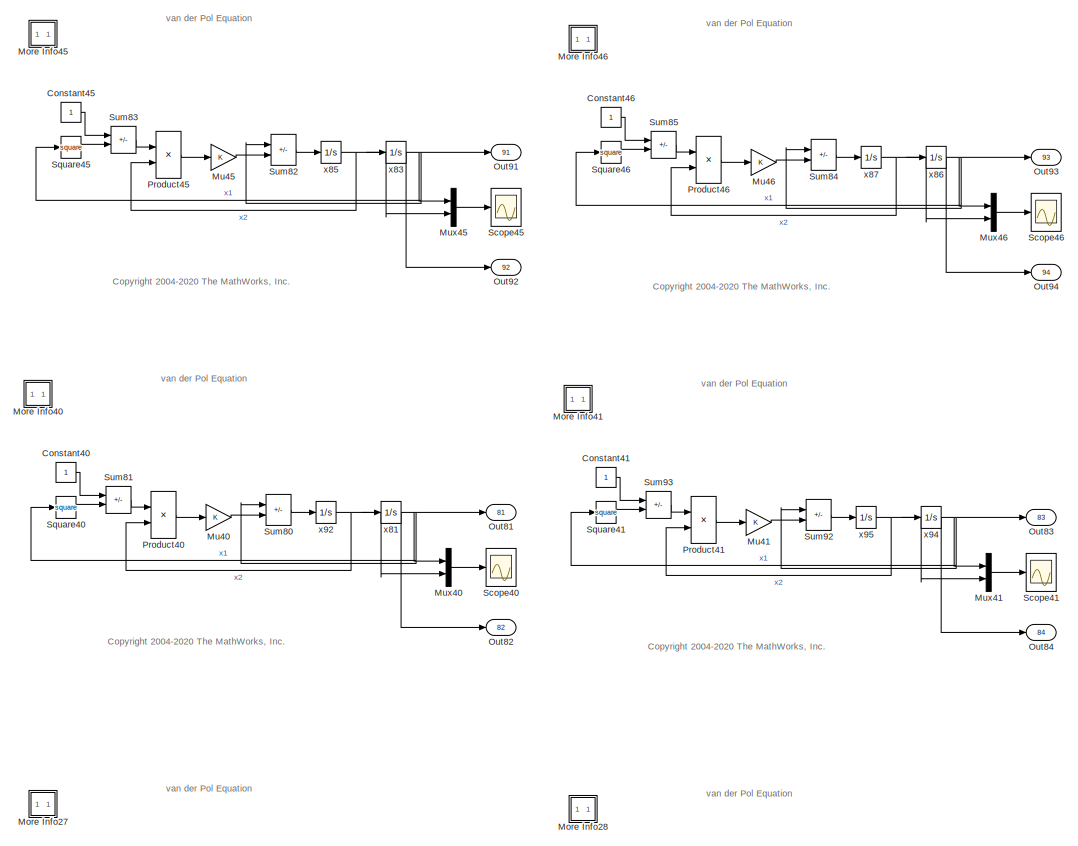
[diagram: root canvas - part 1/24, top left region]
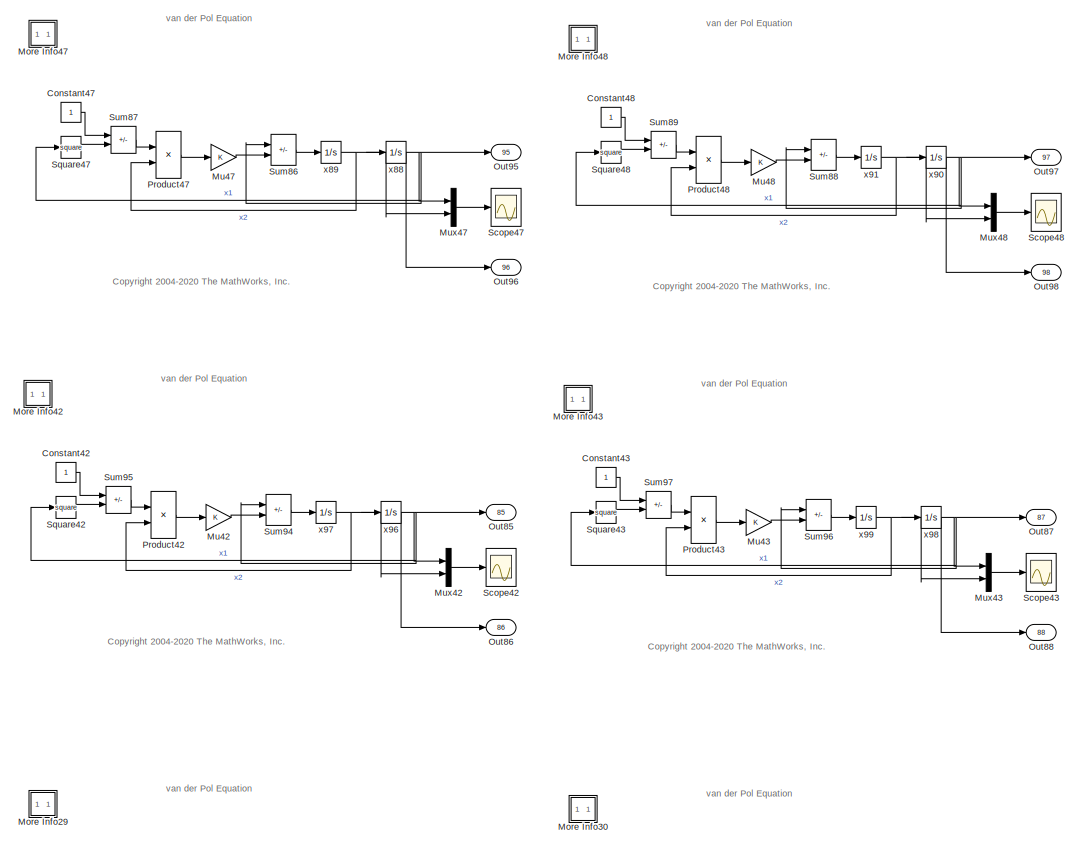
[diagram: root canvas - part 2/24, top left region]
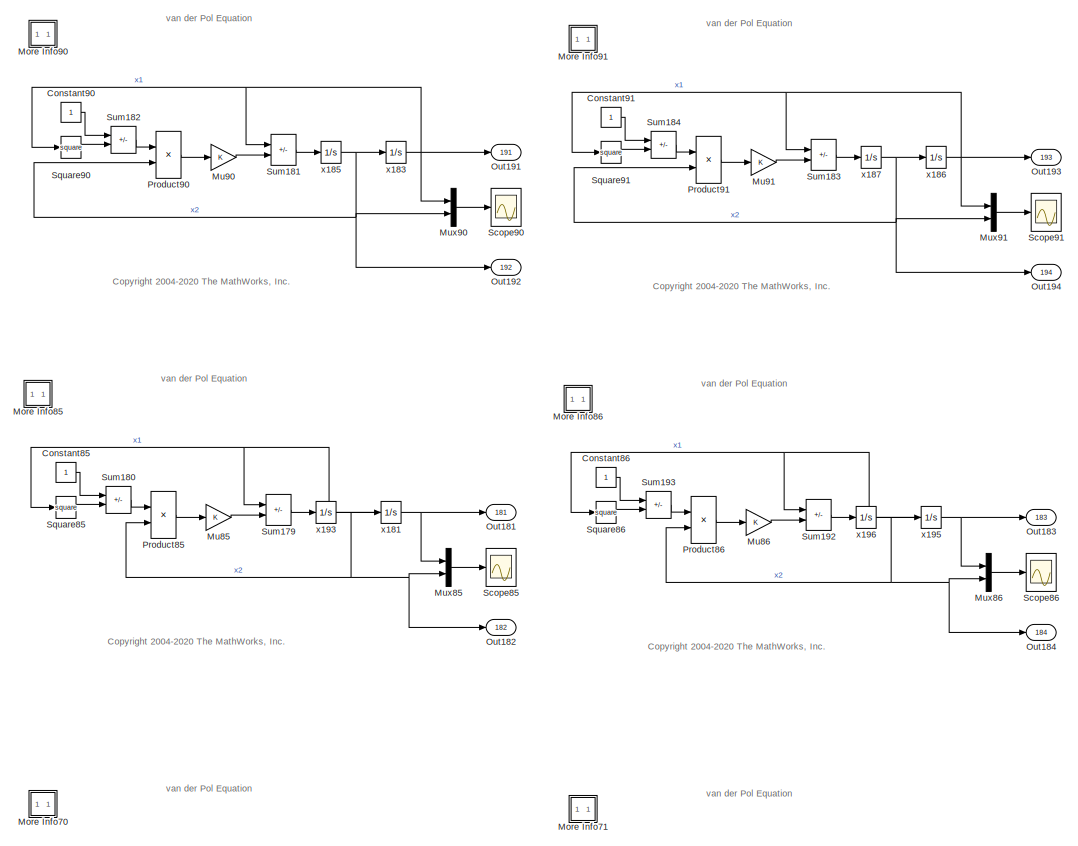
[diagram: root canvas - part 3/24, top center region]
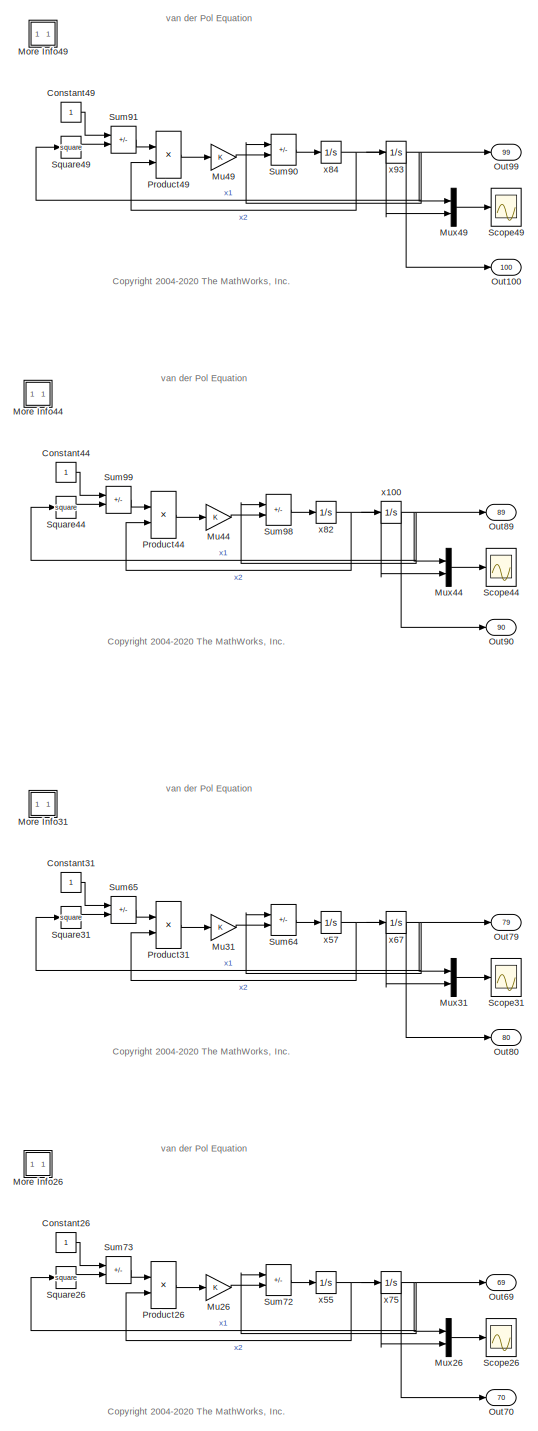
[diagram: root canvas - part 4/24, top center region]
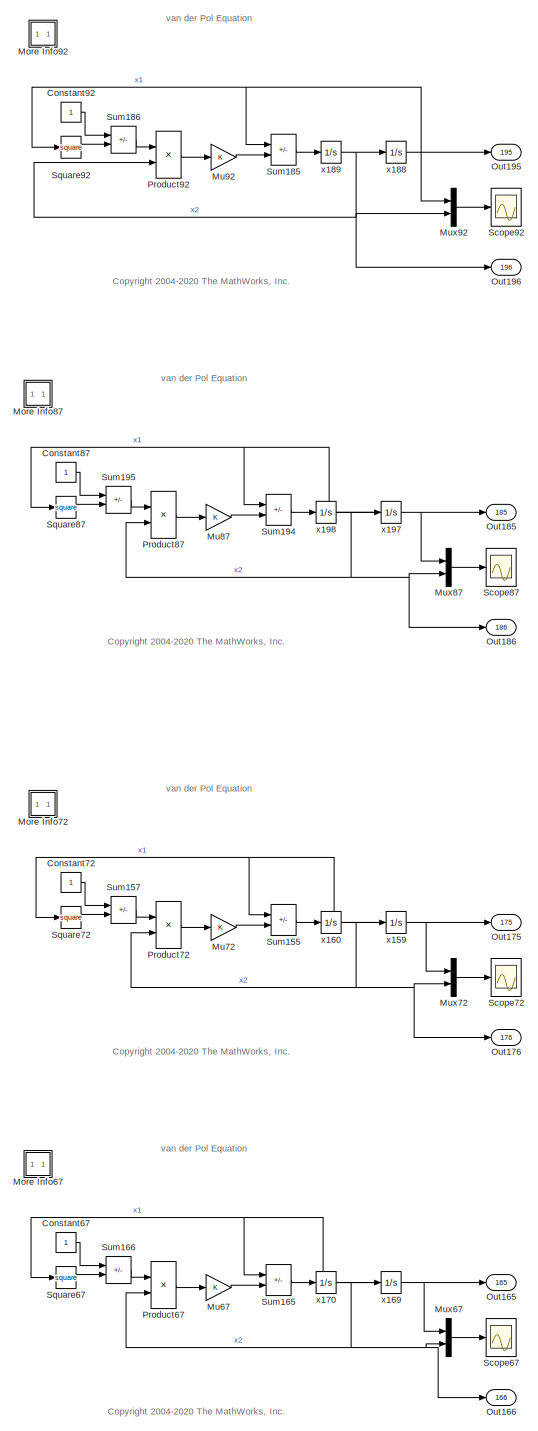
[diagram: root canvas - part 5/24, top right region]
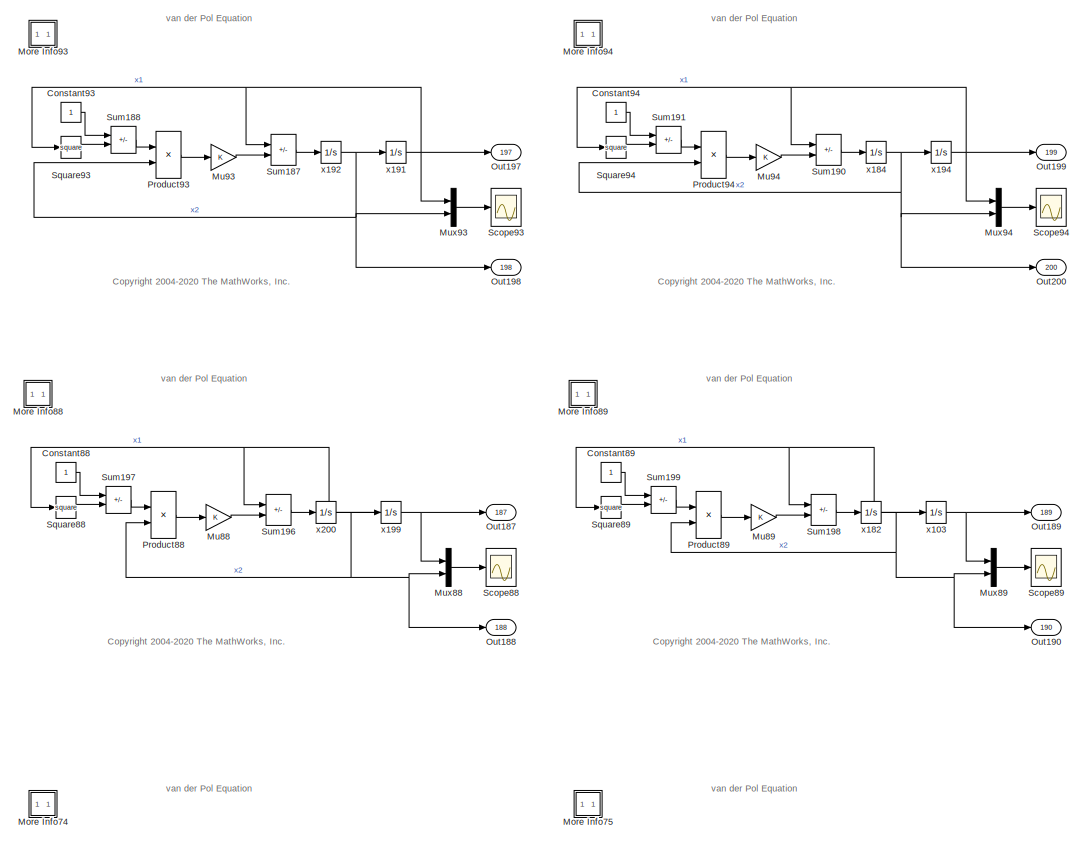
[diagram: root canvas - part 6/24, top right region]
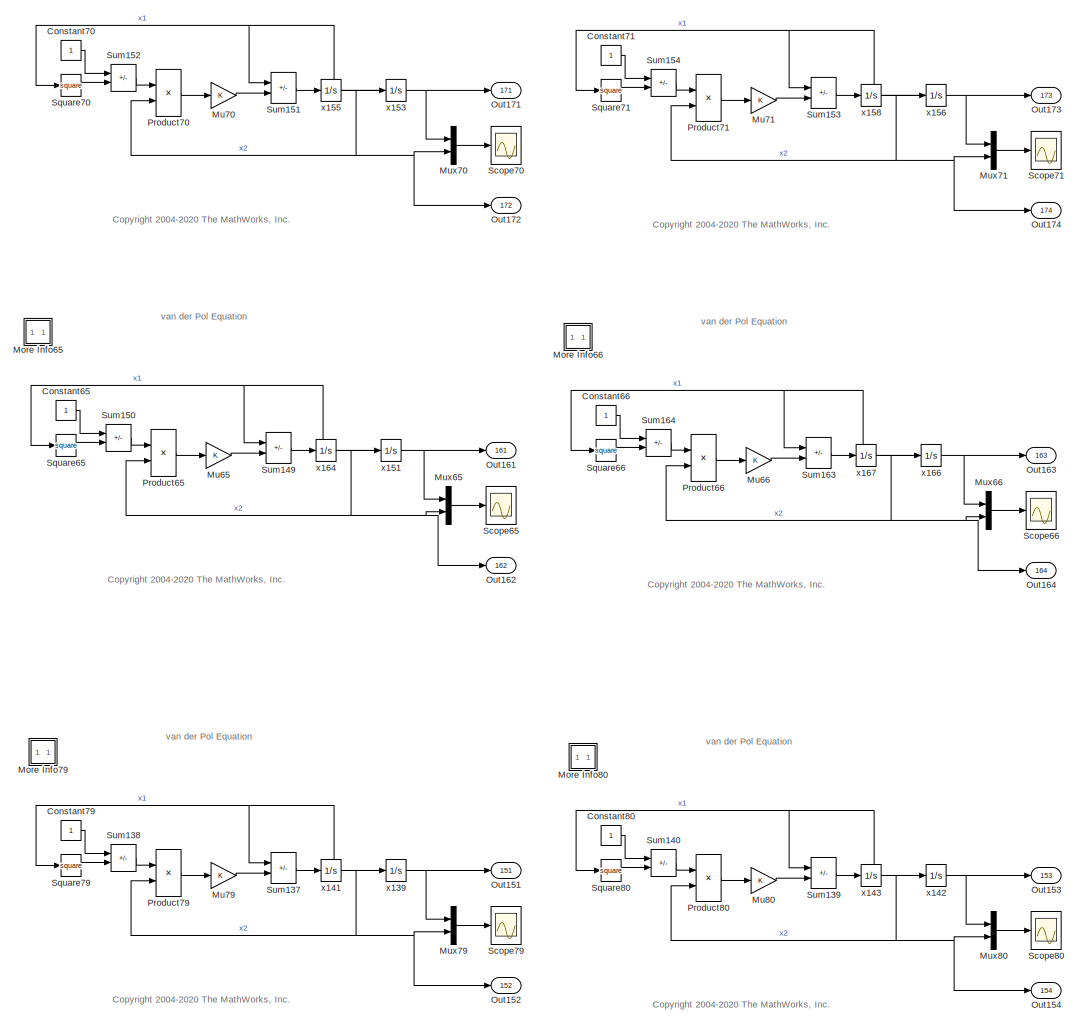
[diagram: root canvas - part 7/24, central region]
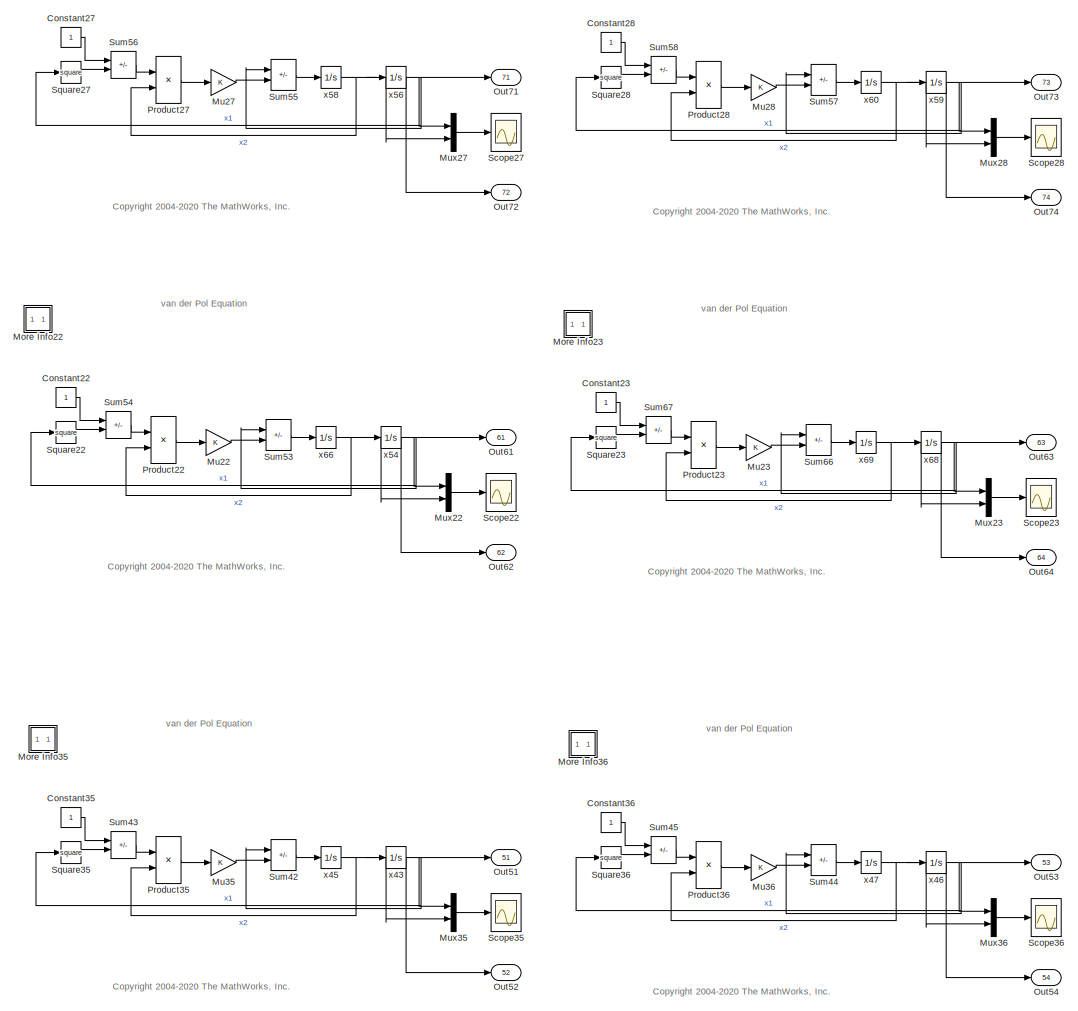
[diagram: root canvas - part 8/24, middle left region]
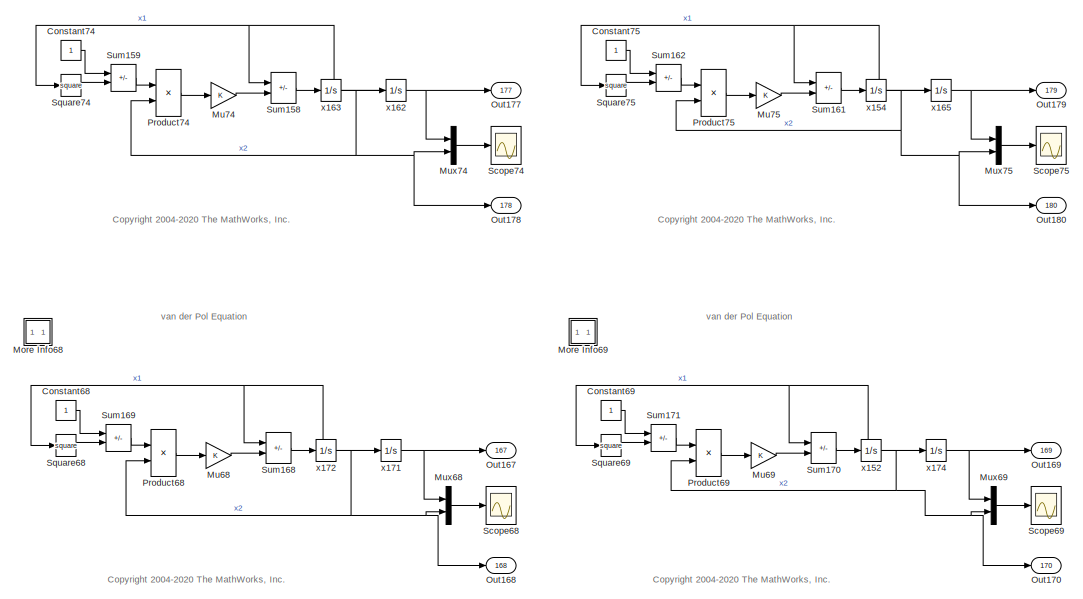
[diagram: root canvas - part 9/24, top right region]
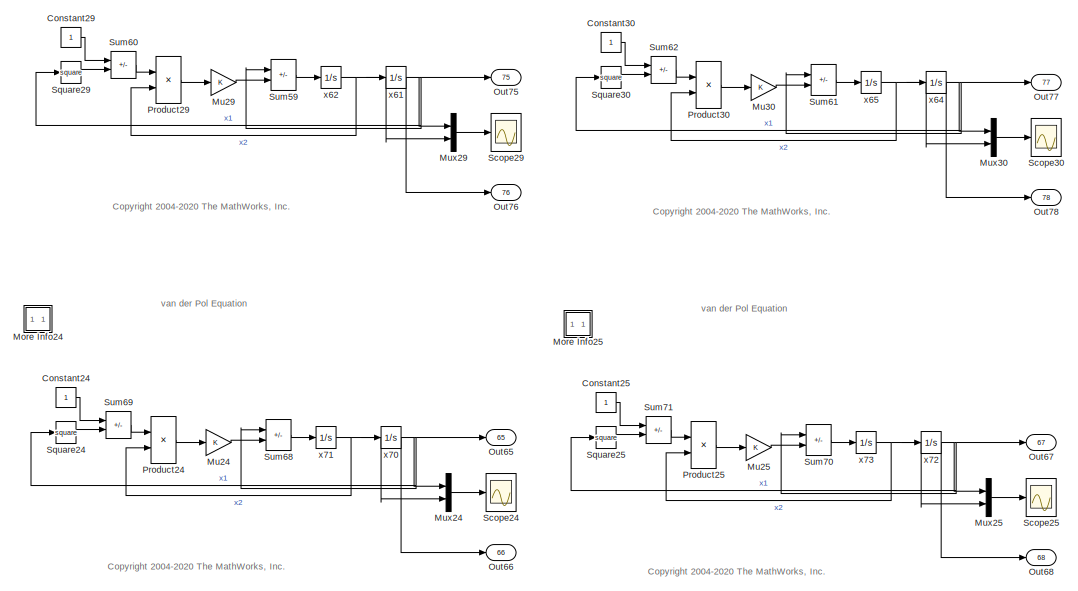
[diagram: root canvas - part 10/24, top left region]
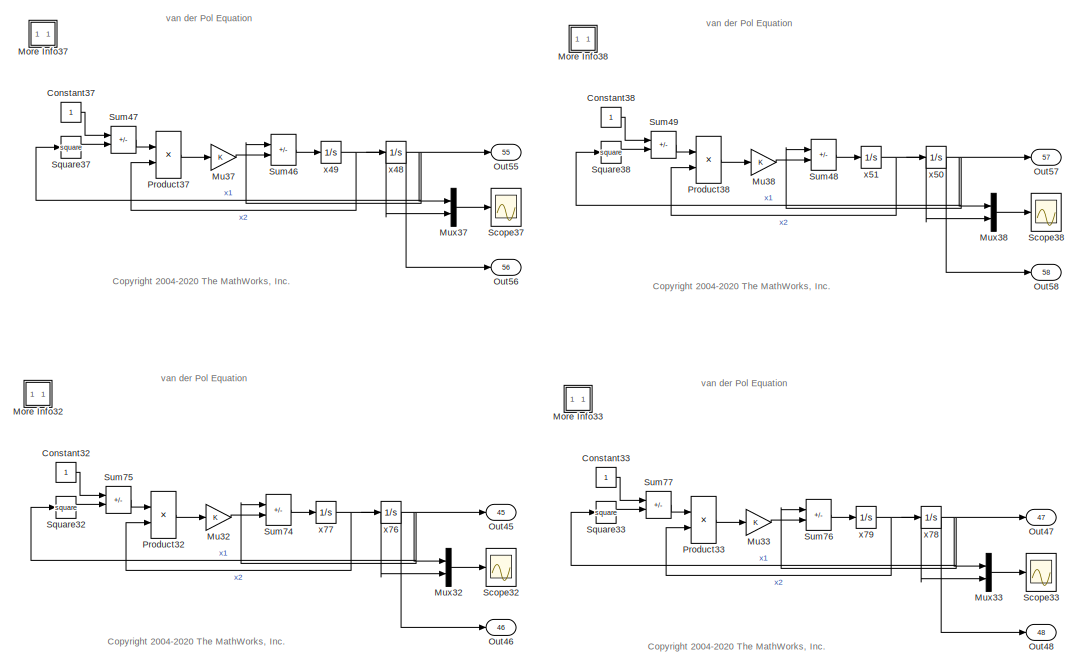
[diagram: root canvas - part 11/24, middle left region]
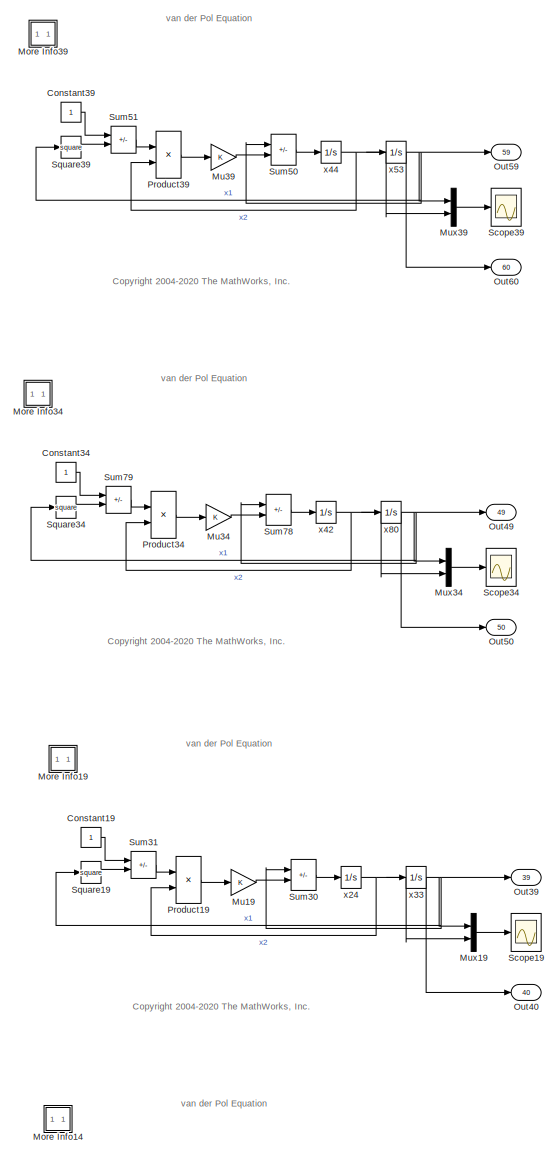
[diagram: root canvas - part 12/24, central region]
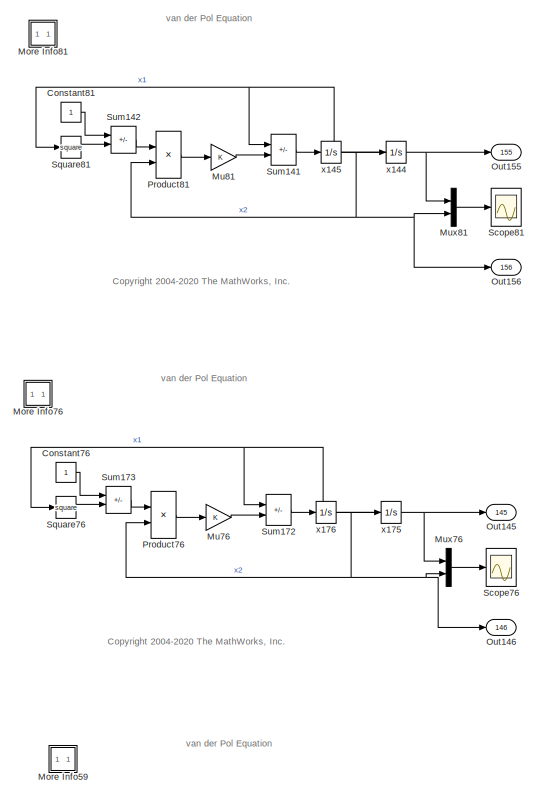
[diagram: root canvas - part 13/24, middle right region]
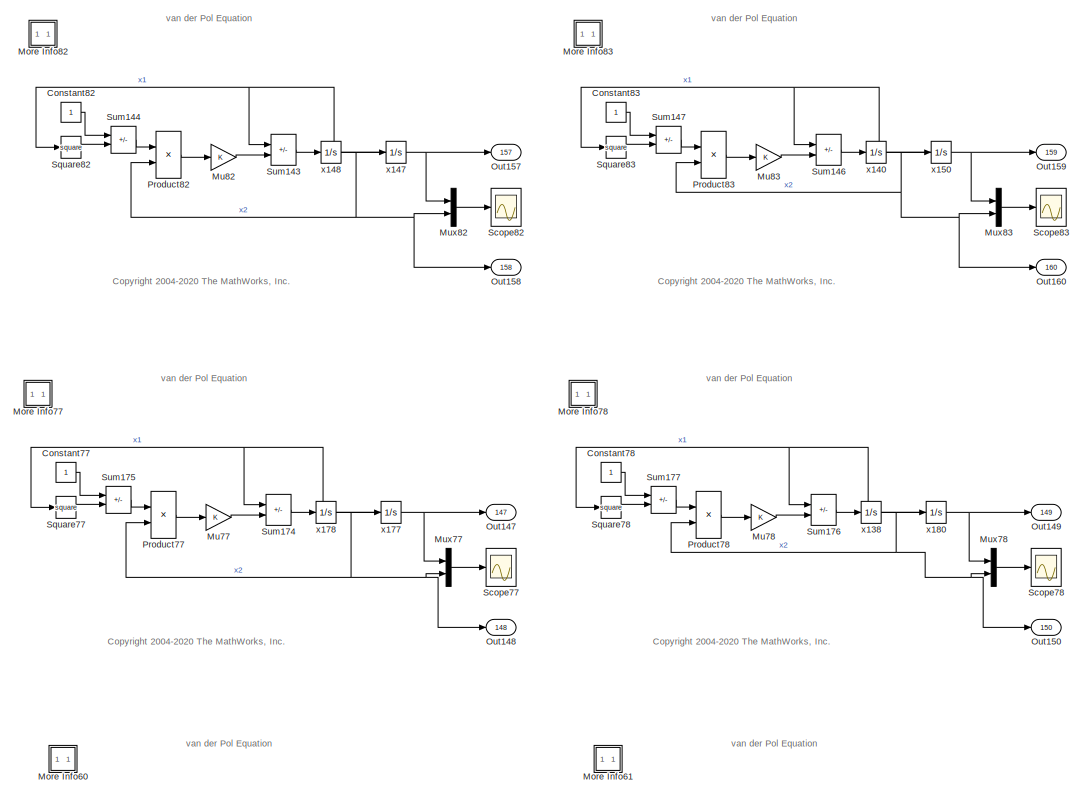
[diagram: root canvas - part 14/24, middle right region]
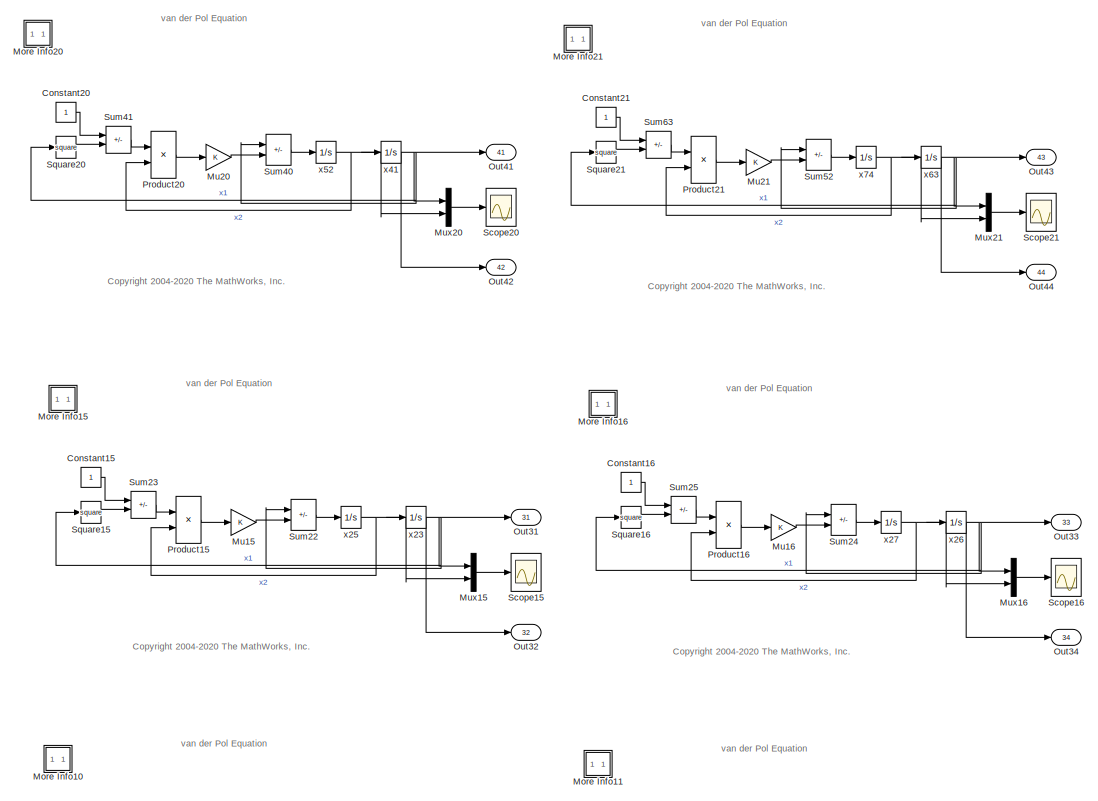
[diagram: root canvas - part 15/24, middle left region]
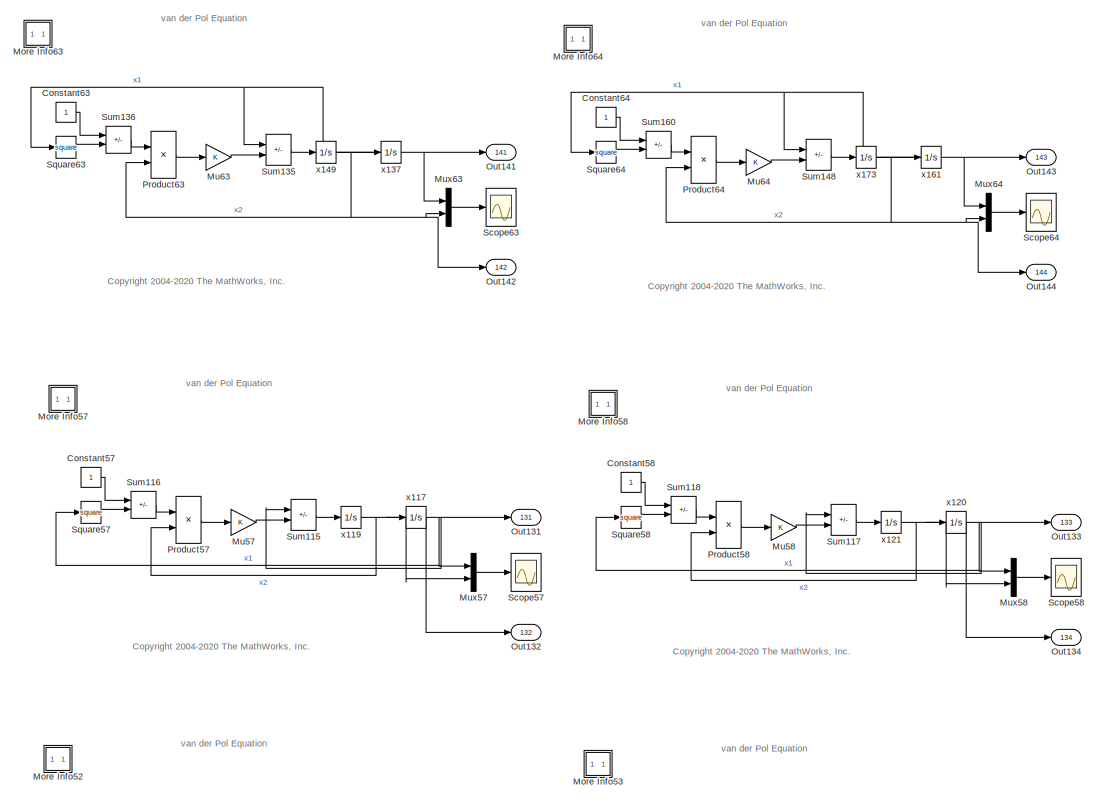
[diagram: root canvas - part 16/24, central region]
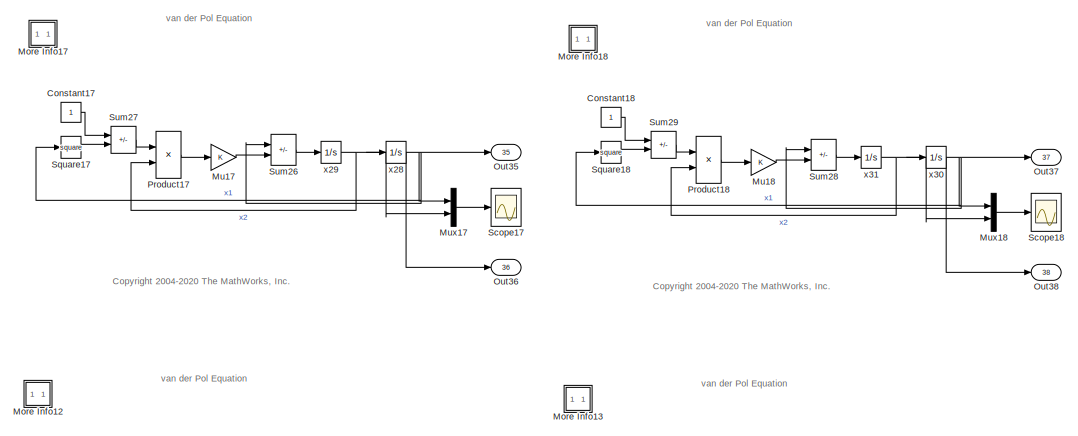
[diagram: root canvas - part 17/24, bottom left region]
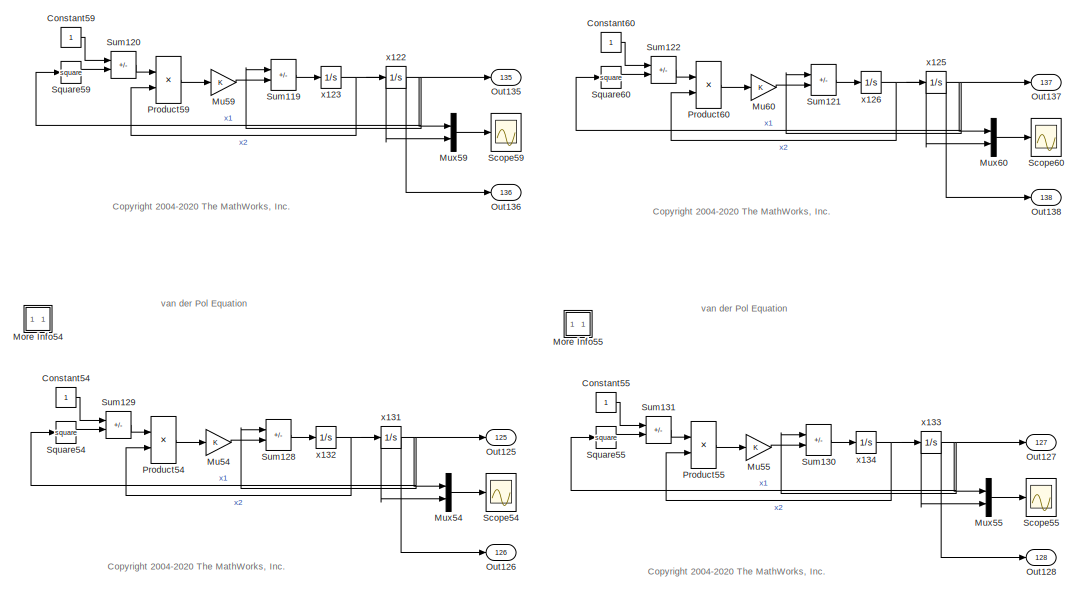
[diagram: root canvas - part 18/24, bottom right region]
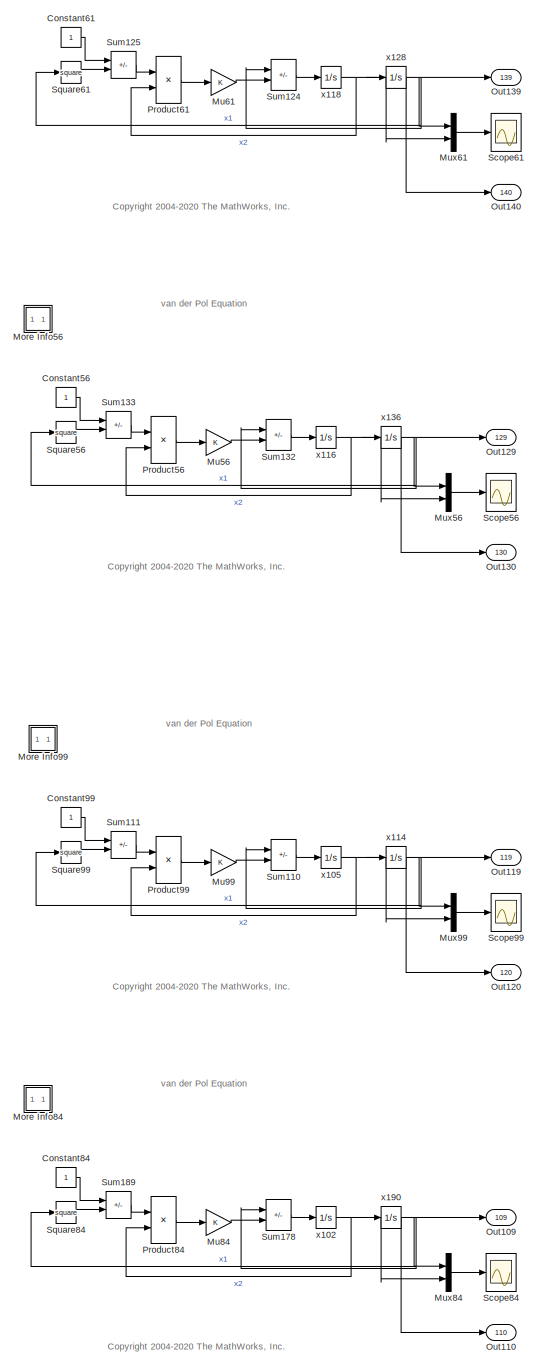
[diagram: root canvas - part 19/24, bottom right region]
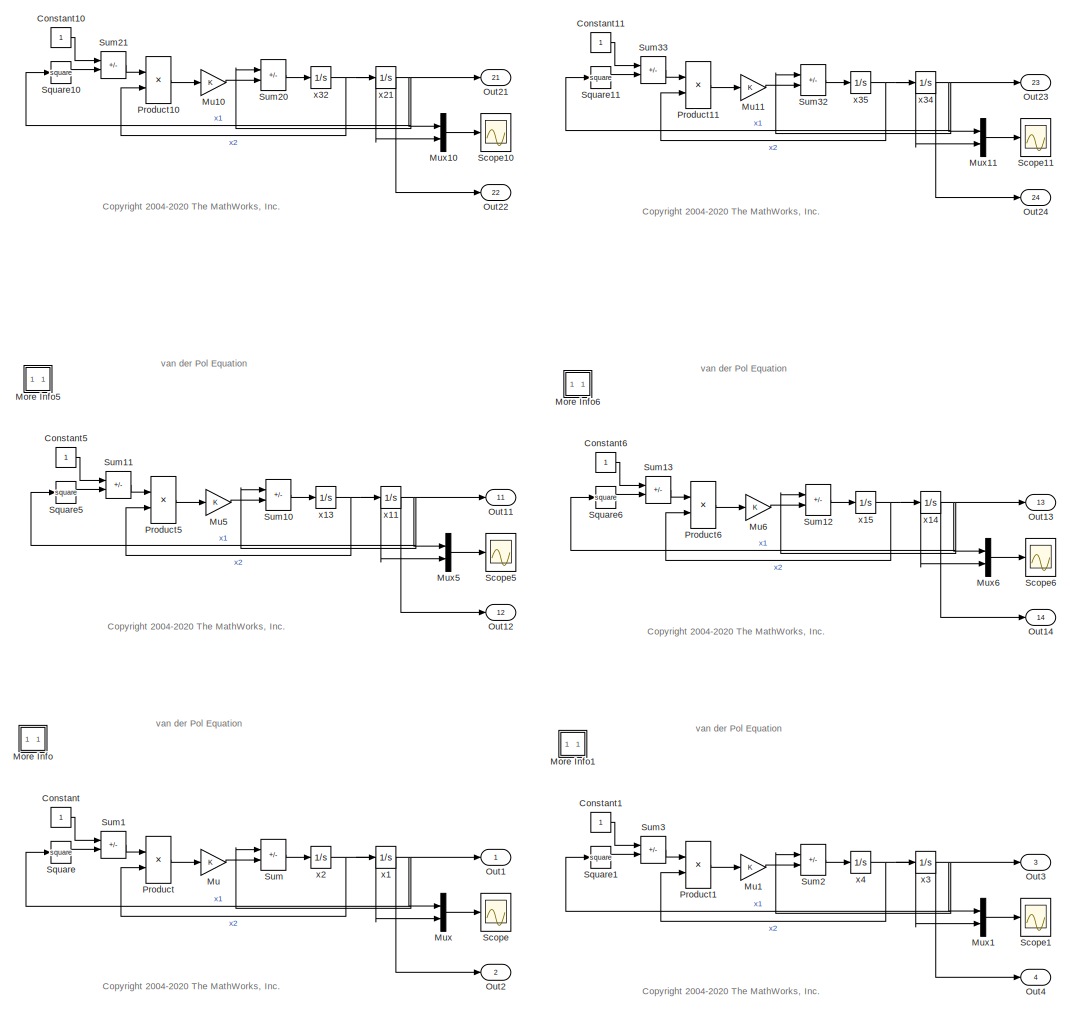
[diagram: root canvas - part 20/24, bottom left region]
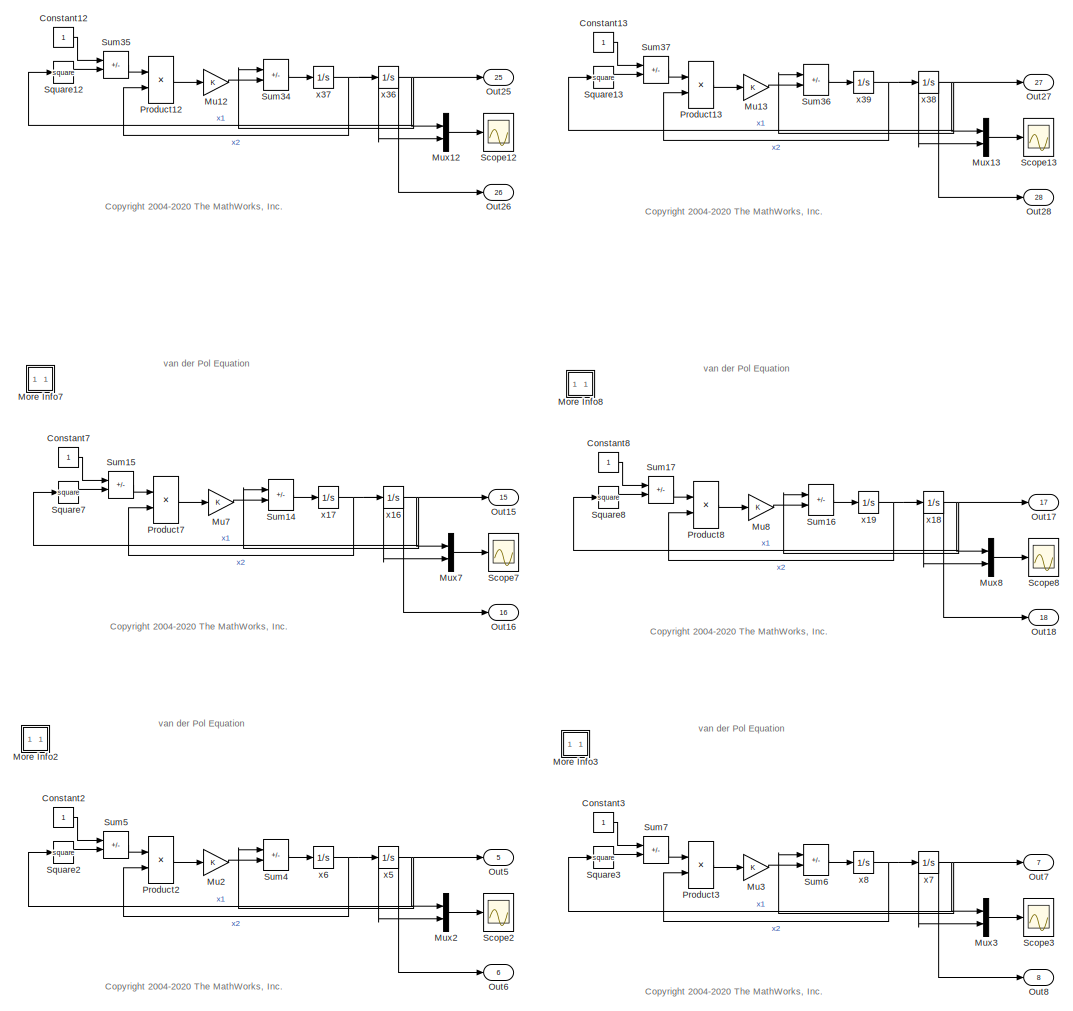
[diagram: root canvas - part 21/24, bottom left region]
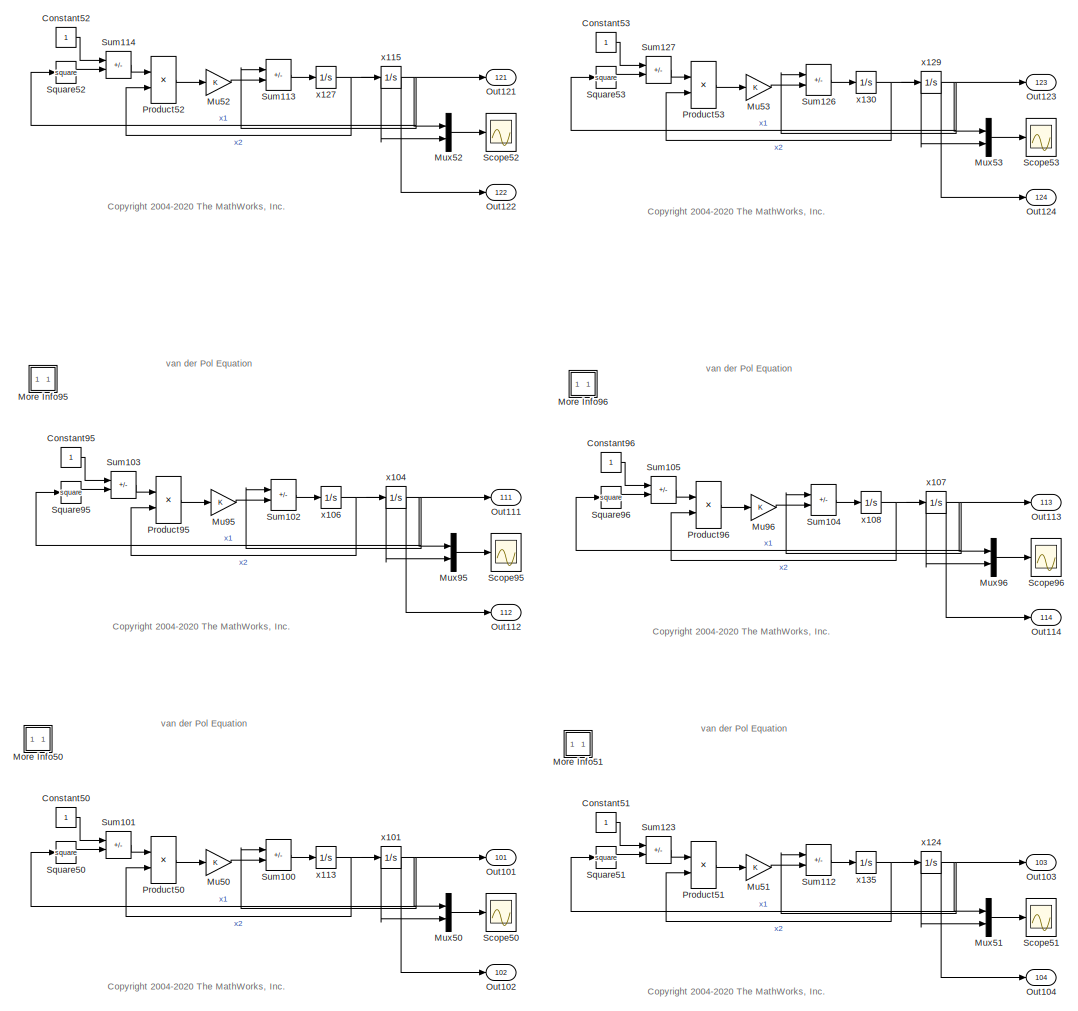
[diagram: root canvas - part 22/24, bottom center region]
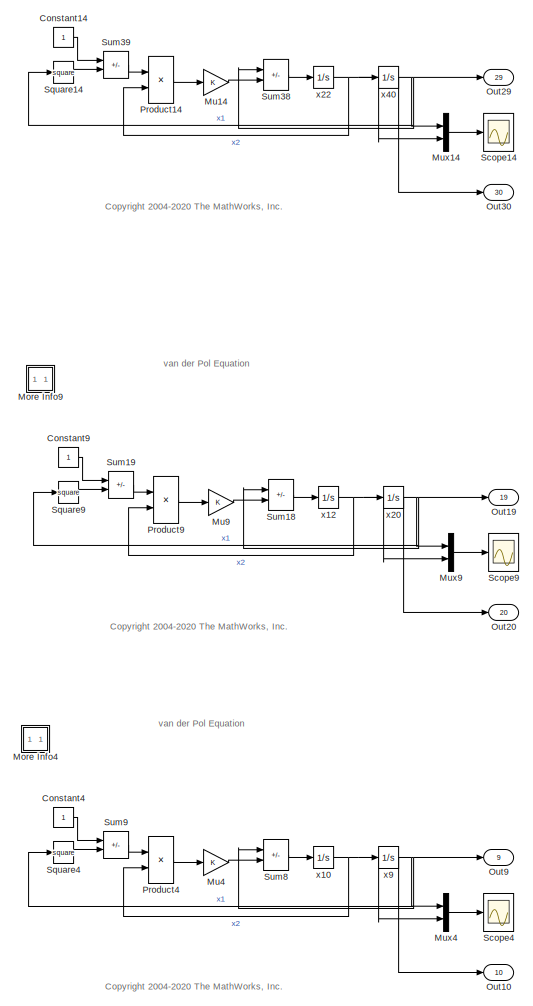
[diagram: root canvas - part 23/24, bottom center region]
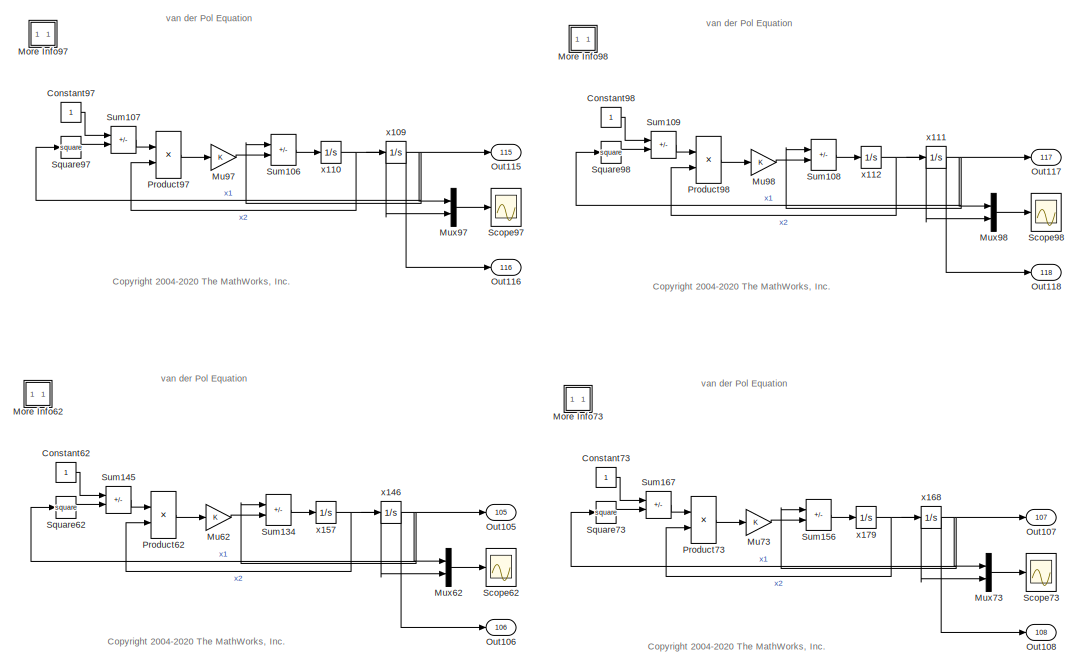
[diagram: root canvas - part 24/24, bottom right region]
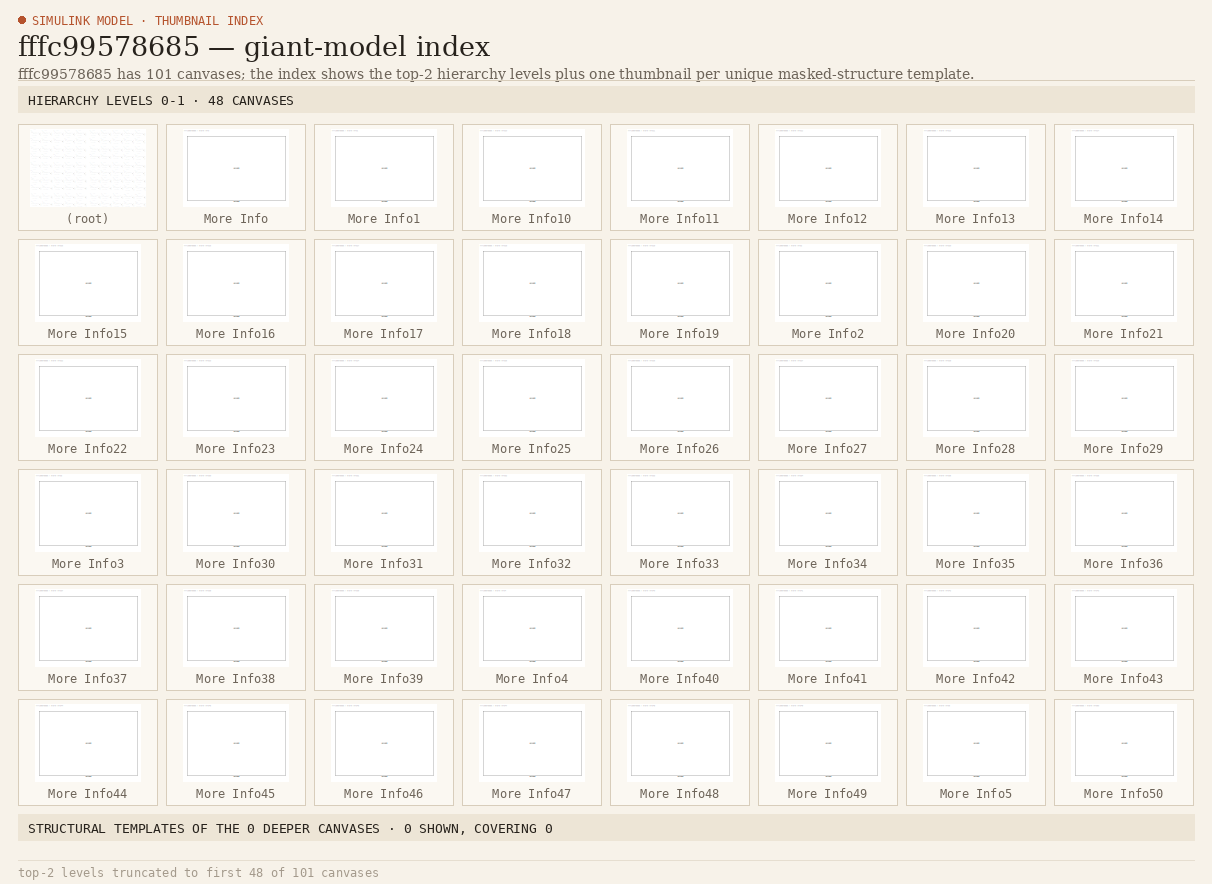
[diagram: thumbnail index - top-2 hierarchy levels (101 canvases (first 48 of 101 shown)) + 0 structural-template representatives of the remaining 0 canvases]
MODEL slx_fffc99578685
KIND model
CONFIG AbsTol = 1e-6
CONFIG EnableMultiTasking = off
CONFIG FixedStep = auto
CONFIG MaxStep = auto
CONFIG MinStep = auto
CONFIG RelTol = 1e-3
CONFIG SampleTimeConstraint = Unconstrained
CONFIG SolverName = VariableStepAuto
CONFIG StartTime = 0.0
CONFIG StopTime = 20
BLOCK [Constant] Constant
BLOCK [Constant] Constant1
BLOCK [Constant] Constant10
BLOCK [Constant] Constant11
BLOCK [Constant] Constant12
BLOCK [Constant] Constant13
BLOCK [Constant] Constant14
BLOCK [Constant] Constant15
BLOCK [Constant] Constant16
BLOCK [Constant] Constant17
BLOCK [Constant] Constant18
BLOCK [Constant] Constant19
BLOCK [Constant] Constant2
BLOCK [Constant] Constant20
BLOCK [Constant] Constant21
BLOCK [Constant] Constant22
BLOCK [Constant] Constant23
BLOCK [Constant] Constant24
BLOCK [Constant] Constant25
BLOCK [Constant] Constant26
BLOCK [Constant] Constant27
BLOCK [Constant] Constant28
BLOCK [Constant] Constant29
BLOCK [Constant] Constant3
BLOCK [Constant] Constant30
BLOCK [Constant] Constant31
BLOCK [Constant] Constant32
BLOCK [Constant] Constant33
BLOCK [Constant] Constant34
BLOCK [Constant] Constant35
BLOCK [Constant] Constant36
BLOCK [Constant] Constant37
BLOCK [Constant] Constant38
BLOCK [Constant] Constant39
BLOCK [Constant] Constant4
BLOCK [Constant] Constant40
BLOCK [Constant] Constant41
BLOCK [Constant] Constant42
BLOCK [Constant] Constant43
BLOCK [Constant] Constant44
BLOCK [Constant] Constant45
BLOCK [Constant] Constant46
BLOCK [Constant] Constant47
BLOCK [Constant] Constant48
BLOCK [Constant] Constant49
BLOCK [Constant] Constant5
BLOCK [Constant] Constant50
BLOCK [Constant] Constant51
BLOCK [Constant] Constant52
BLOCK [Constant] Constant53
BLOCK [Constant] Constant54
BLOCK [Constant] Constant55
BLOCK [Constant] Constant56
BLOCK [Constant] Constant57
BLOCK [Constant] Constant58
BLOCK [Constant] Constant59
BLOCK [Constant] Constant6
BLOCK [Constant] Constant60
BLOCK [Constant] Constant61
BLOCK [Constant] Constant62
BLOCK [Constant] Constant63
BLOCK [Constant] Constant64
BLOCK [Constant] Constant65
BLOCK [Constant] Constant66
BLOCK [Constant] Constant67
BLOCK [Constant] Constant68
BLOCK [Constant] Constant69
BLOCK [Constant] Constant7
BLOCK [Constant] Constant70
BLOCK [Constant] Constant71
BLOCK [Constant] Constant72
BLOCK [Constant] Constant73
BLOCK [Constant] Constant74
BLOCK [Constant] Constant75
BLOCK [Constant] Constant76
BLOCK [Constant] Constant77
BLOCK [Constant] Constant78
BLOCK [Constant] Constant79
BLOCK [Constant] Constant8
BLOCK [Constant] Constant80
BLOCK [Constant] Constant81
BLOCK [Constant] Constant82
BLOCK [Constant] Constant83
BLOCK [Constant] Constant84
BLOCK [Constant] Constant85
BLOCK [Constant] Constant86
BLOCK [Constant] Constant87
BLOCK [Constant] Constant88
BLOCK [Constant] Constant89
BLOCK [Constant] Constant9
BLOCK [Constant] Constant90
BLOCK [Constant] Constant91
BLOCK [Constant] Constant92
BLOCK [Constant] Constant93
BLOCK [Constant] Constant94
BLOCK [Constant] Constant95
BLOCK [Constant] Constant96
BLOCK [Constant] Constant97
BLOCK [Constant] Constant98
BLOCK [Constant] Constant99
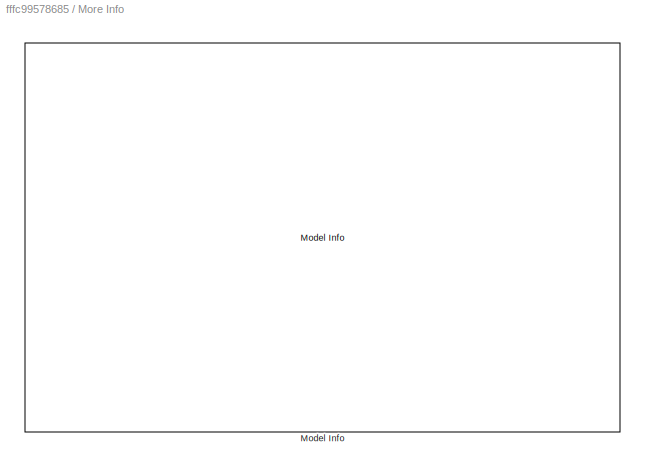
BLOCK [SubSystem] More Info
BLOCK [Reference] More Info/Model Info  REF=simulink/Model-Wide
Utilities/Model Info
  SourceBlock = simulink/Model-Wide\nUtilities/Model Info
  SourceType = CMBlock
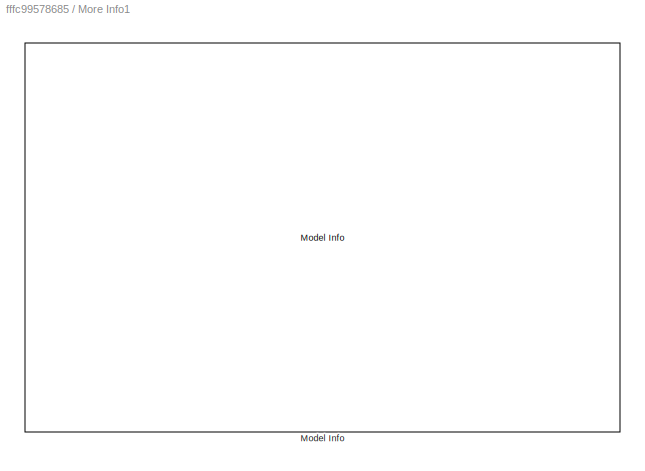
BLOCK [SubSystem] More Info1
BLOCK [Reference] More Info1/Model Info  REF=simulink/Model-Wide
Utilities/Model Info
  SourceBlock = simulink/Model-Wide\nUtilities/Model Info
  SourceType = CMBlock
BLOCK [SubSystem] More Info10
BLOCK [Reference] More Info10/Model Info  REF=simulink/Model-Wide
Utilities/Model Info
  SourceBlock = simulink/Model-Wide\nUtilities/Model Info
  SourceType = CMBlock
BLOCK [SubSystem] More Info11
BLOCK [Reference] More Info11/Model Info  REF=simulink/Model-Wide
Utilities/Model Info
  SourceBlock = simulink/Model-Wide\nUtilities/Model Info
  SourceType = CMBlock
BLOCK [SubSystem] More Info12
BLOCK [Reference] More Info12/Model Info  REF=simulink/Model-Wide
Utilities/Model Info
  SourceBlock = simulink/Model-Wide\nUtilities/Model Info
  SourceType = CMBlock
BLOCK [SubSystem] More Info13
BLOCK [Reference] More Info13/Model Info  REF=simulink/Model-Wide
Utilities/Model Info
  SourceBlock = simulink/Model-Wide\nUtilities/Model Info
  SourceType = CMBlock
BLOCK [SubSystem] More Info14
BLOCK [Reference] More Info14/Model Info  REF=simulink/Model-Wide
Utilities/Model Info
  SourceBlock = simulink/Model-Wide\nUtilities/Model Info
  SourceType = CMBlock
BLOCK [SubSystem] More Info15
BLOCK [Reference] More Info15/Model Info  REF=simulink/Model-Wide
Utilities/Model Info
  SourceBlock = simulink/Model-Wide\nUtilities/Model Info
  SourceType = CMBlock
BLOCK [SubSystem] More Info16
BLOCK [Reference] More Info16/Model Info  REF=simulink/Model-Wide
Utilities/Model Info
  SourceBlock = simulink/Model-Wide\nUtilities/Model Info
  SourceType = CMBlock
BLOCK [SubSystem] More Info17
BLOCK [Reference] More Info17/Model Info  REF=simulink/Model-Wide
Utilities/Model Info
  SourceBlock = simulink/Model-Wide\nUtilities/Model Info
  SourceType = CMBlock
BLOCK [SubSystem] More Info18
BLOCK [Reference] More Info18/Model Info  REF=simulink/Model-Wide
Utilities/Model Info
  SourceBlock = simulink/Model-Wide\nUtilities/Model Info
  SourceType = CMBlock
BLOCK [SubSystem] More Info19
BLOCK [Reference] More Info19/Model Info  REF=simulink/Model-Wide
Utilities/Model Info
  SourceBlock = simulink/Model-Wide\nUtilities/Model Info
  SourceType = CMBlock
BLOCK [SubSystem] More Info2
BLOCK [Reference] More Info2/Model Info  REF=simulink/Model-Wide
Utilities/Model Info
  SourceBlock = simulink/Model-Wide\nUtilities/Model Info
  SourceType = CMBlock
BLOCK [SubSystem] More Info20
BLOCK [Reference] More Info20/Model Info  REF=simulink/Model-Wide
Utilities/Model Info
  SourceBlock = simulink/Model-Wide\nUtilities/Model Info
  SourceType = CMBlock
BLOCK [SubSystem] More Info21
BLOCK [Reference] More Info21/Model Info  REF=simulink/Model-Wide
Utilities/Model Info
  SourceBlock = simulink/Model-Wide\nUtilities/Model Info
  SourceType = CMBlock
BLOCK [SubSystem] More Info22
BLOCK [Reference] More Info22/Model Info  REF=simulink/Model-Wide
Utilities/Model Info
  SourceBlock = simulink/Model-Wide\nUtilities/Model Info
  SourceType = CMBlock
BLOCK [SubSystem] More Info23
BLOCK [Reference] More Info23/Model Info  REF=simulink/Model-Wide
Utilities/Model Info
  SourceBlock = simulink/Model-Wide\nUtilities/Model Info
  SourceType = CMBlock
BLOCK [SubSystem] More Info24
BLOCK [Reference] More Info24/Model Info  REF=simulink/Model-Wide
Utilities/Model Info
  SourceBlock = simulink/Model-Wide\nUtilities/Model Info
  SourceType = CMBlock
BLOCK [SubSystem] More Info25
BLOCK [Reference] More Info25/Model Info  REF=simulink/Model-Wide
Utilities/Model Info
  SourceBlock = simulink/Model-Wide\nUtilities/Model Info
  SourceType = CMBlock
BLOCK [SubSystem] More Info26
BLOCK [Reference] More Info26/Model Info  REF=simulink/Model-Wide
Utilities/Model Info
  SourceBlock = simulink/Model-Wide\nUtilities/Model Info
  SourceType = CMBlock
BLOCK [SubSystem] More Info27
BLOCK [Reference] More Info27/Model Info  REF=simulink/Model-Wide
Utilities/Model Info
  SourceBlock = simulink/Model-Wide\nUtilities/Model Info
  SourceType = CMBlock
BLOCK [SubSystem] More Info28
BLOCK [Reference] More Info28/Model Info  REF=simulink/Model-Wide
Utilities/Model Info
  SourceBlock = simulink/Model-Wide\nUtilities/Model Info
  SourceType = CMBlock
BLOCK [SubSystem] More Info29
BLOCK [Reference] More Info29/Model Info  REF=simulink/Model-Wide
Utilities/Model Info
  SourceBlock = simulink/Model-Wide\nUtilities/Model Info
  SourceType = CMBlock
BLOCK [SubSystem] More Info3
BLOCK [Reference] More Info3/Model Info  REF=simulink/Model-Wide
Utilities/Model Info
  SourceBlock = simulink/Model-Wide\nUtilities/Model Info
  SourceType = CMBlock
BLOCK [SubSystem] More Info30
BLOCK [Reference] More Info30/Model Info  REF=simulink/Model-Wide
Utilities/Model Info
  SourceBlock = simulink/Model-Wide\nUtilities/Model Info
  SourceType = CMBlock
BLOCK [SubSystem] More Info31
BLOCK [Reference] More Info31/Model Info  REF=simulink/Model-Wide
Utilities/Model Info
  SourceBlock = simulink/Model-Wide\nUtilities/Model Info
  SourceType = CMBlock
BLOCK [SubSystem] More Info32
BLOCK [Reference] More Info32/Model Info  REF=simulink/Model-Wide
Utilities/Model Info
  SourceBlock = simulink/Model-Wide\nUtilities/Model Info
  SourceType = CMBlock
BLOCK [SubSystem] More Info33
BLOCK [Reference] More Info33/Model Info  REF=simulink/Model-Wide
Utilities/Model Info
  SourceBlock = simulink/Model-Wide\nUtilities/Model Info
  SourceType = CMBlock
BLOCK [SubSystem] More Info34
BLOCK [Reference] More Info34/Model Info  REF=simulink/Model-Wide
Utilities/Model Info
  SourceBlock = simulink/Model-Wide\nUtilities/Model Info
  SourceType = CMBlock
BLOCK [SubSystem] More Info35
BLOCK [Reference] More Info35/Model Info  REF=simulink/Model-Wide
Utilities/Model Info
  SourceBlock = simulink/Model-Wide\nUtilities/Model Info
  SourceType = CMBlock
BLOCK [SubSystem] More Info36
BLOCK [Reference] More Info36/Model Info  REF=simulink/Model-Wide
Utilities/Model Info
  SourceBlock = simulink/Model-Wide\nUtilities/Model Info
  SourceType = CMBlock
BLOCK [SubSystem] More Info37
BLOCK [Reference] More Info37/Model Info  REF=simulink/Model-Wide
Utilities/Model Info
  SourceBlock = simulink/Model-Wide\nUtilities/Model Info
  SourceType = CMBlock
BLOCK [SubSystem] More Info38
BLOCK [Reference] More Info38/Model Info  REF=simulink/Model-Wide
Utilities/Model Info
  SourceBlock = simulink/Model-Wide\nUtilities/Model Info
  SourceType = CMBlock
BLOCK [SubSystem] More Info39
BLOCK [Reference] More Info39/Model Info  REF=simulink/Model-Wide
Utilities/Model Info
  SourceBlock = simulink/Model-Wide\nUtilities/Model Info
  SourceType = CMBlock
BLOCK [SubSystem] More Info4
BLOCK [Reference] More Info4/Model Info  REF=simulink/Model-Wide
Utilities/Model Info
  SourceBlock = simulink/Model-Wide\nUtilities/Model Info
  SourceType = CMBlock
BLOCK [SubSystem] More Info40
BLOCK [Reference] More Info40/Model Info  REF=simulink/Model-Wide
Utilities/Model Info
  SourceBlock = simulink/Model-Wide\nUtilities/Model Info
  SourceType = CMBlock
BLOCK [SubSystem] More Info41
BLOCK [Reference] More Info41/Model Info  REF=simulink/Model-Wide
Utilities/Model Info
  SourceBlock = simulink/Model-Wide\nUtilities/Model Info
  SourceType = CMBlock
BLOCK [SubSystem] More Info42
BLOCK [Reference] More Info42/Model Info  REF=simulink/Model-Wide
Utilities/Model Info
  SourceBlock = simulink/Model-Wide\nUtilities/Model Info
  SourceType = CMBlock
BLOCK [SubSystem] More Info43
BLOCK [Reference] More Info43/Model Info  REF=simulink/Model-Wide
Utilities/Model Info
  SourceBlock = simulink/Model-Wide\nUtilities/Model Info
  SourceType = CMBlock
BLOCK [SubSystem] More Info44
BLOCK [Reference] More Info44/Model Info  REF=simulink/Model-Wide
Utilities/Model Info
  SourceBlock = simulink/Model-Wide\nUtilities/Model Info
  SourceType = CMBlock
BLOCK [SubSystem] More Info45
BLOCK [Reference] More Info45/Model Info  REF=simulink/Model-Wide
Utilities/Model Info
  SourceBlock = simulink/Model-Wide\nUtilities/Model Info
  SourceType = CMBlock
BLOCK [SubSystem] More Info46
BLOCK [Reference] More Info46/Model Info  REF=simulink/Model-Wide
Utilities/Model Info
  SourceBlock = simulink/Model-Wide\nUtilities/Model Info
  SourceType = CMBlock
BLOCK [SubSystem] More Info47
BLOCK [Reference] More Info47/Model Info  REF=simulink/Model-Wide
Utilities/Model Info
  SourceBlock = simulink/Model-Wide\nUtilities/Model Info
  SourceType = CMBlock
BLOCK [SubSystem] More Info48
BLOCK [Reference] More Info48/Model Info  REF=simulink/Model-Wide
Utilities/Model Info
  SourceBlock = simulink/Model-Wide\nUtilities/Model Info
  SourceType = CMBlock
BLOCK [SubSystem] More Info49
BLOCK [Reference] More Info49/Model Info  REF=simulink/Model-Wide
Utilities/Model Info
  SourceBlock = simulink/Model-Wide\nUtilities/Model Info
  SourceType = CMBlock
BLOCK [SubSystem] More Info5
BLOCK [Reference] More Info5/Model Info  REF=simulink/Model-Wide
Utilities/Model Info
  SourceBlock = simulink/Model-Wide\nUtilities/Model Info
  SourceType = CMBlock
BLOCK [SubSystem] More Info50
BLOCK [Reference] More Info50/Model Info  REF=simulink/Model-Wide
Utilities/Model Info
  SourceBlock = simulink/Model-Wide\nUtilities/Model Info
  SourceType = CMBlock
BLOCK [SubSystem] More Info51
BLOCK [Reference] More Info51/Model Info  REF=simulink/Model-Wide
Utilities/Model Info
  SourceBlock = simulink/Model-Wide\nUtilities/Model Info
  SourceType = CMBlock
BLOCK [SubSystem] More Info52
BLOCK [Reference] More Info52/Model Info  REF=simulink/Model-Wide
Utilities/Model Info
  SourceBlock = simulink/Model-Wide\nUtilities/Model Info
  SourceType = CMBlock
BLOCK [SubSystem] More Info53
BLOCK [Reference] More Info53/Model Info  REF=simulink/Model-Wide
Utilities/Model Info
  SourceBlock = simulink/Model-Wide\nUtilities/Model Info
  SourceType = CMBlock
BLOCK [SubSystem] More Info54
BLOCK [Reference] More Info54/Model Info  REF=simulink/Model-Wide
Utilities/Model Info
  SourceBlock = simulink/Model-Wide\nUtilities/Model Info
  SourceType = CMBlock
BLOCK [SubSystem] More Info55
BLOCK [Reference] More Info55/Model Info  REF=simulink/Model-Wide
Utilities/Model Info
  SourceBlock = simulink/Model-Wide\nUtilities/Model Info
  SourceType = CMBlock
BLOCK [SubSystem] More Info56
BLOCK [Reference] More Info56/Model Info  REF=simulink/Model-Wide
Utilities/Model Info
  SourceBlock = simulink/Model-Wide\nUtilities/Model Info
  SourceType = CMBlock
BLOCK [SubSystem] More Info57
BLOCK [Reference] More Info57/Model Info  REF=simulink/Model-Wide
Utilities/Model Info
  SourceBlock = simulink/Model-Wide\nUtilities/Model Info
  SourceType = CMBlock
BLOCK [SubSystem] More Info58
BLOCK [Reference] More Info58/Model Info  REF=simulink/Model-Wide
Utilities/Model Info
  SourceBlock = simulink/Model-Wide\nUtilities/Model Info
  SourceType = CMBlock
BLOCK [SubSystem] More Info59
BLOCK [Reference] More Info59/Model Info  REF=simulink/Model-Wide
Utilities/Model Info
  SourceBlock = simulink/Model-Wide\nUtilities/Model Info
  SourceType = CMBlock
BLOCK [SubSystem] More Info6
BLOCK [Reference] More Info6/Model Info  REF=simulink/Model-Wide
Utilities/Model Info
  SourceBlock = simulink/Model-Wide\nUtilities/Model Info
  SourceType = CMBlock
BLOCK [SubSystem] More Info60
BLOCK [Reference] More Info60/Model Info  REF=simulink/Model-Wide
Utilities/Model Info
  SourceBlock = simulink/Model-Wide\nUtilities/Model Info
  SourceType = CMBlock
BLOCK [SubSystem] More Info61
BLOCK [Reference] More Info61/Model Info  REF=simulink/Model-Wide
Utilities/Model Info
  SourceBlock = simulink/Model-Wide\nUtilities/Model Info
  SourceType = CMBlock
BLOCK [SubSystem] More Info62
BLOCK [Reference] More Info62/Model Info  REF=simulink/Model-Wide
Utilities/Model Info
  SourceBlock = simulink/Model-Wide\nUtilities/Model Info
  SourceType = CMBlock
BLOCK [SubSystem] More Info63
BLOCK [Reference] More Info63/Model Info  REF=simulink/Model-Wide
Utilities/Model Info
  SourceBlock = simulink/Model-Wide\nUtilities/Model Info
  SourceType = CMBlock
BLOCK [SubSystem] More Info64
BLOCK [Reference] More Info64/Model Info  REF=simulink/Model-Wide
Utilities/Model Info
  SourceBlock = simulink/Model-Wide\nUtilities/Model Info
  SourceType = CMBlock
BLOCK [SubSystem] More Info65
BLOCK [Reference] More Info65/Model Info  REF=simulink/Model-Wide
Utilities/Model Info
  SourceBlock = simulink/Model-Wide\nUtilities/Model Info
  SourceType = CMBlock
BLOCK [SubSystem] More Info66
BLOCK [Reference] More Info66/Model Info  REF=simulink/Model-Wide
Utilities/Model Info
  SourceBlock = simulink/Model-Wide\nUtilities/Model Info
  SourceType = CMBlock
BLOCK [SubSystem] More Info67
BLOCK [Reference] More Info67/Model Info  REF=simulink/Model-Wide
Utilities/Model Info
  SourceBlock = simulink/Model-Wide\nUtilities/Model Info
  SourceType = CMBlock
BLOCK [SubSystem] More Info68
BLOCK [Reference] More Info68/Model Info  REF=simulink/Model-Wide
Utilities/Model Info
  SourceBlock = simulink/Model-Wide\nUtilities/Model Info
  SourceType = CMBlock
BLOCK [SubSystem] More Info69
BLOCK [Reference] More Info69/Model Info  REF=simulink/Model-Wide
Utilities/Model Info
  SourceBlock = simulink/Model-Wide\nUtilities/Model Info
  SourceType = CMBlock
BLOCK [SubSystem] More Info7
BLOCK [Reference] More Info7/Model Info  REF=simulink/Model-Wide
Utilities/Model Info
  SourceBlock = simulink/Model-Wide\nUtilities/Model Info
  SourceType = CMBlock
BLOCK [SubSystem] More Info70
BLOCK [Reference] More Info70/Model Info  REF=simulink/Model-Wide
Utilities/Model Info
  SourceBlock = simulink/Model-Wide\nUtilities/Model Info
  SourceType = CMBlock
BLOCK [SubSystem] More Info71
BLOCK [Reference] More Info71/Model Info  REF=simulink/Model-Wide
Utilities/Model Info
  SourceBlock = simulink/Model-Wide\nUtilities/Model Info
  SourceType = CMBlock
BLOCK [SubSystem] More Info72
BLOCK [Reference] More Info72/Model Info  REF=simulink/Model-Wide
Utilities/Model Info
  SourceBlock = simulink/Model-Wide\nUtilities/Model Info
  SourceType = CMBlock
BLOCK [SubSystem] More Info73
BLOCK [Reference] More Info73/Model Info  REF=simulink/Model-Wide
Utilities/Model Info
  SourceBlock = simulink/Model-Wide\nUtilities/Model Info
  SourceType = CMBlock
BLOCK [SubSystem] More Info74
BLOCK [Reference] More Info74/Model Info  REF=simulink/Model-Wide
Utilities/Model Info
  SourceBlock = simulink/Model-Wide\nUtilities/Model Info
  SourceType = CMBlock
BLOCK [SubSystem] More Info75
BLOCK [Reference] More Info75/Model Info  REF=simulink/Model-Wide
Utilities/Model Info
  SourceBlock = simulink/Model-Wide\nUtilities/Model Info
  SourceType = CMBlock
BLOCK [SubSystem] More Info76
BLOCK [Reference] More Info76/Model Info  REF=simulink/Model-Wide
Utilities/Model Info
  SourceBlock = simulink/Model-Wide\nUtilities/Model Info
  SourceType = CMBlock
BLOCK [SubSystem] More Info77
BLOCK [Reference] More Info77/Model Info  REF=simulink/Model-Wide
Utilities/Model Info
  SourceBlock = simulink/Model-Wide\nUtilities/Model Info
  SourceType = CMBlock
BLOCK [SubSystem] More Info78
BLOCK [Reference] More Info78/Model Info  REF=simulink/Model-Wide
Utilities/Model Info
  SourceBlock = simulink/Model-Wide\nUtilities/Model Info
  SourceType = CMBlock
BLOCK [SubSystem] More Info79
BLOCK [Reference] More Info79/Model Info  REF=simulink/Model-Wide
Utilities/Model Info
  SourceBlock = simulink/Model-Wide\nUtilities/Model Info
  SourceType = CMBlock
BLOCK [SubSystem] More Info8
BLOCK [Reference] More Info8/Model Info  REF=simulink/Model-Wide
Utilities/Model Info
  SourceBlock = simulink/Model-Wide\nUtilities/Model Info
  SourceType = CMBlock
BLOCK [SubSystem] More Info80
BLOCK [Reference] More Info80/Model Info  REF=simulink/Model-Wide
Utilities/Model Info
  SourceBlock = simulink/Model-Wide\nUtilities/Model Info
  SourceType = CMBlock
BLOCK [SubSystem] More Info81
BLOCK [Reference] More Info81/Model Info  REF=simulink/Model-Wide
Utilities/Model Info
  SourceBlock = simulink/Model-Wide\nUtilities/Model Info
  SourceType = CMBlock
BLOCK [SubSystem] More Info82
BLOCK [Reference] More Info82/Model Info  REF=simulink/Model-Wide
Utilities/Model Info
  SourceBlock = simulink/Model-Wide\nUtilities/Model Info
  SourceType = CMBlock
BLOCK [SubSystem] More Info83
BLOCK [Reference] More Info83/Model Info  REF=simulink/Model-Wide
Utilities/Model Info
  SourceBlock = simulink/Model-Wide\nUtilities/Model Info
  SourceType = CMBlock
BLOCK [SubSystem] More Info84
BLOCK [Reference] More Info84/Model Info  REF=simulink/Model-Wide
Utilities/Model Info
  SourceBlock = simulink/Model-Wide\nUtilities/Model Info
  SourceType = CMBlock
BLOCK [SubSystem] More Info85
BLOCK [Reference] More Info85/Model Info  REF=simulink/Model-Wide
Utilities/Model Info
  SourceBlock = simulink/Model-Wide\nUtilities/Model Info
  SourceType = CMBlock
BLOCK [SubSystem] More Info86
BLOCK [Reference] More Info86/Model Info  REF=simulink/Model-Wide
Utilities/Model Info
  SourceBlock = simulink/Model-Wide\nUtilities/Model Info
  SourceType = CMBlock
BLOCK [SubSystem] More Info87
BLOCK [Reference] More Info87/Model Info  REF=simulink/Model-Wide
Utilities/Model Info
  SourceBlock = simulink/Model-Wide\nUtilities/Model Info
  SourceType = CMBlock
BLOCK [SubSystem] More Info88
BLOCK [Reference] More Info88/Model Info  REF=simulink/Model-Wide
Utilities/Model Info
  SourceBlock = simulink/Model-Wide\nUtilities/Model Info
  SourceType = CMBlock
BLOCK [SubSystem] More Info89
BLOCK [Reference] More Info89/Model Info  REF=simulink/Model-Wide
Utilities/Model Info
  SourceBlock = simulink/Model-Wide\nUtilities/Model Info
  SourceType = CMBlock
BLOCK [SubSystem] More Info9
BLOCK [Reference] More Info9/Model Info  REF=simulink/Model-Wide
Utilities/Model Info
  SourceBlock = simulink/Model-Wide\nUtilities/Model Info
  SourceType = CMBlock
BLOCK [SubSystem] More Info90
BLOCK [Reference] More Info90/Model Info  REF=simulink/Model-Wide
Utilities/Model Info
  SourceBlock = simulink/Model-Wide\nUtilities/Model Info
  SourceType = CMBlock
BLOCK [SubSystem] More Info91
BLOCK [Reference] More Info91/Model Info  REF=simulink/Model-Wide
Utilities/Model Info
  SourceBlock = simulink/Model-Wide\nUtilities/Model Info
  SourceType = CMBlock
BLOCK [SubSystem] More Info92
BLOCK [Reference] More Info92/Model Info  REF=simulink/Model-Wide
Utilities/Model Info
  SourceBlock = simulink/Model-Wide\nUtilities/Model Info
  SourceType = CMBlock
BLOCK [SubSystem] More Info93
BLOCK [Reference] More Info93/Model Info  REF=simulink/Model-Wide
Utilities/Model Info
  SourceBlock = simulink/Model-Wide\nUtilities/Model Info
  SourceType = CMBlock
BLOCK [SubSystem] More Info94
BLOCK [Reference] More Info94/Model Info  REF=simulink/Model-Wide
Utilities/Model Info
  SourceBlock = simulink/Model-Wide\nUtilities/Model Info
  SourceType = CMBlock
BLOCK [SubSystem] More Info95
BLOCK [Reference] More Info95/Model Info  REF=simulink/Model-Wide
Utilities/Model Info
  SourceBlock = simulink/Model-Wide\nUtilities/Model Info
  SourceType = CMBlock
BLOCK [SubSystem] More Info96
BLOCK [Reference] More Info96/Model Info  REF=simulink/Model-Wide
Utilities/Model Info
  SourceBlock = simulink/Model-Wide\nUtilities/Model Info
  SourceType = CMBlock
BLOCK [SubSystem] More Info97
BLOCK [Reference] More Info97/Model Info  REF=simulink/Model-Wide
Utilities/Model Info
  SourceBlock = simulink/Model-Wide\nUtilities/Model Info
  SourceType = CMBlock
BLOCK [SubSystem] More Info98
BLOCK [Reference] More Info98/Model Info  REF=simulink/Model-Wide
Utilities/Model Info
  SourceBlock = simulink/Model-Wide\nUtilities/Model Info
  SourceType = CMBlock
BLOCK [SubSystem] More Info99
BLOCK [Reference] More Info99/Model Info  REF=simulink/Model-Wide
Utilities/Model Info
  SourceBlock = simulink/Model-Wide\nUtilities/Model Info
  SourceType = CMBlock
BLOCK [Gain] Mu
  OutDataTypeStr = Inherit: Same as input
  ParamDataTypeStr = Inherit: Same as input
  SaturateOnIntegerOverflow = on
BLOCK [Gain] Mu1
  OutDataTypeStr = Inherit: Same as input
  ParamDataTypeStr = Inherit: Same as input
  SaturateOnIntegerOverflow = on
BLOCK [Gain] Mu10
  OutDataTypeStr = Inherit: Same as input
  ParamDataTypeStr = Inherit: Same as input
  SaturateOnIntegerOverflow = on
BLOCK [Gain] Mu11
  OutDataTypeStr = Inherit: Same as input
  ParamDataTypeStr = Inherit: Same as input
  SaturateOnIntegerOverflow = on
BLOCK [Gain] Mu12
  OutDataTypeStr = Inherit: Same as input
  ParamDataTypeStr = Inherit: Same as input
  SaturateOnIntegerOverflow = on
BLOCK [Gain] Mu13
  OutDataTypeStr = Inherit: Same as input
  ParamDataTypeStr = Inherit: Same as input
  SaturateOnIntegerOverflow = on
BLOCK [Gain] Mu14
  OutDataTypeStr = Inherit: Same as input
  ParamDataTypeStr = Inherit: Same as input
  SaturateOnIntegerOverflow = on
BLOCK [Gain] Mu15
  OutDataTypeStr = Inherit: Same as input
  ParamDataTypeStr = Inherit: Same as input
  SaturateOnIntegerOverflow = on
BLOCK [Gain] Mu16
  OutDataTypeStr = Inherit: Same as input
  ParamDataTypeStr = Inherit: Same as input
  SaturateOnIntegerOverflow = on
BLOCK [Gain] Mu17
  OutDataTypeStr = Inherit: Same as input
  ParamDataTypeStr = Inherit: Same as input
  SaturateOnIntegerOverflow = on
BLOCK [Gain] Mu18
  OutDataTypeStr = Inherit: Same as input
  ParamDataTypeStr = Inherit: Same as input
  SaturateOnIntegerOverflow = on
BLOCK [Gain] Mu19
  OutDataTypeStr = Inherit: Same as input
  ParamDataTypeStr = Inherit: Same as input
  SaturateOnIntegerOverflow = on
BLOCK [Gain] Mu2
  OutDataTypeStr = Inherit: Same as input
  ParamDataTypeStr = Inherit: Same as input
  SaturateOnIntegerOverflow = on
BLOCK [Gain] Mu20
  OutDataTypeStr = Inherit: Same as input
  ParamDataTypeStr = Inherit: Same as input
  SaturateOnIntegerOverflow = on
BLOCK [Gain] Mu21
  OutDataTypeStr = Inherit: Same as input
  ParamDataTypeStr = Inherit: Same as input
  SaturateOnIntegerOverflow = on
BLOCK [Gain] Mu22
  OutDataTypeStr = Inherit: Same as input
  ParamDataTypeStr = Inherit: Same as input
  SaturateOnIntegerOverflow = on
BLOCK [Gain] Mu23
  OutDataTypeStr = Inherit: Same as input
  ParamDataTypeStr = Inherit: Same as input
  SaturateOnIntegerOverflow = on
BLOCK [Gain] Mu24
  OutDataTypeStr = Inherit: Same as input
  ParamDataTypeStr = Inherit: Same as input
  SaturateOnIntegerOverflow = on
BLOCK [Gain] Mu25
  OutDataTypeStr = Inherit: Same as input
  ParamDataTypeStr = Inherit: Same as input
  SaturateOnIntegerOverflow = on
BLOCK [Gain] Mu26
  OutDataTypeStr = Inherit: Same as input
  ParamDataTypeStr = Inherit: Same as input
  SaturateOnIntegerOverflow = on
BLOCK [Gain] Mu27
  OutDataTypeStr = Inherit: Same as input
  ParamDataTypeStr = Inherit: Same as input
  SaturateOnIntegerOverflow = on
BLOCK [Gain] Mu28
  OutDataTypeStr = Inherit: Same as input
  ParamDataTypeStr = Inherit: Same as input
  SaturateOnIntegerOverflow = on
BLOCK [Gain] Mu29
  OutDataTypeStr = Inherit: Same as input
  ParamDataTypeStr = Inherit: Same as input
  SaturateOnIntegerOverflow = on
BLOCK [Gain] Mu3
  OutDataTypeStr = Inherit: Same as input
  ParamDataTypeStr = Inherit: Same as input
  SaturateOnIntegerOverflow = on
BLOCK [Gain] Mu30
  OutDataTypeStr = Inherit: Same as input
  ParamDataTypeStr = Inherit: Same as input
  SaturateOnIntegerOverflow = on
BLOCK [Gain] Mu31
  OutDataTypeStr = Inherit: Same as input
  ParamDataTypeStr = Inherit: Same as input
  SaturateOnIntegerOverflow = on
BLOCK [Gain] Mu32
  OutDataTypeStr = Inherit: Same as input
  ParamDataTypeStr = Inherit: Same as input
  SaturateOnIntegerOverflow = on
BLOCK [Gain] Mu33
  OutDataTypeStr = Inherit: Same as input
  ParamDataTypeStr = Inherit: Same as input
  SaturateOnIntegerOverflow = on
BLOCK [Gain] Mu34
  OutDataTypeStr = Inherit: Same as input
  ParamDataTypeStr = Inherit: Same as input
  SaturateOnIntegerOverflow = on
BLOCK [Gain] Mu35
  OutDataTypeStr = Inherit: Same as input
  ParamDataTypeStr = Inherit: Same as input
  SaturateOnIntegerOverflow = on
BLOCK [Gain] Mu36
  OutDataTypeStr = Inherit: Same as input
  ParamDataTypeStr = Inherit: Same as input
  SaturateOnIntegerOverflow = on
BLOCK [Gain] Mu37
  OutDataTypeStr = Inherit: Same as input
  ParamDataTypeStr = Inherit: Same as input
  SaturateOnIntegerOverflow = on
BLOCK [Gain] Mu38
  OutDataTypeStr = Inherit: Same as input
  ParamDataTypeStr = Inherit: Same as input
  SaturateOnIntegerOverflow = on
BLOCK [Gain] Mu39
  OutDataTypeStr = Inherit: Same as input
  ParamDataTypeStr = Inherit: Same as input
  SaturateOnIntegerOverflow = on
BLOCK [Gain] Mu4
  OutDataTypeStr = Inherit: Same as input
  ParamDataTypeStr = Inherit: Same as input
  SaturateOnIntegerOverflow = on
BLOCK [Gain] Mu40
  OutDataTypeStr = Inherit: Same as input
  ParamDataTypeStr = Inherit: Same as input
  SaturateOnIntegerOverflow = on
BLOCK [Gain] Mu41
  OutDataTypeStr = Inherit: Same as input
  ParamDataTypeStr = Inherit: Same as input
  SaturateOnIntegerOverflow = on
BLOCK [Gain] Mu42
  OutDataTypeStr = Inherit: Same as input
  ParamDataTypeStr = Inherit: Same as input
  SaturateOnIntegerOverflow = on
BLOCK [Gain] Mu43
  OutDataTypeStr = Inherit: Same as input
  ParamDataTypeStr = Inherit: Same as input
  SaturateOnIntegerOverflow = on
BLOCK [Gain] Mu44
  OutDataTypeStr = Inherit: Same as input
  ParamDataTypeStr = Inherit: Same as input
  SaturateOnIntegerOverflow = on
BLOCK [Gain] Mu45
  OutDataTypeStr = Inherit: Same as input
  ParamDataTypeStr = Inherit: Same as input
  SaturateOnIntegerOverflow = on
BLOCK [Gain] Mu46
  OutDataTypeStr = Inherit: Same as input
  ParamDataTypeStr = Inherit: Same as input
  SaturateOnIntegerOverflow = on
BLOCK [Gain] Mu47
  OutDataTypeStr = Inherit: Same as input
  ParamDataTypeStr = Inherit: Same as input
  SaturateOnIntegerOverflow = on
BLOCK [Gain] Mu48
  OutDataTypeStr = Inherit: Same as input
  ParamDataTypeStr = Inherit: Same as input
  SaturateOnIntegerOverflow = on
BLOCK [Gain] Mu49
  OutDataTypeStr = Inherit: Same as input
  ParamDataTypeStr = Inherit: Same as input
  SaturateOnIntegerOverflow = on
BLOCK [Gain] Mu5
  OutDataTypeStr = Inherit: Same as input
  ParamDataTypeStr = Inherit: Same as input
  SaturateOnIntegerOverflow = on
BLOCK [Gain] Mu50
  OutDataTypeStr = Inherit: Same as input
  ParamDataTypeStr = Inherit: Same as input
  SaturateOnIntegerOverflow = on
BLOCK [Gain] Mu51
  OutDataTypeStr = Inherit: Same as input
  ParamDataTypeStr = Inherit: Same as input
  SaturateOnIntegerOverflow = on
BLOCK [Gain] Mu52
  OutDataTypeStr = Inherit: Same as input
  ParamDataTypeStr = Inherit: Same as input
  SaturateOnIntegerOverflow = on
BLOCK [Gain] Mu53
  OutDataTypeStr = Inherit: Same as input
  ParamDataTypeStr = Inherit: Same as input
  SaturateOnIntegerOverflow = on
BLOCK [Gain] Mu54
  OutDataTypeStr = Inherit: Same as input
  ParamDataTypeStr = Inherit: Same as input
  SaturateOnIntegerOverflow = on
BLOCK [Gain] Mu55
  OutDataTypeStr = Inherit: Same as input
  ParamDataTypeStr = Inherit: Same as input
  SaturateOnIntegerOverflow = on
BLOCK [Gain] Mu56
  OutDataTypeStr = Inherit: Same as input
  ParamDataTypeStr = Inherit: Same as input
  SaturateOnIntegerOverflow = on
BLOCK [Gain] Mu57
  OutDataTypeStr = Inherit: Same as input
  ParamDataTypeStr = Inherit: Same as input
  SaturateOnIntegerOverflow = on
BLOCK [Gain] Mu58
  OutDataTypeStr = Inherit: Same as input
  ParamDataTypeStr = Inherit: Same as input
  SaturateOnIntegerOverflow = on
BLOCK [Gain] Mu59
  OutDataTypeStr = Inherit: Same as input
  ParamDataTypeStr = Inherit: Same as input
  SaturateOnIntegerOverflow = on
BLOCK [Gain] Mu6
  OutDataTypeStr = Inherit: Same as input
  ParamDataTypeStr = Inherit: Same as input
  SaturateOnIntegerOverflow = on
BLOCK [Gain] Mu60
  OutDataTypeStr = Inherit: Same as input
  ParamDataTypeStr = Inherit: Same as input
  SaturateOnIntegerOverflow = on
BLOCK [Gain] Mu61
  OutDataTypeStr = Inherit: Same as input
  ParamDataTypeStr = Inherit: Same as input
  SaturateOnIntegerOverflow = on
BLOCK [Gain] Mu62
  OutDataTypeStr = Inherit: Same as input
  ParamDataTypeStr = Inherit: Same as input
  SaturateOnIntegerOverflow = on
BLOCK [Gain] Mu63
  OutDataTypeStr = Inherit: Same as input
  ParamDataTypeStr = Inherit: Same as input
  SaturateOnIntegerOverflow = on
BLOCK [Gain] Mu64
  OutDataTypeStr = Inherit: Same as input
  ParamDataTypeStr = Inherit: Same as input
  SaturateOnIntegerOverflow = on
BLOCK [Gain] Mu65
  OutDataTypeStr = Inherit: Same as input
  ParamDataTypeStr = Inherit: Same as input
  SaturateOnIntegerOverflow = on
BLOCK [Gain] Mu66
  OutDataTypeStr = Inherit: Same as input
  ParamDataTypeStr = Inherit: Same as input
  SaturateOnIntegerOverflow = on
BLOCK [Gain] Mu67
  OutDataTypeStr = Inherit: Same as input
  ParamDataTypeStr = Inherit: Same as input
  SaturateOnIntegerOverflow = on
BLOCK [Gain] Mu68
  OutDataTypeStr = Inherit: Same as input
  ParamDataTypeStr = Inherit: Same as input
  SaturateOnIntegerOverflow = on
BLOCK [Gain] Mu69
  OutDataTypeStr = Inherit: Same as input
  ParamDataTypeStr = Inherit: Same as input
  SaturateOnIntegerOverflow = on
BLOCK [Gain] Mu7
  OutDataTypeStr = Inherit: Same as input
  ParamDataTypeStr = Inherit: Same as input
  SaturateOnIntegerOverflow = on
BLOCK [Gain] Mu70
  OutDataTypeStr = Inherit: Same as input
  ParamDataTypeStr = Inherit: Same as input
  SaturateOnIntegerOverflow = on
BLOCK [Gain] Mu71
  OutDataTypeStr = Inherit: Same as input
  ParamDataTypeStr = Inherit: Same as input
  SaturateOnIntegerOverflow = on
BLOCK [Gain] Mu72
  OutDataTypeStr = Inherit: Same as input
  ParamDataTypeStr = Inherit: Same as input
  SaturateOnIntegerOverflow = on
BLOCK [Gain] Mu73
  OutDataTypeStr = Inherit: Same as input
  ParamDataTypeStr = Inherit: Same as input
  SaturateOnIntegerOverflow = on
BLOCK [Gain] Mu74
  OutDataTypeStr = Inherit: Same as input
  ParamDataTypeStr = Inherit: Same as input
  SaturateOnIntegerOverflow = on
BLOCK [Gain] Mu75
  OutDataTypeStr = Inherit: Same as input
  ParamDataTypeStr = Inherit: Same as input
  SaturateOnIntegerOverflow = on
BLOCK [Gain] Mu76
  OutDataTypeStr = Inherit: Same as input
  ParamDataTypeStr = Inherit: Same as input
  SaturateOnIntegerOverflow = on
BLOCK [Gain] Mu77
  OutDataTypeStr = Inherit: Same as input
  ParamDataTypeStr = Inherit: Same as input
  SaturateOnIntegerOverflow = on
BLOCK [Gain] Mu78
  OutDataTypeStr = Inherit: Same as input
  ParamDataTypeStr = Inherit: Same as input
  SaturateOnIntegerOverflow = on
BLOCK [Gain] Mu79
  OutDataTypeStr = Inherit: Same as input
  ParamDataTypeStr = Inherit: Same as input
  SaturateOnIntegerOverflow = on
BLOCK [Gain] Mu8
  OutDataTypeStr = Inherit: Same as input
  ParamDataTypeStr = Inherit: Same as input
  SaturateOnIntegerOverflow = on
BLOCK [Gain] Mu80
  OutDataTypeStr = Inherit: Same as input
  ParamDataTypeStr = Inherit: Same as input
  SaturateOnIntegerOverflow = on
BLOCK [Gain] Mu81
  OutDataTypeStr = Inherit: Same as input
  ParamDataTypeStr = Inherit: Same as input
  SaturateOnIntegerOverflow = on
BLOCK [Gain] Mu82
  OutDataTypeStr = Inherit: Same as input
  ParamDataTypeStr = Inherit: Same as input
  SaturateOnIntegerOverflow = on
BLOCK [Gain] Mu83
  OutDataTypeStr = Inherit: Same as input
  ParamDataTypeStr = Inherit: Same as input
  SaturateOnIntegerOverflow = on
BLOCK [Gain] Mu84
  OutDataTypeStr = Inherit: Same as input
  ParamDataTypeStr = Inherit: Same as input
  SaturateOnIntegerOverflow = on
BLOCK [Gain] Mu85
  OutDataTypeStr = Inherit: Same as input
  ParamDataTypeStr = Inherit: Same as input
  SaturateOnIntegerOverflow = on
BLOCK [Gain] Mu86
  OutDataTypeStr = Inherit: Same as input
  ParamDataTypeStr = Inherit: Same as input
  SaturateOnIntegerOverflow = on
BLOCK [Gain] Mu87
  OutDataTypeStr = Inherit: Same as input
  ParamDataTypeStr = Inherit: Same as input
  SaturateOnIntegerOverflow = on
BLOCK [Gain] Mu88
  OutDataTypeStr = Inherit: Same as input
  ParamDataTypeStr = Inherit: Same as input
  SaturateOnIntegerOverflow = on
BLOCK [Gain] Mu89
  OutDataTypeStr = Inherit: Same as input
  ParamDataTypeStr = Inherit: Same as input
  SaturateOnIntegerOverflow = on
BLOCK [Gain] Mu9
  OutDataTypeStr = Inherit: Same as input
  ParamDataTypeStr = Inherit: Same as input
  SaturateOnIntegerOverflow = on
BLOCK [Gain] Mu90
  OutDataTypeStr = Inherit: Same as input
  ParamDataTypeStr = Inherit: Same as input
  SaturateOnIntegerOverflow = on
BLOCK [Gain] Mu91
  OutDataTypeStr = Inherit: Same as input
  ParamDataTypeStr = Inherit: Same as input
  SaturateOnIntegerOverflow = on
BLOCK [Gain] Mu92
  OutDataTypeStr = Inherit: Same as input
  ParamDataTypeStr = Inherit: Same as input
  SaturateOnIntegerOverflow = on
BLOCK [Gain] Mu93
  OutDataTypeStr = Inherit: Same as input
  ParamDataTypeStr = Inherit: Same as input
  SaturateOnIntegerOverflow = on
BLOCK [Gain] Mu94
  OutDataTypeStr = Inherit: Same as input
  ParamDataTypeStr = Inherit: Same as input
  SaturateOnIntegerOverflow = on
BLOCK [Gain] Mu95
  OutDataTypeStr = Inherit: Same as input
  ParamDataTypeStr = Inherit: Same as input
  SaturateOnIntegerOverflow = on
BLOCK [Gain] Mu96
  OutDataTypeStr = Inherit: Same as input
  ParamDataTypeStr = Inherit: Same as input
  SaturateOnIntegerOverflow = on
BLOCK [Gain] Mu97
  OutDataTypeStr = Inherit: Same as input
  ParamDataTypeStr = Inherit: Same as input
  SaturateOnIntegerOverflow = on
BLOCK [Gain] Mu98
  OutDataTypeStr = Inherit: Same as input
  ParamDataTypeStr = Inherit: Same as input
  SaturateOnIntegerOverflow = on
BLOCK [Gain] Mu99
  OutDataTypeStr = Inherit: Same as input
  ParamDataTypeStr = Inherit: Same as input
  SaturateOnIntegerOverflow = on
BLOCK [Mux] Mux
  DisplayOption = bar
  Inputs = 2
BLOCK [Mux] Mux1
  DisplayOption = bar
  Inputs = 2
BLOCK [Mux] Mux10
  DisplayOption = bar
  Inputs = 2
BLOCK [Mux] Mux11
  DisplayOption = bar
  Inputs = 2
BLOCK [Mux] Mux12
  DisplayOption = bar
  Inputs = 2
BLOCK [Mux] Mux13
  DisplayOption = bar
  Inputs = 2
BLOCK [Mux] Mux14
  DisplayOption = bar
  Inputs = 2
BLOCK [Mux] Mux15
  DisplayOption = bar
  Inputs = 2
BLOCK [Mux] Mux16
  DisplayOption = bar
  Inputs = 2
BLOCK [Mux] Mux17
  DisplayOption = bar
  Inputs = 2
BLOCK [Mux] Mux18
  DisplayOption = bar
  Inputs = 2
BLOCK [Mux] Mux19
  DisplayOption = bar
  Inputs = 2
BLOCK [Mux] Mux2
  DisplayOption = bar
  Inputs = 2
BLOCK [Mux] Mux20
  DisplayOption = bar
  Inputs = 2
BLOCK [Mux] Mux21
  DisplayOption = bar
  Inputs = 2
BLOCK [Mux] Mux22
  DisplayOption = bar
  Inputs = 2
BLOCK [Mux] Mux23
  DisplayOption = bar
  Inputs = 2
BLOCK [Mux] Mux24
  DisplayOption = bar
  Inputs = 2
BLOCK [Mux] Mux25
  DisplayOption = bar
  Inputs = 2
BLOCK [Mux] Mux26
  DisplayOption = bar
  Inputs = 2
BLOCK [Mux] Mux27
  DisplayOption = bar
  Inputs = 2
BLOCK [Mux] Mux28
  DisplayOption = bar
  Inputs = 2
BLOCK [Mux] Mux29
  DisplayOption = bar
  Inputs = 2
BLOCK [Mux] Mux3
  DisplayOption = bar
  Inputs = 2
BLOCK [Mux] Mux30
  DisplayOption = bar
  Inputs = 2
BLOCK [Mux] Mux31
  DisplayOption = bar
  Inputs = 2
BLOCK [Mux] Mux32
  DisplayOption = bar
  Inputs = 2
BLOCK [Mux] Mux33
  DisplayOption = bar
  Inputs = 2
BLOCK [Mux] Mux34
  DisplayOption = bar
  Inputs = 2
BLOCK [Mux] Mux35
  DisplayOption = bar
  Inputs = 2
BLOCK [Mux] Mux36
  DisplayOption = bar
  Inputs = 2
BLOCK [Mux] Mux37
  DisplayOption = bar
  Inputs = 2
BLOCK [Mux] Mux38
  DisplayOption = bar
  Inputs = 2
BLOCK [Mux] Mux39
  DisplayOption = bar
  Inputs = 2
BLOCK [Mux] Mux4
  DisplayOption = bar
  Inputs = 2
BLOCK [Mux] Mux40
  DisplayOption = bar
  Inputs = 2
BLOCK [Mux] Mux41
  DisplayOption = bar
  Inputs = 2
BLOCK [Mux] Mux42
  DisplayOption = bar
  Inputs = 2
BLOCK [Mux] Mux43
  DisplayOption = bar
  Inputs = 2
BLOCK [Mux] Mux44
  DisplayOption = bar
  Inputs = 2
BLOCK [Mux] Mux45
  DisplayOption = bar
  Inputs = 2
BLOCK [Mux] Mux46
  DisplayOption = bar
  Inputs = 2
BLOCK [Mux] Mux47
  DisplayOption = bar
  Inputs = 2
BLOCK [Mux] Mux48
  DisplayOption = bar
  Inputs = 2
BLOCK [Mux] Mux49
  DisplayOption = bar
  Inputs = 2
BLOCK [Mux] Mux5
  DisplayOption = bar
  Inputs = 2
BLOCK [Mux] Mux50
  DisplayOption = bar
  Inputs = 2
BLOCK [Mux] Mux51
  DisplayOption = bar
  Inputs = 2
BLOCK [Mux] Mux52
  DisplayOption = bar
  Inputs = 2
BLOCK [Mux] Mux53
  DisplayOption = bar
  Inputs = 2
BLOCK [Mux] Mux54
  DisplayOption = bar
  Inputs = 2
BLOCK [Mux] Mux55
  DisplayOption = bar
  Inputs = 2
BLOCK [Mux] Mux56
  DisplayOption = bar
  Inputs = 2
BLOCK [Mux] Mux57
  DisplayOption = bar
  Inputs = 2
BLOCK [Mux] Mux58
  DisplayOption = bar
  Inputs = 2
BLOCK [Mux] Mux59
  DisplayOption = bar
  Inputs = 2
BLOCK [Mux] Mux6
  DisplayOption = bar
  Inputs = 2
BLOCK [Mux] Mux60
  DisplayOption = bar
  Inputs = 2
BLOCK [Mux] Mux61
  DisplayOption = bar
  Inputs = 2
BLOCK [Mux] Mux62
  DisplayOption = bar
  Inputs = 2
BLOCK [Mux] Mux63
  DisplayOption = bar
  Inputs = 2
BLOCK [Mux] Mux64
  DisplayOption = bar
  Inputs = 2
BLOCK [Mux] Mux65
  DisplayOption = bar
  Inputs = 2
BLOCK [Mux] Mux66
  DisplayOption = bar
  Inputs = 2
BLOCK [Mux] Mux67
  DisplayOption = bar
  Inputs = 2
BLOCK [Mux] Mux68
  DisplayOption = bar
  Inputs = 2
BLOCK [Mux] Mux69
  DisplayOption = bar
  Inputs = 2
BLOCK [Mux] Mux7
  DisplayOption = bar
  Inputs = 2
BLOCK [Mux] Mux70
  DisplayOption = bar
  Inputs = 2
BLOCK [Mux] Mux71
  DisplayOption = bar
  Inputs = 2
BLOCK [Mux] Mux72
  DisplayOption = bar
  Inputs = 2
BLOCK [Mux] Mux73
  DisplayOption = bar
  Inputs = 2
BLOCK [Mux] Mux74
  DisplayOption = bar
  Inputs = 2
BLOCK [Mux] Mux75
  DisplayOption = bar
  Inputs = 2
BLOCK [Mux] Mux76
  DisplayOption = bar
  Inputs = 2
BLOCK [Mux] Mux77
  DisplayOption = bar
  Inputs = 2
BLOCK [Mux] Mux78
  DisplayOption = bar
  Inputs = 2
BLOCK [Mux] Mux79
  DisplayOption = bar
  Inputs = 2
BLOCK [Mux] Mux8
  DisplayOption = bar
  Inputs = 2
BLOCK [Mux] Mux80
  DisplayOption = bar
  Inputs = 2
BLOCK [Mux] Mux81
  DisplayOption = bar
  Inputs = 2
BLOCK [Mux] Mux82
  DisplayOption = bar
  Inputs = 2
BLOCK [Mux] Mux83
  DisplayOption = bar
  Inputs = 2
BLOCK [Mux] Mux84
  DisplayOption = bar
  Inputs = 2
BLOCK [Mux] Mux85
  DisplayOption = bar
  Inputs = 2
BLOCK [Mux] Mux86
  DisplayOption = bar
  Inputs = 2
BLOCK [Mux] Mux87
  DisplayOption = bar
  Inputs = 2
BLOCK [Mux] Mux88
  DisplayOption = bar
  Inputs = 2
BLOCK [Mux] Mux89
  DisplayOption = bar
  Inputs = 2
BLOCK [Mux] Mux9
  DisplayOption = bar
  Inputs = 2
BLOCK [Mux] Mux90
  DisplayOption = bar
  Inputs = 2
BLOCK [Mux] Mux91
  DisplayOption = bar
  Inputs = 2
BLOCK [Mux] Mux92
  DisplayOption = bar
  Inputs = 2
BLOCK [Mux] Mux93
  DisplayOption = bar
  Inputs = 2
BLOCK [Mux] Mux94
  DisplayOption = bar
  Inputs = 2
BLOCK [Mux] Mux95
  DisplayOption = bar
  Inputs = 2
BLOCK [Mux] Mux96
  DisplayOption = bar
  Inputs = 2
BLOCK [Mux] Mux97
  DisplayOption = bar
  Inputs = 2
BLOCK [Mux] Mux98
  DisplayOption = bar
  Inputs = 2
BLOCK [Mux] Mux99
  DisplayOption = bar
  Inputs = 2
BLOCK [Outport] Out1
  InitialOutput = 0
  VectorParamsAs1DForOutWhenUnconnected = off
BLOCK [Outport] Out10
  InitialOutput = 0
  Port = 10
  VectorParamsAs1DForOutWhenUnconnected = off
BLOCK [Outport] Out100
  InitialOutput = 0
  Port = 100
  VectorParamsAs1DForOutWhenUnconnected = off
BLOCK [Outport] Out101
  InitialOutput = 0
  Port = 101
  VectorParamsAs1DForOutWhenUnconnected = off
BLOCK [Outport] Out102
  InitialOutput = 0
  Port = 102
  VectorParamsAs1DForOutWhenUnconnected = off
BLOCK [Outport] Out103
  InitialOutput = 0
  Port = 103
  VectorParamsAs1DForOutWhenUnconnected = off
BLOCK [Outport] Out104
  InitialOutput = 0
  Port = 104
  VectorParamsAs1DForOutWhenUnconnected = off
BLOCK [Outport] Out105
  InitialOutput = 0
  Port = 105
  VectorParamsAs1DForOutWhenUnconnected = off
BLOCK [Outport] Out106
  InitialOutput = 0
  Port = 106
  VectorParamsAs1DForOutWhenUnconnected = off
BLOCK [Outport] Out107
  InitialOutput = 0
  Port = 107
  VectorParamsAs1DForOutWhenUnconnected = off
BLOCK [Outport] Out108
  InitialOutput = 0
  Port = 108
  VectorParamsAs1DForOutWhenUnconnected = off
BLOCK [Outport] Out109
  InitialOutput = 0
  Port = 109
  VectorParamsAs1DForOutWhenUnconnected = off
BLOCK [Outport] Out11
  InitialOutput = 0
  Port = 11
  VectorParamsAs1DForOutWhenUnconnected = off
BLOCK [Outport] Out110
  InitialOutput = 0
  Port = 110
  VectorParamsAs1DForOutWhenUnconnected = off
BLOCK [Outport] Out111
  InitialOutput = 0
  Port = 111
  VectorParamsAs1DForOutWhenUnconnected = off
BLOCK [Outport] Out112
  InitialOutput = 0
  Port = 112
  VectorParamsAs1DForOutWhenUnconnected = off
BLOCK [Outport] Out113
  InitialOutput = 0
  Port = 113
  VectorParamsAs1DForOutWhenUnconnected = off
BLOCK [Outport] Out114
  InitialOutput = 0
  Port = 114
  VectorParamsAs1DForOutWhenUnconnected = off
BLOCK [Outport] Out115
  InitialOutput = 0
  Port = 115
  VectorParamsAs1DForOutWhenUnconnected = off
BLOCK [Outport] Out116
  InitialOutput = 0
  Port = 116
  VectorParamsAs1DForOutWhenUnconnected = off
BLOCK [Outport] Out117
  InitialOutput = 0
  Port = 117
  VectorParamsAs1DForOutWhenUnconnected = off
BLOCK [Outport] Out118
  InitialOutput = 0
  Port = 118
  VectorParamsAs1DForOutWhenUnconnected = off
BLOCK [Outport] Out119
  InitialOutput = 0
  Port = 119
  VectorParamsAs1DForOutWhenUnconnected = off
BLOCK [Outport] Out12
  InitialOutput = 0
  Port = 12
  VectorParamsAs1DForOutWhenUnconnected = off
BLOCK [Outport] Out120
  InitialOutput = 0
  Port = 120
  VectorParamsAs1DForOutWhenUnconnected = off
BLOCK [Outport] Out121
  InitialOutput = 0
  Port = 121
  VectorParamsAs1DForOutWhenUnconnected = off
BLOCK [Outport] Out122
  InitialOutput = 0
  Port = 122
  VectorParamsAs1DForOutWhenUnconnected = off
BLOCK [Outport] Out123
  InitialOutput = 0
  Port = 123
  VectorParamsAs1DForOutWhenUnconnected = off
BLOCK [Outport] Out124
  InitialOutput = 0
  Port = 124
  VectorParamsAs1DForOutWhenUnconnected = off
BLOCK [Outport] Out125
  InitialOutput = 0
  Port = 125
  VectorParamsAs1DForOutWhenUnconnected = off
BLOCK [Outport] Out126
  InitialOutput = 0
  Port = 126
  VectorParamsAs1DForOutWhenUnconnected = off
BLOCK [Outport] Out127
  InitialOutput = 0
  Port = 127
  VectorParamsAs1DForOutWhenUnconnected = off
BLOCK [Outport] Out128
  InitialOutput = 0
  Port = 128
  VectorParamsAs1DForOutWhenUnconnected = off
BLOCK [Outport] Out129
  InitialOutput = 0
  Port = 129
  VectorParamsAs1DForOutWhenUnconnected = off
BLOCK [Outport] Out13
  InitialOutput = 0
  Port = 13
  VectorParamsAs1DForOutWhenUnconnected = off
BLOCK [Outport] Out130
  InitialOutput = 0
  Port = 130
  VectorParamsAs1DForOutWhenUnconnected = off
BLOCK [Outport] Out131
  InitialOutput = 0
  Port = 131
  VectorParamsAs1DForOutWhenUnconnected = off
BLOCK [Outport] Out132
  InitialOutput = 0
  Port = 132
  VectorParamsAs1DForOutWhenUnconnected = off
BLOCK [Outport] Out133
  InitialOutput = 0
  Port = 133
  VectorParamsAs1DForOutWhenUnconnected = off
BLOCK [Outport] Out134
  InitialOutput = 0
  Port = 134
  VectorParamsAs1DForOutWhenUnconnected = off
BLOCK [Outport] Out135
  InitialOutput = 0
  Port = 135
  VectorParamsAs1DForOutWhenUnconnected = off
BLOCK [Outport] Out136
  InitialOutput = 0
  Port = 136
  VectorParamsAs1DForOutWhenUnconnected = off
BLOCK [Outport] Out137
  InitialOutput = 0
  Port = 137
  VectorParamsAs1DForOutWhenUnconnected = off
BLOCK [Outport] Out138
  InitialOutput = 0
  Port = 138
  VectorParamsAs1DForOutWhenUnconnected = off
BLOCK [Outport] Out139
  InitialOutput = 0
  Port = 139
  VectorParamsAs1DForOutWhenUnconnected = off
BLOCK [Outport] Out14
  InitialOutput = 0
  Port = 14
  VectorParamsAs1DForOutWhenUnconnected = off
BLOCK [Outport] Out140
  InitialOutput = 0
  Port = 140
  VectorParamsAs1DForOutWhenUnconnected = off
BLOCK [Outport] Out141
  InitialOutput = 0
  Port = 141
  VectorParamsAs1DForOutWhenUnconnected = off
BLOCK [Outport] Out142
  InitialOutput = 0
  Port = 142
  VectorParamsAs1DForOutWhenUnconnected = off
BLOCK [Outport] Out143
  InitialOutput = 0
  Port = 143
  VectorParamsAs1DForOutWhenUnconnected = off
BLOCK [Outport] Out144
  InitialOutput = 0
  Port = 144
  VectorParamsAs1DForOutWhenUnconnected = off
BLOCK [Outport] Out145
  InitialOutput = 0
  Port = 145
  VectorParamsAs1DForOutWhenUnconnected = off
BLOCK [Outport] Out146
  InitialOutput = 0
  Port = 146
  VectorParamsAs1DForOutWhenUnconnected = off
BLOCK [Outport] Out147
  InitialOutput = 0
  Port = 147
  VectorParamsAs1DForOutWhenUnconnected = off
BLOCK [Outport] Out148
  InitialOutput = 0
  Port = 148
  VectorParamsAs1DForOutWhenUnconnected = off
BLOCK [Outport] Out149
  InitialOutput = 0
  Port = 149
  VectorParamsAs1DForOutWhenUnconnected = off
BLOCK [Outport] Out15
  InitialOutput = 0
  Port = 15
  VectorParamsAs1DForOutWhenUnconnected = off
BLOCK [Outport] Out150
  InitialOutput = 0
  Port = 150
  VectorParamsAs1DForOutWhenUnconnected = off
BLOCK [Outport] Out151
  InitialOutput = 0
  Port = 151
  VectorParamsAs1DForOutWhenUnconnected = off
BLOCK [Outport] Out152
  InitialOutput = 0
  Port = 152
  VectorParamsAs1DForOutWhenUnconnected = off
BLOCK [Outport] Out153
  InitialOutput = 0
  Port = 153
  VectorParamsAs1DForOutWhenUnconnected = off
BLOCK [Outport] Out154
  InitialOutput = 0
  Port = 154
  VectorParamsAs1DForOutWhenUnconnected = off
BLOCK [Outport] Out155
  InitialOutput = 0
  Port = 155
  VectorParamsAs1DForOutWhenUnconnected = off
BLOCK [Outport] Out156
  InitialOutput = 0
  Port = 156
  VectorParamsAs1DForOutWhenUnconnected = off
BLOCK [Outport] Out157
  InitialOutput = 0
  Port = 157
  VectorParamsAs1DForOutWhenUnconnected = off
BLOCK [Outport] Out158
  InitialOutput = 0
  Port = 158
  VectorParamsAs1DForOutWhenUnconnected = off
BLOCK [Outport] Out159
  InitialOutput = 0
  Port = 159
  VectorParamsAs1DForOutWhenUnconnected = off
BLOCK [Outport] Out16
  InitialOutput = 0
  Port = 16
  VectorParamsAs1DForOutWhenUnconnected = off
BLOCK [Outport] Out160
  InitialOutput = 0
  Port = 160
  VectorParamsAs1DForOutWhenUnconnected = off
BLOCK [Outport] Out161
  InitialOutput = 0
  Port = 161
  VectorParamsAs1DForOutWhenUnconnected = off
BLOCK [Outport] Out162
  InitialOutput = 0
  Port = 162
  VectorParamsAs1DForOutWhenUnconnected = off
BLOCK [Outport] Out163
  InitialOutput = 0
  Port = 163
  VectorParamsAs1DForOutWhenUnconnected = off
BLOCK [Outport] Out164
  InitialOutput = 0
  Port = 164
  VectorParamsAs1DForOutWhenUnconnected = off
BLOCK [Outport] Out165
  InitialOutput = 0
  Port = 165
  VectorParamsAs1DForOutWhenUnconnected = off
BLOCK [Outport] Out166
  InitialOutput = 0
  Port = 166
  VectorParamsAs1DForOutWhenUnconnected = off
BLOCK [Outport] Out167
  InitialOutput = 0
  Port = 167
  VectorParamsAs1DForOutWhenUnconnected = off
BLOCK [Outport] Out168
  InitialOutput = 0
  Port = 168
  VectorParamsAs1DForOutWhenUnconnected = off
BLOCK [Outport] Out169
  InitialOutput = 0
  Port = 169
  VectorParamsAs1DForOutWhenUnconnected = off
BLOCK [Outport] Out17
  InitialOutput = 0
  Port = 17
  VectorParamsAs1DForOutWhenUnconnected = off
BLOCK [Outport] Out170
  InitialOutput = 0
  Port = 170
  VectorParamsAs1DForOutWhenUnconnected = off
BLOCK [Outport] Out171
  InitialOutput = 0
  Port = 171
  VectorParamsAs1DForOutWhenUnconnected = off
BLOCK [Outport] Out172
  InitialOutput = 0
  Port = 172
  VectorParamsAs1DForOutWhenUnconnected = off
BLOCK [Outport] Out173
  InitialOutput = 0
  Port = 173
  VectorParamsAs1DForOutWhenUnconnected = off
BLOCK [Outport] Out174
  InitialOutput = 0
  Port = 174
  VectorParamsAs1DForOutWhenUnconnected = off
BLOCK [Outport] Out175
  InitialOutput = 0
  Port = 175
  VectorParamsAs1DForOutWhenUnconnected = off
BLOCK [Outport] Out176
  InitialOutput = 0
  Port = 176
  VectorParamsAs1DForOutWhenUnconnected = off
BLOCK [Outport] Out177
  InitialOutput = 0
  Port = 177
  VectorParamsAs1DForOutWhenUnconnected = off
BLOCK [Outport] Out178
  InitialOutput = 0
  Port = 178
  VectorParamsAs1DForOutWhenUnconnected = off
BLOCK [Outport] Out179
  InitialOutput = 0
  Port = 179
  VectorParamsAs1DForOutWhenUnconnected = off
BLOCK [Outport] Out18
  InitialOutput = 0
  Port = 18
  VectorParamsAs1DForOutWhenUnconnected = off
BLOCK [Outport] Out180
  InitialOutput = 0
  Port = 180
  VectorParamsAs1DForOutWhenUnconnected = off
BLOCK [Outport] Out181
  InitialOutput = 0
  Port = 181
  VectorParamsAs1DForOutWhenUnconnected = off
BLOCK [Outport] Out182
  InitialOutput = 0
  Port = 182
  VectorParamsAs1DForOutWhenUnconnected = off
BLOCK [Outport] Out183
  InitialOutput = 0
  Port = 183
  VectorParamsAs1DForOutWhenUnconnected = off
BLOCK [Outport] Out184
  InitialOutput = 0
  Port = 184
  VectorParamsAs1DForOutWhenUnconnected = off
BLOCK [Outport] Out185
  InitialOutput = 0
  Port = 185
  VectorParamsAs1DForOutWhenUnconnected = off
BLOCK [Outport] Out186
  InitialOutput = 0
  Port = 186
  VectorParamsAs1DForOutWhenUnconnected = off
BLOCK [Outport] Out187
  InitialOutput = 0
  Port = 187
  VectorParamsAs1DForOutWhenUnconnected = off
BLOCK [Outport] Out188
  InitialOutput = 0
  Port = 188
  VectorParamsAs1DForOutWhenUnconnected = off
BLOCK [Outport] Out189
  InitialOutput = 0
  Port = 189
  VectorParamsAs1DForOutWhenUnconnected = off
BLOCK [Outport] Out19
  InitialOutput = 0
  Port = 19
  VectorParamsAs1DForOutWhenUnconnected = off
BLOCK [Outport] Out190
  InitialOutput = 0
  Port = 190
  VectorParamsAs1DForOutWhenUnconnected = off
BLOCK [Outport] Out191
  InitialOutput = 0
  Port = 191
  VectorParamsAs1DForOutWhenUnconnected = off
BLOCK [Outport] Out192
  InitialOutput = 0
  Port = 192
  VectorParamsAs1DForOutWhenUnconnected = off
BLOCK [Outport] Out193
  InitialOutput = 0
  Port = 193
  VectorParamsAs1DForOutWhenUnconnected = off
BLOCK [Outport] Out194
  InitialOutput = 0
  Port = 194
  VectorParamsAs1DForOutWhenUnconnected = off
BLOCK [Outport] Out195
  InitialOutput = 0
  Port = 195
  VectorParamsAs1DForOutWhenUnconnected = off
BLOCK [Outport] Out196
  InitialOutput = 0
  Port = 196
  VectorParamsAs1DForOutWhenUnconnected = off
BLOCK [Outport] Out197
  InitialOutput = 0
  Port = 197
  VectorParamsAs1DForOutWhenUnconnected = off
BLOCK [Outport] Out198
  InitialOutput = 0
  Port = 198
  VectorParamsAs1DForOutWhenUnconnected = off
BLOCK [Outport] Out199
  InitialOutput = 0
  Port = 199
  VectorParamsAs1DForOutWhenUnconnected = off
BLOCK [Outport] Out2
  InitialOutput = 0
  Port = 2
  VectorParamsAs1DForOutWhenUnconnected = off
BLOCK [Outport] Out20
  InitialOutput = 0
  Port = 20
  VectorParamsAs1DForOutWhenUnconnected = off
BLOCK [Outport] Out200
  InitialOutput = 0
  Port = 200
  VectorParamsAs1DForOutWhenUnconnected = off
BLOCK [Outport] Out21
  InitialOutput = 0
  Port = 21
  VectorParamsAs1DForOutWhenUnconnected = off
BLOCK [Outport] Out22
  InitialOutput = 0
  Port = 22
  VectorParamsAs1DForOutWhenUnconnected = off
BLOCK [Outport] Out23
  InitialOutput = 0
  Port = 23
  VectorParamsAs1DForOutWhenUnconnected = off
BLOCK [Outport] Out24
  InitialOutput = 0
  Port = 24
  VectorParamsAs1DForOutWhenUnconnected = off
BLOCK [Outport] Out25
  InitialOutput = 0
  Port = 25
  VectorParamsAs1DForOutWhenUnconnected = off
BLOCK [Outport] Out26
  InitialOutput = 0
  Port = 26
  VectorParamsAs1DForOutWhenUnconnected = off
BLOCK [Outport] Out27
  InitialOutput = 0
  Port = 27
  VectorParamsAs1DForOutWhenUnconnected = off
BLOCK [Outport] Out28
  InitialOutput = 0
  Port = 28
  VectorParamsAs1DForOutWhenUnconnected = off
BLOCK [Outport] Out29
  InitialOutput = 0
  Port = 29
  VectorParamsAs1DForOutWhenUnconnected = off
BLOCK [Outport] Out3
  InitialOutput = 0
  Port = 3
  VectorParamsAs1DForOutWhenUnconnected = off
BLOCK [Outport] Out30
  InitialOutput = 0
  Port = 30
  VectorParamsAs1DForOutWhenUnconnected = off
BLOCK [Outport] Out31
  InitialOutput = 0
  Port = 31
  VectorParamsAs1DForOutWhenUnconnected = off
BLOCK [Outport] Out32
  InitialOutput = 0
  Port = 32
  VectorParamsAs1DForOutWhenUnconnected = off
BLOCK [Outport] Out33
  InitialOutput = 0
  Port = 33
  VectorParamsAs1DForOutWhenUnconnected = off
BLOCK [Outport] Out34
  InitialOutput = 0
  Port = 34
  VectorParamsAs1DForOutWhenUnconnected = off
BLOCK [Outport] Out35
  InitialOutput = 0
  Port = 35
  VectorParamsAs1DForOutWhenUnconnected = off
BLOCK [Outport] Out36
  InitialOutput = 0
  Port = 36
  VectorParamsAs1DForOutWhenUnconnected = off
BLOCK [Outport] Out37
  InitialOutput = 0
  Port = 37
  VectorParamsAs1DForOutWhenUnconnected = off
BLOCK [Outport] Out38
  InitialOutput = 0
  Port = 38
  VectorParamsAs1DForOutWhenUnconnected = off
BLOCK [Outport] Out39
  InitialOutput = 0
  Port = 39
  VectorParamsAs1DForOutWhenUnconnected = off
BLOCK [Outport] Out4
  InitialOutput = 0
  Port = 4
  VectorParamsAs1DForOutWhenUnconnected = off
BLOCK [Outport] Out40
  InitialOutput = 0
  Port = 40
  VectorParamsAs1DForOutWhenUnconnected = off
BLOCK [Outport] Out41
  InitialOutput = 0
  Port = 41
  VectorParamsAs1DForOutWhenUnconnected = off
BLOCK [Outport] Out42
  InitialOutput = 0
  Port = 42
  VectorParamsAs1DForOutWhenUnconnected = off
BLOCK [Outport] Out43
  InitialOutput = 0
  Port = 43
  VectorParamsAs1DForOutWhenUnconnected = off
BLOCK [Outport] Out44
  InitialOutput = 0
  Port = 44
  VectorParamsAs1DForOutWhenUnconnected = off
BLOCK [Outport] Out45
  InitialOutput = 0
  Port = 45
  VectorParamsAs1DForOutWhenUnconnected = off
BLOCK [Outport] Out46
  InitialOutput = 0
  Port = 46
  VectorParamsAs1DForOutWhenUnconnected = off
BLOCK [Outport] Out47
  InitialOutput = 0
  Port = 47
  VectorParamsAs1DForOutWhenUnconnected = off
BLOCK [Outport] Out48
  InitialOutput = 0
  Port = 48
  VectorParamsAs1DForOutWhenUnconnected = off
BLOCK [Outport] Out49
  InitialOutput = 0
  Port = 49
  VectorParamsAs1DForOutWhenUnconnected = off
BLOCK [Outport] Out5
  InitialOutput = 0
  Port = 5
  VectorParamsAs1DForOutWhenUnconnected = off
BLOCK [Outport] Out50
  InitialOutput = 0
  Port = 50
  VectorParamsAs1DForOutWhenUnconnected = off
BLOCK [Outport] Out51
  InitialOutput = 0
  Port = 51
  VectorParamsAs1DForOutWhenUnconnected = off
BLOCK [Outport] Out52
  InitialOutput = 0
  Port = 52
  VectorParamsAs1DForOutWhenUnconnected = off
BLOCK [Outport] Out53
  InitialOutput = 0
  Port = 53
  VectorParamsAs1DForOutWhenUnconnected = off
BLOCK [Outport] Out54
  InitialOutput = 0
  Port = 54
  VectorParamsAs1DForOutWhenUnconnected = off
BLOCK [Outport] Out55
  InitialOutput = 0
  Port = 55
  VectorParamsAs1DForOutWhenUnconnected = off
BLOCK [Outport] Out56
  InitialOutput = 0
  Port = 56
  VectorParamsAs1DForOutWhenUnconnected = off
BLOCK [Outport] Out57
  InitialOutput = 0
  Port = 57
  VectorParamsAs1DForOutWhenUnconnected = off
BLOCK [Outport] Out58
  InitialOutput = 0
  Port = 58
  VectorParamsAs1DForOutWhenUnconnected = off
BLOCK [Outport] Out59
  InitialOutput = 0
  Port = 59
  VectorParamsAs1DForOutWhenUnconnected = off
BLOCK [Outport] Out6
  InitialOutput = 0
  Port = 6
  VectorParamsAs1DForOutWhenUnconnected = off
BLOCK [Outport] Out60
  InitialOutput = 0
  Port = 60
  VectorParamsAs1DForOutWhenUnconnected = off
BLOCK [Outport] Out61
  InitialOutput = 0
  Port = 61
  VectorParamsAs1DForOutWhenUnconnected = off
BLOCK [Outport] Out62
  InitialOutput = 0
  Port = 62
  VectorParamsAs1DForOutWhenUnconnected = off
BLOCK [Outport] Out63
  InitialOutput = 0
  Port = 63
  VectorParamsAs1DForOutWhenUnconnected = off
BLOCK [Outport] Out64
  InitialOutput = 0
  Port = 64
  VectorParamsAs1DForOutWhenUnconnected = off
BLOCK [Outport] Out65
  InitialOutput = 0
  Port = 65
  VectorParamsAs1DForOutWhenUnconnected = off
BLOCK [Outport] Out66
  InitialOutput = 0
  Port = 66
  VectorParamsAs1DForOutWhenUnconnected = off
BLOCK [Outport] Out67
  InitialOutput = 0
  Port = 67
  VectorParamsAs1DForOutWhenUnconnected = off
BLOCK [Outport] Out68
  InitialOutput = 0
  Port = 68
  VectorParamsAs1DForOutWhenUnconnected = off
BLOCK [Outport] Out69
  InitialOutput = 0
  Port = 69
  VectorParamsAs1DForOutWhenUnconnected = off
BLOCK [Outport] Out7
  InitialOutput = 0
  Port = 7
  VectorParamsAs1DForOutWhenUnconnected = off
BLOCK [Outport] Out70
  InitialOutput = 0
  Port = 70
  VectorParamsAs1DForOutWhenUnconnected = off
BLOCK [Outport] Out71
  InitialOutput = 0
  Port = 71
  VectorParamsAs1DForOutWhenUnconnected = off
BLOCK [Outport] Out72
  InitialOutput = 0
  Port = 72
  VectorParamsAs1DForOutWhenUnconnected = off
BLOCK [Outport] Out73
  InitialOutput = 0
  Port = 73
  VectorParamsAs1DForOutWhenUnconnected = off
BLOCK [Outport] Out74
  InitialOutput = 0
  Port = 74
  VectorParamsAs1DForOutWhenUnconnected = off
BLOCK [Outport] Out75
  InitialOutput = 0
  Port = 75
  VectorParamsAs1DForOutWhenUnconnected = off
BLOCK [Outport] Out76
  InitialOutput = 0
  Port = 76
  VectorParamsAs1DForOutWhenUnconnected = off
BLOCK [Outport] Out77
  InitialOutput = 0
  Port = 77
  VectorParamsAs1DForOutWhenUnconnected = off
BLOCK [Outport] Out78
  InitialOutput = 0
  Port = 78
  VectorParamsAs1DForOutWhenUnconnected = off
BLOCK [Outport] Out79
  InitialOutput = 0
  Port = 79
  VectorParamsAs1DForOutWhenUnconnected = off
BLOCK [Outport] Out8
  InitialOutput = 0
  Port = 8
  VectorParamsAs1DForOutWhenUnconnected = off
BLOCK [Outport] Out80
  InitialOutput = 0
  Port = 80
  VectorParamsAs1DForOutWhenUnconnected = off
BLOCK [Outport] Out81
  InitialOutput = 0
  Port = 81
  VectorParamsAs1DForOutWhenUnconnected = off
BLOCK [Outport] Out82
  InitialOutput = 0
  Port = 82
  VectorParamsAs1DForOutWhenUnconnected = off
BLOCK [Outport] Out83
  InitialOutput = 0
  Port = 83
  VectorParamsAs1DForOutWhenUnconnected = off
BLOCK [Outport] Out84
  InitialOutput = 0
  Port = 84
  VectorParamsAs1DForOutWhenUnconnected = off
BLOCK [Outport] Out85
  InitialOutput = 0
  Port = 85
  VectorParamsAs1DForOutWhenUnconnected = off
BLOCK [Outport] Out86
  InitialOutput = 0
  Port = 86
  VectorParamsAs1DForOutWhenUnconnected = off
BLOCK [Outport] Out87
  InitialOutput = 0
  Port = 87
  VectorParamsAs1DForOutWhenUnconnected = off
BLOCK [Outport] Out88
  InitialOutput = 0
  Port = 88
  VectorParamsAs1DForOutWhenUnconnected = off
BLOCK [Outport] Out89
  InitialOutput = 0
  Port = 89
  VectorParamsAs1DForOutWhenUnconnected = off
BLOCK [Outport] Out9
  InitialOutput = 0
  Port = 9
  VectorParamsAs1DForOutWhenUnconnected = off
BLOCK [Outport] Out90
  InitialOutput = 0
  Port = 90
  VectorParamsAs1DForOutWhenUnconnected = off
BLOCK [Outport] Out91
  InitialOutput = 0
  Port = 91
  VectorParamsAs1DForOutWhenUnconnected = off
BLOCK [Outport] Out92
  InitialOutput = 0
  Port = 92
  VectorParamsAs1DForOutWhenUnconnected = off
BLOCK [Outport] Out93
  InitialOutput = 0
  Port = 93
  VectorParamsAs1DForOutWhenUnconnected = off
BLOCK [Outport] Out94
  InitialOutput = 0
  Port = 94
  VectorParamsAs1DForOutWhenUnconnected = off
BLOCK [Outport] Out95
  InitialOutput = 0
  Port = 95
  VectorParamsAs1DForOutWhenUnconnected = off
BLOCK [Outport] Out96
  InitialOutput = 0
  Port = 96
  VectorParamsAs1DForOutWhenUnconnected = off
BLOCK [Outport] Out97
  InitialOutput = 0
  Port = 97
  VectorParamsAs1DForOutWhenUnconnected = off
BLOCK [Outport] Out98
  InitialOutput = 0
  Port = 98
  VectorParamsAs1DForOutWhenUnconnected = off
BLOCK [Outport] Out99
  InitialOutput = 0
  Port = 99
  VectorParamsAs1DForOutWhenUnconnected = off
BLOCK [Product] Product
  InputSameDT = on
  OutDataTypeStr = Inherit: Same as first input
  RndMeth = Zero
  SaturateOnIntegerOverflow = on
BLOCK [Product] Product1
  InputSameDT = on
  OutDataTypeStr = Inherit: Same as first input
  RndMeth = Zero
  SaturateOnIntegerOverflow = on
BLOCK [Product] Product10
  InputSameDT = on
  OutDataTypeStr = Inherit: Same as first input
  RndMeth = Zero
  SaturateOnIntegerOverflow = on
BLOCK [Product] Product11
  InputSameDT = on
  OutDataTypeStr = Inherit: Same as first input
  RndMeth = Zero
  SaturateOnIntegerOverflow = on
BLOCK [Product] Product12
  InputSameDT = on
  OutDataTypeStr = Inherit: Same as first input
  RndMeth = Zero
  SaturateOnIntegerOverflow = on
BLOCK [Product] Product13
  InputSameDT = on
  OutDataTypeStr = Inherit: Same as first input
  RndMeth = Zero
  SaturateOnIntegerOverflow = on
BLOCK [Product] Product14
  InputSameDT = on
  OutDataTypeStr = Inherit: Same as first input
  RndMeth = Zero
  SaturateOnIntegerOverflow = on
BLOCK [Product] Product15
  InputSameDT = on
  OutDataTypeStr = Inherit: Same as first input
  RndMeth = Zero
  SaturateOnIntegerOverflow = on
BLOCK [Product] Product16
  InputSameDT = on
  OutDataTypeStr = Inherit: Same as first input
  RndMeth = Zero
  SaturateOnIntegerOverflow = on
BLOCK [Product] Product17
  InputSameDT = on
  OutDataTypeStr = Inherit: Same as first input
  RndMeth = Zero
  SaturateOnIntegerOverflow = on
BLOCK [Product] Product18
  InputSameDT = on
  OutDataTypeStr = Inherit: Same as first input
  RndMeth = Zero
  SaturateOnIntegerOverflow = on
BLOCK [Product] Product19
  InputSameDT = on
  OutDataTypeStr = Inherit: Same as first input
  RndMeth = Zero
  SaturateOnIntegerOverflow = on
BLOCK [Product] Product2
  InputSameDT = on
  OutDataTypeStr = Inherit: Same as first input
  RndMeth = Zero
  SaturateOnIntegerOverflow = on
BLOCK [Product] Product20
  InputSameDT = on
  OutDataTypeStr = Inherit: Same as first input
  RndMeth = Zero
  SaturateOnIntegerOverflow = on
BLOCK [Product] Product21
  InputSameDT = on
  OutDataTypeStr = Inherit: Same as first input
  RndMeth = Zero
  SaturateOnIntegerOverflow = on
BLOCK [Product] Product22
  InputSameDT = on
  OutDataTypeStr = Inherit: Same as first input
  RndMeth = Zero
  SaturateOnIntegerOverflow = on
BLOCK [Product] Product23
  InputSameDT = on
  OutDataTypeStr = Inherit: Same as first input
  RndMeth = Zero
  SaturateOnIntegerOverflow = on
BLOCK [Product] Product24
  InputSameDT = on
  OutDataTypeStr = Inherit: Same as first input
  RndMeth = Zero
  SaturateOnIntegerOverflow = on
BLOCK [Product] Product25
  InputSameDT = on
  OutDataTypeStr = Inherit: Same as first input
  RndMeth = Zero
  SaturateOnIntegerOverflow = on
BLOCK [Product] Product26
  InputSameDT = on
  OutDataTypeStr = Inherit: Same as first input
  RndMeth = Zero
  SaturateOnIntegerOverflow = on
BLOCK [Product] Product27
  InputSameDT = on
  OutDataTypeStr = Inherit: Same as first input
  RndMeth = Zero
  SaturateOnIntegerOverflow = on
BLOCK [Product] Product28
  InputSameDT = on
  OutDataTypeStr = Inherit: Same as first input
  RndMeth = Zero
  SaturateOnIntegerOverflow = on
BLOCK [Product] Product29
  InputSameDT = on
  OutDataTypeStr = Inherit: Same as first input
  RndMeth = Zero
  SaturateOnIntegerOverflow = on
BLOCK [Product] Product3
  InputSameDT = on
  OutDataTypeStr = Inherit: Same as first input
  RndMeth = Zero
  SaturateOnIntegerOverflow = on
BLOCK [Product] Product30
  InputSameDT = on
  OutDataTypeStr = Inherit: Same as first input
  RndMeth = Zero
  SaturateOnIntegerOverflow = on
BLOCK [Product] Product31
  InputSameDT = on
  OutDataTypeStr = Inherit: Same as first input
  RndMeth = Zero
  SaturateOnIntegerOverflow = on
BLOCK [Product] Product32
  InputSameDT = on
  OutDataTypeStr = Inherit: Same as first input
  RndMeth = Zero
  SaturateOnIntegerOverflow = on
BLOCK [Product] Product33
  InputSameDT = on
  OutDataTypeStr = Inherit: Same as first input
  RndMeth = Zero
  SaturateOnIntegerOverflow = on
BLOCK [Product] Product34
  InputSameDT = on
  OutDataTypeStr = Inherit: Same as first input
  RndMeth = Zero
  SaturateOnIntegerOverflow = on
BLOCK [Product] Product35
  InputSameDT = on
  OutDataTypeStr = Inherit: Same as first input
  RndMeth = Zero
  SaturateOnIntegerOverflow = on
BLOCK [Product] Product36
  InputSameDT = on
  OutDataTypeStr = Inherit: Same as first input
  RndMeth = Zero
  SaturateOnIntegerOverflow = on
BLOCK [Product] Product37
  InputSameDT = on
  OutDataTypeStr = Inherit: Same as first input
  RndMeth = Zero
  SaturateOnIntegerOverflow = on
BLOCK [Product] Product38
  InputSameDT = on
  OutDataTypeStr = Inherit: Same as first input
  RndMeth = Zero
  SaturateOnIntegerOverflow = on
BLOCK [Product] Product39
  InputSameDT = on
  OutDataTypeStr = Inherit: Same as first input
  RndMeth = Zero
  SaturateOnIntegerOverflow = on
BLOCK [Product] Product4
  InputSameDT = on
  OutDataTypeStr = Inherit: Same as first input
  RndMeth = Zero
  SaturateOnIntegerOverflow = on
BLOCK [Product] Product40
  InputSameDT = on
  OutDataTypeStr = Inherit: Same as first input
  RndMeth = Zero
  SaturateOnIntegerOverflow = on
BLOCK [Product] Product41
  InputSameDT = on
  OutDataTypeStr = Inherit: Same as first input
  RndMeth = Zero
  SaturateOnIntegerOverflow = on
BLOCK [Product] Product42
  InputSameDT = on
  OutDataTypeStr = Inherit: Same as first input
  RndMeth = Zero
  SaturateOnIntegerOverflow = on
BLOCK [Product] Product43
  InputSameDT = on
  OutDataTypeStr = Inherit: Same as first input
  RndMeth = Zero
  SaturateOnIntegerOverflow = on
BLOCK [Product] Product44
  InputSameDT = on
  OutDataTypeStr = Inherit: Same as first input
  RndMeth = Zero
  SaturateOnIntegerOverflow = on
BLOCK [Product] Product45
  InputSameDT = on
  OutDataTypeStr = Inherit: Same as first input
  RndMeth = Zero
  SaturateOnIntegerOverflow = on
BLOCK [Product] Product46
  InputSameDT = on
  OutDataTypeStr = Inherit: Same as first input
  RndMeth = Zero
  SaturateOnIntegerOverflow = on
BLOCK [Product] Product47
  InputSameDT = on
  OutDataTypeStr = Inherit: Same as first input
  RndMeth = Zero
  SaturateOnIntegerOverflow = on
BLOCK [Product] Product48
  InputSameDT = on
  OutDataTypeStr = Inherit: Same as first input
  RndMeth = Zero
  SaturateOnIntegerOverflow = on
BLOCK [Product] Product49
  InputSameDT = on
  OutDataTypeStr = Inherit: Same as first input
  RndMeth = Zero
  SaturateOnIntegerOverflow = on
BLOCK [Product] Product5
  InputSameDT = on
  OutDataTypeStr = Inherit: Same as first input
  RndMeth = Zero
  SaturateOnIntegerOverflow = on
BLOCK [Product] Product50
  InputSameDT = on
  OutDataTypeStr = Inherit: Same as first input
  RndMeth = Zero
  SaturateOnIntegerOverflow = on
BLOCK [Product] Product51
  InputSameDT = on
  OutDataTypeStr = Inherit: Same as first input
  RndMeth = Zero
  SaturateOnIntegerOverflow = on
BLOCK [Product] Product52
  InputSameDT = on
  OutDataTypeStr = Inherit: Same as first input
  RndMeth = Zero
  SaturateOnIntegerOverflow = on
BLOCK [Product] Product53
  InputSameDT = on
  OutDataTypeStr = Inherit: Same as first input
  RndMeth = Zero
  SaturateOnIntegerOverflow = on
BLOCK [Product] Product54
  InputSameDT = on
  OutDataTypeStr = Inherit: Same as first input
  RndMeth = Zero
  SaturateOnIntegerOverflow = on
BLOCK [Product] Product55
  InputSameDT = on
  OutDataTypeStr = Inherit: Same as first input
  RndMeth = Zero
  SaturateOnIntegerOverflow = on
BLOCK [Product] Product56
  InputSameDT = on
  OutDataTypeStr = Inherit: Same as first input
  RndMeth = Zero
  SaturateOnIntegerOverflow = on
BLOCK [Product] Product57
  InputSameDT = on
  OutDataTypeStr = Inherit: Same as first input
  RndMeth = Zero
  SaturateOnIntegerOverflow = on
BLOCK [Product] Product58
  InputSameDT = on
  OutDataTypeStr = Inherit: Same as first input
  RndMeth = Zero
  SaturateOnIntegerOverflow = on
BLOCK [Product] Product59
  InputSameDT = on
  OutDataTypeStr = Inherit: Same as first input
  RndMeth = Zero
  SaturateOnIntegerOverflow = on
BLOCK [Product] Product6
  InputSameDT = on
  OutDataTypeStr = Inherit: Same as first input
  RndMeth = Zero
  SaturateOnIntegerOverflow = on
BLOCK [Product] Product60
  InputSameDT = on
  OutDataTypeStr = Inherit: Same as first input
  RndMeth = Zero
  SaturateOnIntegerOverflow = on
BLOCK [Product] Product61
  InputSameDT = on
  OutDataTypeStr = Inherit: Same as first input
  RndMeth = Zero
  SaturateOnIntegerOverflow = on
BLOCK [Product] Product62
  InputSameDT = on
  OutDataTypeStr = Inherit: Same as first input
  RndMeth = Zero
  SaturateOnIntegerOverflow = on
BLOCK [Product] Product63
  InputSameDT = on
  OutDataTypeStr = Inherit: Same as first input
  RndMeth = Zero
  SaturateOnIntegerOverflow = on
BLOCK [Product] Product64
  InputSameDT = on
  OutDataTypeStr = Inherit: Same as first input
  RndMeth = Zero
  SaturateOnIntegerOverflow = on
BLOCK [Product] Product65
  InputSameDT = on
  OutDataTypeStr = Inherit: Same as first input
  RndMeth = Zero
  SaturateOnIntegerOverflow = on
BLOCK [Product] Product66
  InputSameDT = on
  OutDataTypeStr = Inherit: Same as first input
  RndMeth = Zero
  SaturateOnIntegerOverflow = on
BLOCK [Product] Product67
  InputSameDT = on
  OutDataTypeStr = Inherit: Same as first input
  RndMeth = Zero
  SaturateOnIntegerOverflow = on
BLOCK [Product] Product68
  InputSameDT = on
  OutDataTypeStr = Inherit: Same as first input
  RndMeth = Zero
  SaturateOnIntegerOverflow = on
BLOCK [Product] Product69
  InputSameDT = on
  OutDataTypeStr = Inherit: Same as first input
  RndMeth = Zero
  SaturateOnIntegerOverflow = on
BLOCK [Product] Product7
  InputSameDT = on
  OutDataTypeStr = Inherit: Same as first input
  RndMeth = Zero
  SaturateOnIntegerOverflow = on
BLOCK [Product] Product70
  InputSameDT = on
  OutDataTypeStr = Inherit: Same as first input
  RndMeth = Zero
  SaturateOnIntegerOverflow = on
BLOCK [Product] Product71
  InputSameDT = on
  OutDataTypeStr = Inherit: Same as first input
  RndMeth = Zero
  SaturateOnIntegerOverflow = on
BLOCK [Product] Product72
  InputSameDT = on
  OutDataTypeStr = Inherit: Same as first input
  RndMeth = Zero
  SaturateOnIntegerOverflow = on
BLOCK [Product] Product73
  InputSameDT = on
  OutDataTypeStr = Inherit: Same as first input
  RndMeth = Zero
  SaturateOnIntegerOverflow = on
BLOCK [Product] Product74
  InputSameDT = on
  OutDataTypeStr = Inherit: Same as first input
  RndMeth = Zero
  SaturateOnIntegerOverflow = on
BLOCK [Product] Product75
  InputSameDT = on
  OutDataTypeStr = Inherit: Same as first input
  RndMeth = Zero
  SaturateOnIntegerOverflow = on
BLOCK [Product] Product76
  InputSameDT = on
  OutDataTypeStr = Inherit: Same as first input
  RndMeth = Zero
  SaturateOnIntegerOverflow = on
BLOCK [Product] Product77
  InputSameDT = on
  OutDataTypeStr = Inherit: Same as first input
  RndMeth = Zero
  SaturateOnIntegerOverflow = on
BLOCK [Product] Product78
  InputSameDT = on
  OutDataTypeStr = Inherit: Same as first input
  RndMeth = Zero
  SaturateOnIntegerOverflow = on
BLOCK [Product] Product79
  InputSameDT = on
  OutDataTypeStr = Inherit: Same as first input
  RndMeth = Zero
  SaturateOnIntegerOverflow = on
BLOCK [Product] Product8
  InputSameDT = on
  OutDataTypeStr = Inherit: Same as first input
  RndMeth = Zero
  SaturateOnIntegerOverflow = on
BLOCK [Product] Product80
  InputSameDT = on
  OutDataTypeStr = Inherit: Same as first input
  RndMeth = Zero
  SaturateOnIntegerOverflow = on
BLOCK [Product] Product81
  InputSameDT = on
  OutDataTypeStr = Inherit: Same as first input
  RndMeth = Zero
  SaturateOnIntegerOverflow = on
BLOCK [Product] Product82
  InputSameDT = on
  OutDataTypeStr = Inherit: Same as first input
  RndMeth = Zero
  SaturateOnIntegerOverflow = on
BLOCK [Product] Product83
  InputSameDT = on
  OutDataTypeStr = Inherit: Same as first input
  RndMeth = Zero
  SaturateOnIntegerOverflow = on
BLOCK [Product] Product84
  InputSameDT = on
  OutDataTypeStr = Inherit: Same as first input
  RndMeth = Zero
  SaturateOnIntegerOverflow = on
BLOCK [Product] Product85
  InputSameDT = on
  OutDataTypeStr = Inherit: Same as first input
  RndMeth = Zero
  SaturateOnIntegerOverflow = on
BLOCK [Product] Product86
  InputSameDT = on
  OutDataTypeStr = Inherit: Same as first input
  RndMeth = Zero
  SaturateOnIntegerOverflow = on
BLOCK [Product] Product87
  InputSameDT = on
  OutDataTypeStr = Inherit: Same as first input
  RndMeth = Zero
  SaturateOnIntegerOverflow = on
BLOCK [Product] Product88
  InputSameDT = on
  OutDataTypeStr = Inherit: Same as first input
  RndMeth = Zero
  SaturateOnIntegerOverflow = on
BLOCK [Product] Product89
  InputSameDT = on
  OutDataTypeStr = Inherit: Same as first input
  RndMeth = Zero
  SaturateOnIntegerOverflow = on
BLOCK [Product] Product9
  InputSameDT = on
  OutDataTypeStr = Inherit: Same as first input
  RndMeth = Zero
  SaturateOnIntegerOverflow = on
BLOCK [Product] Product90
  InputSameDT = on
  OutDataTypeStr = Inherit: Same as first input
  RndMeth = Zero
  SaturateOnIntegerOverflow = on
BLOCK [Product] Product91
  InputSameDT = on
  OutDataTypeStr = Inherit: Same as first input
  RndMeth = Zero
  SaturateOnIntegerOverflow = on
BLOCK [Product] Product92
  InputSameDT = on
  OutDataTypeStr = Inherit: Same as first input
  RndMeth = Zero
  SaturateOnIntegerOverflow = on
BLOCK [Product] Product93
  InputSameDT = on
  OutDataTypeStr = Inherit: Same as first input
  RndMeth = Zero
  SaturateOnIntegerOverflow = on
BLOCK [Product] Product94
  InputSameDT = on
  OutDataTypeStr = Inherit: Same as first input
  RndMeth = Zero
  SaturateOnIntegerOverflow = on
BLOCK [Product] Product95
  InputSameDT = on
  OutDataTypeStr = Inherit: Same as first input
  RndMeth = Zero
  SaturateOnIntegerOverflow = on
BLOCK [Product] Product96
  InputSameDT = on
  OutDataTypeStr = Inherit: Same as first input
  RndMeth = Zero
  SaturateOnIntegerOverflow = on
BLOCK [Product] Product97
  InputSameDT = on
  OutDataTypeStr = Inherit: Same as first input
  RndMeth = Zero
  SaturateOnIntegerOverflow = on
BLOCK [Product] Product98
  InputSameDT = on
  OutDataTypeStr = Inherit: Same as first input
  RndMeth = Zero
  SaturateOnIntegerOverflow = on
BLOCK [Product] Product99
  InputSameDT = on
  OutDataTypeStr = Inherit: Same as first input
  RndMeth = Zero
  SaturateOnIntegerOverflow = on
BLOCK [Scope] Scope
  Floating = off
  NumInputPorts = 1
  ScopeSpecificationString = Simulink.scopes.TimeScopeBlockCfg('CurrentConfiguration', extmgr.ConfigurationSet(extmgr.Configuration('Core','General UI',true),extmgr.Configuration('Core','Source UI',true),extmgr.Configuration('Sources','WiredSimulink',true,'DataLoggingLimitDataPoints',true,'DataLoggingSaveFormat','Array','DataLoggingDecimation','1','DataLoggingDecimateData',true),extmgr.Configuration('Visuals','Time Domain',tr...<+1665ch>
BLOCK [Scope] Scope1
  Floating = off
  NumInputPorts = 1
  ScopeSpecificationString = Simulink.scopes.TimeScopeBlockCfg('CurrentConfiguration', extmgr.ConfigurationSet(extmgr.Configuration('Core','General UI',true),extmgr.Configuration('Core','Source UI',true),extmgr.Configuration('Sources','WiredSimulink',true,'DataLoggingLimitDataPoints',true,'DataLoggingSaveFormat','Array','DataLoggingDecimation','1','DataLoggingDecimateData',true,'DataLoggingVariableName','ScopeData1'),extmgr.C...<+1704ch>
BLOCK [Scope] Scope10
  Floating = off
  NumInputPorts = 1
  ScopeSpecificationString = Simulink.scopes.TimeScopeBlockCfg('CurrentConfiguration', extmgr.ConfigurationSet(extmgr.Configuration('Core','General UI',true),extmgr.Configuration('Core','Source UI',true),extmgr.Configuration('Sources','WiredSimulink',true,'DataLoggingLimitDataPoints',true,'DataLoggingSaveFormat','Array','DataLoggingDecimation','1','DataLoggingDecimateData',true,'DataLoggingVariableName','ScopeData10'),extmgr....<+1705ch>
BLOCK [Scope] Scope11
  Floating = off
  NumInputPorts = 1
  ScopeSpecificationString = Simulink.scopes.TimeScopeBlockCfg('CurrentConfiguration', extmgr.ConfigurationSet(extmgr.Configuration('Core','General UI',true),extmgr.Configuration('Core','Source UI',true),extmgr.Configuration('Sources','WiredSimulink',true,'DataLoggingLimitDataPoints',true,'DataLoggingSaveFormat','Array','DataLoggingDecimation','1','DataLoggingDecimateData',true,'DataLoggingVariableName','ScopeData11'),extmgr....<+1705ch>
BLOCK [Scope] Scope12
  Floating = off
  NumInputPorts = 1
  ScopeSpecificationString = Simulink.scopes.TimeScopeBlockCfg('CurrentConfiguration', extmgr.ConfigurationSet(extmgr.Configuration('Core','General UI',true),extmgr.Configuration('Core','Source UI',true),extmgr.Configuration('Sources','WiredSimulink',true,'DataLoggingLimitDataPoints',true,'DataLoggingSaveFormat','Array','DataLoggingDecimation','1','DataLoggingDecimateData',true,'DataLoggingVariableName','ScopeData12'),extmgr....<+1705ch>
BLOCK [Scope] Scope13
  Floating = off
  NumInputPorts = 1
  ScopeSpecificationString = Simulink.scopes.TimeScopeBlockCfg('CurrentConfiguration', extmgr.ConfigurationSet(extmgr.Configuration('Core','General UI',true),extmgr.Configuration('Core','Source UI',true),extmgr.Configuration('Sources','WiredSimulink',true,'DataLoggingLimitDataPoints',true,'DataLoggingSaveFormat','Array','DataLoggingDecimation','1','DataLoggingDecimateData',true,'DataLoggingVariableName','ScopeData13'),extmgr....<+1705ch>
BLOCK [Scope] Scope14
  Floating = off
  NumInputPorts = 1
  ScopeSpecificationString = Simulink.scopes.TimeScopeBlockCfg('CurrentConfiguration', extmgr.ConfigurationSet(extmgr.Configuration('Core','General UI',true),extmgr.Configuration('Core','Source UI',true),extmgr.Configuration('Sources','WiredSimulink',true,'DataLoggingLimitDataPoints',true,'DataLoggingSaveFormat','Array','DataLoggingDecimation','1','DataLoggingDecimateData',true,'DataLoggingVariableName','ScopeData14'),extmgr....<+1705ch>
BLOCK [Scope] Scope15
  Floating = off
  NumInputPorts = 1
  ScopeSpecificationString = Simulink.scopes.TimeScopeBlockCfg('CurrentConfiguration', extmgr.ConfigurationSet(extmgr.Configuration('Core','General UI',true),extmgr.Configuration('Core','Source UI',true),extmgr.Configuration('Sources','WiredSimulink',true,'DataLoggingLimitDataPoints',true,'DataLoggingSaveFormat','Array','DataLoggingDecimation','1','DataLoggingDecimateData',true,'DataLoggingVariableName','ScopeData15'),extmgr....<+1705ch>
BLOCK [Scope] Scope16
  Floating = off
  NumInputPorts = 1
  ScopeSpecificationString = Simulink.scopes.TimeScopeBlockCfg('CurrentConfiguration', extmgr.ConfigurationSet(extmgr.Configuration('Core','General UI',true),extmgr.Configuration('Core','Source UI',true),extmgr.Configuration('Sources','WiredSimulink',true,'DataLoggingLimitDataPoints',true,'DataLoggingSaveFormat','Array','DataLoggingDecimation','1','DataLoggingDecimateData',true,'DataLoggingVariableName','ScopeData16'),extmgr....<+1705ch>
BLOCK [Scope] Scope17
  Floating = off
  NumInputPorts = 1
  ScopeSpecificationString = Simulink.scopes.TimeScopeBlockCfg('CurrentConfiguration', extmgr.ConfigurationSet(extmgr.Configuration('Core','General UI',true),extmgr.Configuration('Core','Source UI',true),extmgr.Configuration('Sources','WiredSimulink',true,'DataLoggingLimitDataPoints',true,'DataLoggingSaveFormat','Array','DataLoggingDecimation','1','DataLoggingDecimateData',true,'DataLoggingVariableName','ScopeData17'),extmgr....<+1705ch>
BLOCK [Scope] Scope18
  Floating = off
  NumInputPorts = 1
  ScopeSpecificationString = Simulink.scopes.TimeScopeBlockCfg('CurrentConfiguration', extmgr.ConfigurationSet(extmgr.Configuration('Core','General UI',true),extmgr.Configuration('Core','Source UI',true),extmgr.Configuration('Sources','WiredSimulink',true,'DataLoggingLimitDataPoints',true,'DataLoggingSaveFormat','Array','DataLoggingDecimation','1','DataLoggingDecimateData',true,'DataLoggingVariableName','ScopeData18'),extmgr....<+1705ch>
BLOCK [Scope] Scope19
  Floating = off
  NumInputPorts = 1
  ScopeSpecificationString = Simulink.scopes.TimeScopeBlockCfg('CurrentConfiguration', extmgr.ConfigurationSet(extmgr.Configuration('Core','General UI',true),extmgr.Configuration('Core','Source UI',true),extmgr.Configuration('Sources','WiredSimulink',true,'DataLoggingLimitDataPoints',true,'DataLoggingSaveFormat','Array','DataLoggingDecimation','1','DataLoggingDecimateData',true,'DataLoggingVariableName','ScopeData19'),extmgr....<+1705ch>
BLOCK [Scope] Scope2
  Floating = off
  NumInputPorts = 1
  ScopeSpecificationString = Simulink.scopes.TimeScopeBlockCfg('CurrentConfiguration', extmgr.ConfigurationSet(extmgr.Configuration('Core','General UI',true),extmgr.Configuration('Core','Source UI',true),extmgr.Configuration('Sources','WiredSimulink',true,'DataLoggingLimitDataPoints',true,'DataLoggingSaveFormat','Array','DataLoggingDecimation','1','DataLoggingDecimateData',true,'DataLoggingVariableName','ScopeData2'),extmgr.C...<+1704ch>
BLOCK [Scope] Scope20
  Floating = off
  NumInputPorts = 1
  ScopeSpecificationString = Simulink.scopes.TimeScopeBlockCfg('CurrentConfiguration', extmgr.ConfigurationSet(extmgr.Configuration('Core','General UI',true),extmgr.Configuration('Core','Source UI',true),extmgr.Configuration('Sources','WiredSimulink',true,'DataLoggingLimitDataPoints',true,'DataLoggingSaveFormat','Array','DataLoggingDecimation','1','DataLoggingDecimateData',true,'DataLoggingVariableName','ScopeData20'),extmgr....<+1705ch>
BLOCK [Scope] Scope21
  Floating = off
  NumInputPorts = 1
  ScopeSpecificationString = Simulink.scopes.TimeScopeBlockCfg('CurrentConfiguration', extmgr.ConfigurationSet(extmgr.Configuration('Core','General UI',true),extmgr.Configuration('Core','Source UI',true),extmgr.Configuration('Sources','WiredSimulink',true,'DataLoggingLimitDataPoints',true,'DataLoggingSaveFormat','Array','DataLoggingDecimation','1','DataLoggingDecimateData',true,'DataLoggingVariableName','ScopeData21'),extmgr....<+1705ch>
BLOCK [Scope] Scope22
  Floating = off
  NumInputPorts = 1
  ScopeSpecificationString = Simulink.scopes.TimeScopeBlockCfg('CurrentConfiguration', extmgr.ConfigurationSet(extmgr.Configuration('Core','General UI',true),extmgr.Configuration('Core','Source UI',true),extmgr.Configuration('Sources','WiredSimulink',true,'DataLoggingLimitDataPoints',true,'DataLoggingSaveFormat','Array','DataLoggingDecimation','1','DataLoggingDecimateData',true,'DataLoggingVariableName','ScopeData22'),extmgr....<+1705ch>
BLOCK [Scope] Scope23
  Floating = off
  NumInputPorts = 1
  ScopeSpecificationString = Simulink.scopes.TimeScopeBlockCfg('CurrentConfiguration', extmgr.ConfigurationSet(extmgr.Configuration('Core','General UI',true),extmgr.Configuration('Core','Source UI',true),extmgr.Configuration('Sources','WiredSimulink',true,'DataLoggingLimitDataPoints',true,'DataLoggingSaveFormat','Array','DataLoggingDecimation','1','DataLoggingDecimateData',true,'DataLoggingVariableName','ScopeData23'),extmgr....<+1705ch>
BLOCK [Scope] Scope24
  Floating = off
  NumInputPorts = 1
  ScopeSpecificationString = Simulink.scopes.TimeScopeBlockCfg('CurrentConfiguration', extmgr.ConfigurationSet(extmgr.Configuration('Core','General UI',true),extmgr.Configuration('Core','Source UI',true),extmgr.Configuration('Sources','WiredSimulink',true,'DataLoggingLimitDataPoints',true,'DataLoggingSaveFormat','Array','DataLoggingDecimation','1','DataLoggingDecimateData',true,'DataLoggingVariableName','ScopeData24'),extmgr....<+1705ch>
BLOCK [Scope] Scope25
  Floating = off
  NumInputPorts = 1
  ScopeSpecificationString = Simulink.scopes.TimeScopeBlockCfg('CurrentConfiguration', extmgr.ConfigurationSet(extmgr.Configuration('Core','General UI',true),extmgr.Configuration('Core','Source UI',true),extmgr.Configuration('Sources','WiredSimulink',true,'DataLoggingLimitDataPoints',true,'DataLoggingSaveFormat','Array','DataLoggingDecimation','1','DataLoggingDecimateData',true,'DataLoggingVariableName','ScopeData25'),extmgr....<+1705ch>
BLOCK [Scope] Scope26
  Floating = off
  NumInputPorts = 1
  ScopeSpecificationString = Simulink.scopes.TimeScopeBlockCfg('CurrentConfiguration', extmgr.ConfigurationSet(extmgr.Configuration('Core','General UI',true),extmgr.Configuration('Core','Source UI',true),extmgr.Configuration('Sources','WiredSimulink',true,'DataLoggingLimitDataPoints',true,'DataLoggingSaveFormat','Array','DataLoggingDecimation','1','DataLoggingDecimateData',true,'DataLoggingVariableName','ScopeData26'),extmgr....<+1705ch>
BLOCK [Scope] Scope27
  Floating = off
  NumInputPorts = 1
  ScopeSpecificationString = Simulink.scopes.TimeScopeBlockCfg('CurrentConfiguration', extmgr.ConfigurationSet(extmgr.Configuration('Core','General UI',true),extmgr.Configuration('Core','Source UI',true),extmgr.Configuration('Sources','WiredSimulink',true,'DataLoggingLimitDataPoints',true,'DataLoggingSaveFormat','Array','DataLoggingDecimation','1','DataLoggingDecimateData',true,'DataLoggingVariableName','ScopeData27'),extmgr....<+1705ch>
BLOCK [Scope] Scope28
  Floating = off
  NumInputPorts = 1
  ScopeSpecificationString = Simulink.scopes.TimeScopeBlockCfg('CurrentConfiguration', extmgr.ConfigurationSet(extmgr.Configuration('Core','General UI',true),extmgr.Configuration('Core','Source UI',true),extmgr.Configuration('Sources','WiredSimulink',true,'DataLoggingLimitDataPoints',true,'DataLoggingSaveFormat','Array','DataLoggingDecimation','1','DataLoggingDecimateData',true,'DataLoggingVariableName','ScopeData28'),extmgr....<+1705ch>
BLOCK [Scope] Scope29
  Floating = off
  NumInputPorts = 1
  ScopeSpecificationString = Simulink.scopes.TimeScopeBlockCfg('CurrentConfiguration', extmgr.ConfigurationSet(extmgr.Configuration('Core','General UI',true),extmgr.Configuration('Core','Source UI',true),extmgr.Configuration('Sources','WiredSimulink',true,'DataLoggingLimitDataPoints',true,'DataLoggingSaveFormat','Array','DataLoggingDecimation','1','DataLoggingDecimateData',true,'DataLoggingVariableName','ScopeData29'),extmgr....<+1705ch>
BLOCK [Scope] Scope3
  Floating = off
  NumInputPorts = 1
  ScopeSpecificationString = Simulink.scopes.TimeScopeBlockCfg('CurrentConfiguration', extmgr.ConfigurationSet(extmgr.Configuration('Core','General UI',true),extmgr.Configuration('Core','Source UI',true),extmgr.Configuration('Sources','WiredSimulink',true,'DataLoggingLimitDataPoints',true,'DataLoggingSaveFormat','Array','DataLoggingDecimation','1','DataLoggingDecimateData',true,'DataLoggingVariableName','ScopeData3'),extmgr.C...<+1704ch>
BLOCK [Scope] Scope30
  Floating = off
  NumInputPorts = 1
  ScopeSpecificationString = Simulink.scopes.TimeScopeBlockCfg('CurrentConfiguration', extmgr.ConfigurationSet(extmgr.Configuration('Core','General UI',true),extmgr.Configuration('Core','Source UI',true),extmgr.Configuration('Sources','WiredSimulink',true,'DataLoggingLimitDataPoints',true,'DataLoggingSaveFormat','Array','DataLoggingDecimation','1','DataLoggingDecimateData',true,'DataLoggingVariableName','ScopeData30'),extmgr....<+1705ch>
BLOCK [Scope] Scope31
  Floating = off
  NumInputPorts = 1
  ScopeSpecificationString = Simulink.scopes.TimeScopeBlockCfg('CurrentConfiguration', extmgr.ConfigurationSet(extmgr.Configuration('Core','General UI',true),extmgr.Configuration('Core','Source UI',true),extmgr.Configuration('Sources','WiredSimulink',true,'DataLoggingLimitDataPoints',true,'DataLoggingSaveFormat','Array','DataLoggingDecimation','1','DataLoggingDecimateData',true,'DataLoggingVariableName','ScopeData31'),extmgr....<+1705ch>
BLOCK [Scope] Scope32
  Floating = off
  NumInputPorts = 1
  ScopeSpecificationString = Simulink.scopes.TimeScopeBlockCfg('CurrentConfiguration', extmgr.ConfigurationSet(extmgr.Configuration('Core','General UI',true),extmgr.Configuration('Core','Source UI',true),extmgr.Configuration('Sources','WiredSimulink',true,'DataLoggingLimitDataPoints',true,'DataLoggingSaveFormat','Array','DataLoggingDecimation','1','DataLoggingDecimateData',true,'DataLoggingVariableName','ScopeData32'),extmgr....<+1705ch>
BLOCK [Scope] Scope33
  Floating = off
  NumInputPorts = 1
  ScopeSpecificationString = Simulink.scopes.TimeScopeBlockCfg('CurrentConfiguration', extmgr.ConfigurationSet(extmgr.Configuration('Core','General UI',true),extmgr.Configuration('Core','Source UI',true),extmgr.Configuration('Sources','WiredSimulink',true,'DataLoggingLimitDataPoints',true,'DataLoggingSaveFormat','Array','DataLoggingDecimation','1','DataLoggingDecimateData',true,'DataLoggingVariableName','ScopeData33'),extmgr....<+1705ch>
BLOCK [Scope] Scope34
  Floating = off
  NumInputPorts = 1
  ScopeSpecificationString = Simulink.scopes.TimeScopeBlockCfg('CurrentConfiguration', extmgr.ConfigurationSet(extmgr.Configuration('Core','General UI',true),extmgr.Configuration('Core','Source UI',true),extmgr.Configuration('Sources','WiredSimulink',true,'DataLoggingLimitDataPoints',true,'DataLoggingSaveFormat','Array','DataLoggingDecimation','1','DataLoggingDecimateData',true,'DataLoggingVariableName','ScopeData34'),extmgr....<+1705ch>
BLOCK [Scope] Scope35
  Floating = off
  NumInputPorts = 1
  ScopeSpecificationString = Simulink.scopes.TimeScopeBlockCfg('CurrentConfiguration', extmgr.ConfigurationSet(extmgr.Configuration('Core','General UI',true),extmgr.Configuration('Core','Source UI',true),extmgr.Configuration('Sources','WiredSimulink',true,'DataLoggingLimitDataPoints',true,'DataLoggingSaveFormat','Array','DataLoggingDecimation','1','DataLoggingDecimateData',true,'DataLoggingVariableName','ScopeData35'),extmgr....<+1705ch>
BLOCK [Scope] Scope36
  Floating = off
  NumInputPorts = 1
  ScopeSpecificationString = Simulink.scopes.TimeScopeBlockCfg('CurrentConfiguration', extmgr.ConfigurationSet(extmgr.Configuration('Core','General UI',true),extmgr.Configuration('Core','Source UI',true),extmgr.Configuration('Sources','WiredSimulink',true,'DataLoggingLimitDataPoints',true,'DataLoggingSaveFormat','Array','DataLoggingDecimation','1','DataLoggingDecimateData',true,'DataLoggingVariableName','ScopeData36'),extmgr....<+1705ch>
BLOCK [Scope] Scope37
  Floating = off
  NumInputPorts = 1
  ScopeSpecificationString = Simulink.scopes.TimeScopeBlockCfg('CurrentConfiguration', extmgr.ConfigurationSet(extmgr.Configuration('Core','General UI',true),extmgr.Configuration('Core','Source UI',true),extmgr.Configuration('Sources','WiredSimulink',true,'DataLoggingLimitDataPoints',true,'DataLoggingSaveFormat','Array','DataLoggingDecimation','1','DataLoggingDecimateData',true,'DataLoggingVariableName','ScopeData37'),extmgr....<+1705ch>
BLOCK [Scope] Scope38
  Floating = off
  NumInputPorts = 1
  ScopeSpecificationString = Simulink.scopes.TimeScopeBlockCfg('CurrentConfiguration', extmgr.ConfigurationSet(extmgr.Configuration('Core','General UI',true),extmgr.Configuration('Core','Source UI',true),extmgr.Configuration('Sources','WiredSimulink',true,'DataLoggingLimitDataPoints',true,'DataLoggingSaveFormat','Array','DataLoggingDecimation','1','DataLoggingDecimateData',true,'DataLoggingVariableName','ScopeData38'),extmgr....<+1705ch>
BLOCK [Scope] Scope39
  Floating = off
  NumInputPorts = 1
  ScopeSpecificationString = Simulink.scopes.TimeScopeBlockCfg('CurrentConfiguration', extmgr.ConfigurationSet(extmgr.Configuration('Core','General UI',true),extmgr.Configuration('Core','Source UI',true),extmgr.Configuration('Sources','WiredSimulink',true,'DataLoggingLimitDataPoints',true,'DataLoggingSaveFormat','Array','DataLoggingDecimation','1','DataLoggingDecimateData',true,'DataLoggingVariableName','ScopeData39'),extmgr....<+1705ch>
BLOCK [Scope] Scope4
  Floating = off
  NumInputPorts = 1
  ScopeSpecificationString = Simulink.scopes.TimeScopeBlockCfg('CurrentConfiguration', extmgr.ConfigurationSet(extmgr.Configuration('Core','General UI',true),extmgr.Configuration('Core','Source UI',true),extmgr.Configuration('Sources','WiredSimulink',true,'DataLoggingLimitDataPoints',true,'DataLoggingSaveFormat','Array','DataLoggingDecimation','1','DataLoggingDecimateData',true,'DataLoggingVariableName','ScopeData4'),extmgr.C...<+1704ch>
BLOCK [Scope] Scope40
  Floating = off
  NumInputPorts = 1
  ScopeSpecificationString = Simulink.scopes.TimeScopeBlockCfg('CurrentConfiguration', extmgr.ConfigurationSet(extmgr.Configuration('Core','General UI',true),extmgr.Configuration('Core','Source UI',true),extmgr.Configuration('Sources','WiredSimulink',true,'DataLoggingLimitDataPoints',true,'DataLoggingSaveFormat','Array','DataLoggingDecimation','1','DataLoggingDecimateData',true,'DataLoggingVariableName','ScopeData40'),extmgr....<+1705ch>
BLOCK [Scope] Scope41
  Floating = off
  NumInputPorts = 1
  ScopeSpecificationString = Simulink.scopes.TimeScopeBlockCfg('CurrentConfiguration', extmgr.ConfigurationSet(extmgr.Configuration('Core','General UI',true),extmgr.Configuration('Core','Source UI',true),extmgr.Configuration('Sources','WiredSimulink',true,'DataLoggingLimitDataPoints',true,'DataLoggingSaveFormat','Array','DataLoggingDecimation','1','DataLoggingDecimateData',true,'DataLoggingVariableName','ScopeData41'),extmgr....<+1705ch>
BLOCK [Scope] Scope42
  Floating = off
  NumInputPorts = 1
  ScopeSpecificationString = Simulink.scopes.TimeScopeBlockCfg('CurrentConfiguration', extmgr.ConfigurationSet(extmgr.Configuration('Core','General UI',true),extmgr.Configuration('Core','Source UI',true),extmgr.Configuration('Sources','WiredSimulink',true,'DataLoggingLimitDataPoints',true,'DataLoggingSaveFormat','Array','DataLoggingDecimation','1','DataLoggingDecimateData',true,'DataLoggingVariableName','ScopeData42'),extmgr....<+1705ch>
BLOCK [Scope] Scope43
  Floating = off
  NumInputPorts = 1
  ScopeSpecificationString = Simulink.scopes.TimeScopeBlockCfg('CurrentConfiguration', extmgr.ConfigurationSet(extmgr.Configuration('Core','General UI',true),extmgr.Configuration('Core','Source UI',true),extmgr.Configuration('Sources','WiredSimulink',true,'DataLoggingLimitDataPoints',true,'DataLoggingSaveFormat','Array','DataLoggingDecimation','1','DataLoggingDecimateData',true,'DataLoggingVariableName','ScopeData43'),extmgr....<+1705ch>
BLOCK [Scope] Scope44
  Floating = off
  NumInputPorts = 1
  ScopeSpecificationString = Simulink.scopes.TimeScopeBlockCfg('CurrentConfiguration', extmgr.ConfigurationSet(extmgr.Configuration('Core','General UI',true),extmgr.Configuration('Core','Source UI',true),extmgr.Configuration('Sources','WiredSimulink',true,'DataLoggingLimitDataPoints',true,'DataLoggingSaveFormat','Array','DataLoggingDecimation','1','DataLoggingDecimateData',true,'DataLoggingVariableName','ScopeData44'),extmgr....<+1705ch>
BLOCK [Scope] Scope45
  Floating = off
  NumInputPorts = 1
  ScopeSpecificationString = Simulink.scopes.TimeScopeBlockCfg('CurrentConfiguration', extmgr.ConfigurationSet(extmgr.Configuration('Core','General UI',true),extmgr.Configuration('Core','Source UI',true),extmgr.Configuration('Sources','WiredSimulink',true,'DataLoggingLimitDataPoints',true,'DataLoggingSaveFormat','Array','DataLoggingDecimation','1','DataLoggingDecimateData',true,'DataLoggingVariableName','ScopeData45'),extmgr....<+1705ch>
BLOCK [Scope] Scope46
  Floating = off
  NumInputPorts = 1
  ScopeSpecificationString = Simulink.scopes.TimeScopeBlockCfg('CurrentConfiguration', extmgr.ConfigurationSet(extmgr.Configuration('Core','General UI',true),extmgr.Configuration('Core','Source UI',true),extmgr.Configuration('Sources','WiredSimulink',true,'DataLoggingLimitDataPoints',true,'DataLoggingSaveFormat','Array','DataLoggingDecimation','1','DataLoggingDecimateData',true,'DataLoggingVariableName','ScopeData46'),extmgr....<+1705ch>
BLOCK [Scope] Scope47
  Floating = off
  NumInputPorts = 1
  ScopeSpecificationString = Simulink.scopes.TimeScopeBlockCfg('CurrentConfiguration', extmgr.ConfigurationSet(extmgr.Configuration('Core','General UI',true),extmgr.Configuration('Core','Source UI',true),extmgr.Configuration('Sources','WiredSimulink',true,'DataLoggingLimitDataPoints',true,'DataLoggingSaveFormat','Array','DataLoggingDecimation','1','DataLoggingDecimateData',true,'DataLoggingVariableName','ScopeData47'),extmgr....<+1705ch>
BLOCK [Scope] Scope48
  Floating = off
  NumInputPorts = 1
  ScopeSpecificationString = Simulink.scopes.TimeScopeBlockCfg('CurrentConfiguration', extmgr.ConfigurationSet(extmgr.Configuration('Core','General UI',true),extmgr.Configuration('Core','Source UI',true),extmgr.Configuration('Sources','WiredSimulink',true,'DataLoggingLimitDataPoints',true,'DataLoggingSaveFormat','Array','DataLoggingDecimation','1','DataLoggingDecimateData',true,'DataLoggingVariableName','ScopeData48'),extmgr....<+1705ch>
BLOCK [Scope] Scope49
  Floating = off
  NumInputPorts = 1
  ScopeSpecificationString = Simulink.scopes.TimeScopeBlockCfg('CurrentConfiguration', extmgr.ConfigurationSet(extmgr.Configuration('Core','General UI',true),extmgr.Configuration('Core','Source UI',true),extmgr.Configuration('Sources','WiredSimulink',true,'DataLoggingLimitDataPoints',true,'DataLoggingSaveFormat','Array','DataLoggingDecimation','1','DataLoggingDecimateData',true,'DataLoggingVariableName','ScopeData49'),extmgr....<+1705ch>
BLOCK [Scope] Scope5
  Floating = off
  NumInputPorts = 1
  ScopeSpecificationString = Simulink.scopes.TimeScopeBlockCfg('CurrentConfiguration', extmgr.ConfigurationSet(extmgr.Configuration('Core','General UI',true),extmgr.Configuration('Core','Source UI',true),extmgr.Configuration('Sources','WiredSimulink',true,'DataLoggingLimitDataPoints',true,'DataLoggingSaveFormat','Array','DataLoggingDecimation','1','DataLoggingDecimateData',true,'DataLoggingVariableName','ScopeData5'),extmgr.C...<+1704ch>
BLOCK [Scope] Scope50
  Floating = off
  NumInputPorts = 1
  ScopeSpecificationString = Simulink.scopes.TimeScopeBlockCfg('CurrentConfiguration', extmgr.ConfigurationSet(extmgr.Configuration('Core','General UI',true),extmgr.Configuration('Core','Source UI',true),extmgr.Configuration('Sources','WiredSimulink',true,'DataLoggingLimitDataPoints',true,'DataLoggingSaveFormat','Array','DataLoggingDecimation','1','DataLoggingDecimateData',true,'DataLoggingVariableName','ScopeData50'),extmgr....<+1705ch>
BLOCK [Scope] Scope51
  Floating = off
  NumInputPorts = 1
  ScopeSpecificationString = Simulink.scopes.TimeScopeBlockCfg('CurrentConfiguration', extmgr.ConfigurationSet(extmgr.Configuration('Core','General UI',true),extmgr.Configuration('Core','Source UI',true),extmgr.Configuration('Sources','WiredSimulink',true,'DataLoggingLimitDataPoints',true,'DataLoggingSaveFormat','Array','DataLoggingDecimation','1','DataLoggingDecimateData',true,'DataLoggingVariableName','ScopeData51'),extmgr....<+1705ch>
BLOCK [Scope] Scope52
  Floating = off
  NumInputPorts = 1
  ScopeSpecificationString = Simulink.scopes.TimeScopeBlockCfg('CurrentConfiguration', extmgr.ConfigurationSet(extmgr.Configuration('Core','General UI',true),extmgr.Configuration('Core','Source UI',true),extmgr.Configuration('Sources','WiredSimulink',true,'DataLoggingLimitDataPoints',true,'DataLoggingSaveFormat','Array','DataLoggingDecimation','1','DataLoggingDecimateData',true,'DataLoggingVariableName','ScopeData52'),extmgr....<+1705ch>
BLOCK [Scope] Scope53
  Floating = off
  NumInputPorts = 1
  ScopeSpecificationString = Simulink.scopes.TimeScopeBlockCfg('CurrentConfiguration', extmgr.ConfigurationSet(extmgr.Configuration('Core','General UI',true),extmgr.Configuration('Core','Source UI',true),extmgr.Configuration('Sources','WiredSimulink',true,'DataLoggingLimitDataPoints',true,'DataLoggingSaveFormat','Array','DataLoggingDecimation','1','DataLoggingDecimateData',true,'DataLoggingVariableName','ScopeData53'),extmgr....<+1705ch>
BLOCK [Scope] Scope54
  Floating = off
  NumInputPorts = 1
  ScopeSpecificationString = Simulink.scopes.TimeScopeBlockCfg('CurrentConfiguration', extmgr.ConfigurationSet(extmgr.Configuration('Core','General UI',true),extmgr.Configuration('Core','Source UI',true),extmgr.Configuration('Sources','WiredSimulink',true,'DataLoggingLimitDataPoints',true,'DataLoggingSaveFormat','Array','DataLoggingDecimation','1','DataLoggingDecimateData',true,'DataLoggingVariableName','ScopeData54'),extmgr....<+1705ch>
BLOCK [Scope] Scope55
  Floating = off
  NumInputPorts = 1
  ScopeSpecificationString = Simulink.scopes.TimeScopeBlockCfg('CurrentConfiguration', extmgr.ConfigurationSet(extmgr.Configuration('Core','General UI',true),extmgr.Configuration('Core','Source UI',true),extmgr.Configuration('Sources','WiredSimulink',true,'DataLoggingLimitDataPoints',true,'DataLoggingSaveFormat','Array','DataLoggingDecimation','1','DataLoggingDecimateData',true,'DataLoggingVariableName','ScopeData55'),extmgr....<+1705ch>
BLOCK [Scope] Scope56
  Floating = off
  NumInputPorts = 1
  ScopeSpecificationString = Simulink.scopes.TimeScopeBlockCfg('CurrentConfiguration', extmgr.ConfigurationSet(extmgr.Configuration('Core','General UI',true),extmgr.Configuration('Core','Source UI',true),extmgr.Configuration('Sources','WiredSimulink',true,'DataLoggingLimitDataPoints',true,'DataLoggingSaveFormat','Array','DataLoggingDecimation','1','DataLoggingDecimateData',true,'DataLoggingVariableName','ScopeData56'),extmgr....<+1705ch>
BLOCK [Scope] Scope57
  Floating = off
  NumInputPorts = 1
  ScopeSpecificationString = Simulink.scopes.TimeScopeBlockCfg('CurrentConfiguration', extmgr.ConfigurationSet(extmgr.Configuration('Core','General UI',true),extmgr.Configuration('Core','Source UI',true),extmgr.Configuration('Sources','WiredSimulink',true,'DataLoggingLimitDataPoints',true,'DataLoggingSaveFormat','Array','DataLoggingDecimation','1','DataLoggingDecimateData',true,'DataLoggingVariableName','ScopeData57'),extmgr....<+1705ch>
BLOCK [Scope] Scope58
  Floating = off
  NumInputPorts = 1
  ScopeSpecificationString = Simulink.scopes.TimeScopeBlockCfg('CurrentConfiguration', extmgr.ConfigurationSet(extmgr.Configuration('Core','General UI',true),extmgr.Configuration('Core','Source UI',true),extmgr.Configuration('Sources','WiredSimulink',true,'DataLoggingLimitDataPoints',true,'DataLoggingSaveFormat','Array','DataLoggingDecimation','1','DataLoggingDecimateData',true,'DataLoggingVariableName','ScopeData58'),extmgr....<+1705ch>
BLOCK [Scope] Scope59
  Floating = off
  NumInputPorts = 1
  ScopeSpecificationString = Simulink.scopes.TimeScopeBlockCfg('CurrentConfiguration', extmgr.ConfigurationSet(extmgr.Configuration('Core','General UI',true),extmgr.Configuration('Core','Source UI',true),extmgr.Configuration('Sources','WiredSimulink',true,'DataLoggingLimitDataPoints',true,'DataLoggingSaveFormat','Array','DataLoggingDecimation','1','DataLoggingDecimateData',true,'DataLoggingVariableName','ScopeData59'),extmgr....<+1705ch>
BLOCK [Scope] Scope6
  Floating = off
  NumInputPorts = 1
  ScopeSpecificationString = Simulink.scopes.TimeScopeBlockCfg('CurrentConfiguration', extmgr.ConfigurationSet(extmgr.Configuration('Core','General UI',true),extmgr.Configuration('Core','Source UI',true),extmgr.Configuration('Sources','WiredSimulink',true,'DataLoggingLimitDataPoints',true,'DataLoggingSaveFormat','Array','DataLoggingDecimation','1','DataLoggingDecimateData',true,'DataLoggingVariableName','ScopeData6'),extmgr.C...<+1704ch>
BLOCK [Scope] Scope60
  Floating = off
  NumInputPorts = 1
  ScopeSpecificationString = Simulink.scopes.TimeScopeBlockCfg('CurrentConfiguration', extmgr.ConfigurationSet(extmgr.Configuration('Core','General UI',true),extmgr.Configuration('Core','Source UI',true),extmgr.Configuration('Sources','WiredSimulink',true,'DataLoggingLimitDataPoints',true,'DataLoggingSaveFormat','Array','DataLoggingDecimation','1','DataLoggingDecimateData',true,'DataLoggingVariableName','ScopeData60'),extmgr....<+1705ch>
BLOCK [Scope] Scope61
  Floating = off
  NumInputPorts = 1
  ScopeSpecificationString = Simulink.scopes.TimeScopeBlockCfg('CurrentConfiguration', extmgr.ConfigurationSet(extmgr.Configuration('Core','General UI',true),extmgr.Configuration('Core','Source UI',true),extmgr.Configuration('Sources','WiredSimulink',true,'DataLoggingLimitDataPoints',true,'DataLoggingSaveFormat','Array','DataLoggingDecimation','1','DataLoggingDecimateData',true,'DataLoggingVariableName','ScopeData61'),extmgr....<+1705ch>
BLOCK [Scope] Scope62
  Floating = off
  NumInputPorts = 1
  ScopeSpecificationString = Simulink.scopes.TimeScopeBlockCfg('CurrentConfiguration', extmgr.ConfigurationSet(extmgr.Configuration('Core','General UI',true),extmgr.Configuration('Core','Source UI',true),extmgr.Configuration('Sources','WiredSimulink',true,'DataLoggingLimitDataPoints',true,'DataLoggingSaveFormat','Array','DataLoggingDecimation','1','DataLoggingDecimateData',true,'DataLoggingVariableName','ScopeData62'),extmgr....<+1705ch>
BLOCK [Scope] Scope63
  Floating = off
  NumInputPorts = 1
  ScopeSpecificationString = Simulink.scopes.TimeScopeBlockCfg('CurrentConfiguration', extmgr.ConfigurationSet(extmgr.Configuration('Core','General UI',true),extmgr.Configuration('Core','Source UI',true),extmgr.Configuration('Sources','WiredSimulink',true,'DataLoggingLimitDataPoints',true,'DataLoggingSaveFormat','Array','DataLoggingDecimation','1','DataLoggingDecimateData',true,'DataLoggingVariableName','ScopeData63'),extmgr....<+1705ch>
BLOCK [Scope] Scope64
  Floating = off
  NumInputPorts = 1
  ScopeSpecificationString = Simulink.scopes.TimeScopeBlockCfg('CurrentConfiguration', extmgr.ConfigurationSet(extmgr.Configuration('Core','General UI',true),extmgr.Configuration('Core','Source UI',true),extmgr.Configuration('Sources','WiredSimulink',true,'DataLoggingLimitDataPoints',true,'DataLoggingSaveFormat','Array','DataLoggingDecimation','1','DataLoggingDecimateData',true,'DataLoggingVariableName','ScopeData64'),extmgr....<+1705ch>
BLOCK [Scope] Scope65
  Floating = off
  NumInputPorts = 1
  ScopeSpecificationString = Simulink.scopes.TimeScopeBlockCfg('CurrentConfiguration', extmgr.ConfigurationSet(extmgr.Configuration('Core','General UI',true),extmgr.Configuration('Core','Source UI',true),extmgr.Configuration('Sources','WiredSimulink',true,'DataLoggingLimitDataPoints',true,'DataLoggingSaveFormat','Array','DataLoggingDecimation','1','DataLoggingDecimateData',true,'DataLoggingVariableName','ScopeData65'),extmgr....<+1705ch>
BLOCK [Scope] Scope66
  Floating = off
  NumInputPorts = 1
  ScopeSpecificationString = Simulink.scopes.TimeScopeBlockCfg('CurrentConfiguration', extmgr.ConfigurationSet(extmgr.Configuration('Core','General UI',true),extmgr.Configuration('Core','Source UI',true),extmgr.Configuration('Sources','WiredSimulink',true,'DataLoggingLimitDataPoints',true,'DataLoggingSaveFormat','Array','DataLoggingDecimation','1','DataLoggingDecimateData',true,'DataLoggingVariableName','ScopeData66'),extmgr....<+1705ch>
BLOCK [Scope] Scope67
  Floating = off
  NumInputPorts = 1
  ScopeSpecificationString = Simulink.scopes.TimeScopeBlockCfg('CurrentConfiguration', extmgr.ConfigurationSet(extmgr.Configuration('Core','General UI',true),extmgr.Configuration('Core','Source UI',true),extmgr.Configuration('Sources','WiredSimulink',true,'DataLoggingLimitDataPoints',true,'DataLoggingSaveFormat','Array','DataLoggingDecimation','1','DataLoggingDecimateData',true,'DataLoggingVariableName','ScopeData67'),extmgr....<+1705ch>
BLOCK [Scope] Scope68
  Floating = off
  NumInputPorts = 1
  ScopeSpecificationString = Simulink.scopes.TimeScopeBlockCfg('CurrentConfiguration', extmgr.ConfigurationSet(extmgr.Configuration('Core','General UI',true),extmgr.Configuration('Core','Source UI',true),extmgr.Configuration('Sources','WiredSimulink',true,'DataLoggingLimitDataPoints',true,'DataLoggingSaveFormat','Array','DataLoggingDecimation','1','DataLoggingDecimateData',true,'DataLoggingVariableName','ScopeData68'),extmgr....<+1705ch>
BLOCK [Scope] Scope69
  Floating = off
  NumInputPorts = 1
  ScopeSpecificationString = Simulink.scopes.TimeScopeBlockCfg('CurrentConfiguration', extmgr.ConfigurationSet(extmgr.Configuration('Core','General UI',true),extmgr.Configuration('Core','Source UI',true),extmgr.Configuration('Sources','WiredSimulink',true,'DataLoggingLimitDataPoints',true,'DataLoggingSaveFormat','Array','DataLoggingDecimation','1','DataLoggingDecimateData',true,'DataLoggingVariableName','ScopeData69'),extmgr....<+1705ch>
BLOCK [Scope] Scope7
  Floating = off
  NumInputPorts = 1
  ScopeSpecificationString = Simulink.scopes.TimeScopeBlockCfg('CurrentConfiguration', extmgr.ConfigurationSet(extmgr.Configuration('Core','General UI',true),extmgr.Configuration('Core','Source UI',true),extmgr.Configuration('Sources','WiredSimulink',true,'DataLoggingLimitDataPoints',true,'DataLoggingSaveFormat','Array','DataLoggingDecimation','1','DataLoggingDecimateData',true,'DataLoggingVariableName','ScopeData7'),extmgr.C...<+1704ch>
BLOCK [Scope] Scope70
  Floating = off
  NumInputPorts = 1
  ScopeSpecificationString = Simulink.scopes.TimeScopeBlockCfg('CurrentConfiguration', extmgr.ConfigurationSet(extmgr.Configuration('Core','General UI',true),extmgr.Configuration('Core','Source UI',true),extmgr.Configuration('Sources','WiredSimulink',true,'DataLoggingLimitDataPoints',true,'DataLoggingSaveFormat','Array','DataLoggingDecimation','1','DataLoggingDecimateData',true,'DataLoggingVariableName','ScopeData70'),extmgr....<+1705ch>
BLOCK [Scope] Scope71
  Floating = off
  NumInputPorts = 1
  ScopeSpecificationString = Simulink.scopes.TimeScopeBlockCfg('CurrentConfiguration', extmgr.ConfigurationSet(extmgr.Configuration('Core','General UI',true),extmgr.Configuration('Core','Source UI',true),extmgr.Configuration('Sources','WiredSimulink',true,'DataLoggingLimitDataPoints',true,'DataLoggingSaveFormat','Array','DataLoggingDecimation','1','DataLoggingDecimateData',true,'DataLoggingVariableName','ScopeData71'),extmgr....<+1705ch>
BLOCK [Scope] Scope72
  Floating = off
  NumInputPorts = 1
  ScopeSpecificationString = Simulink.scopes.TimeScopeBlockCfg('CurrentConfiguration', extmgr.ConfigurationSet(extmgr.Configuration('Core','General UI',true),extmgr.Configuration('Core','Source UI',true),extmgr.Configuration('Sources','WiredSimulink',true,'DataLoggingLimitDataPoints',true,'DataLoggingSaveFormat','Array','DataLoggingDecimation','1','DataLoggingDecimateData',true,'DataLoggingVariableName','ScopeData72'),extmgr....<+1705ch>
BLOCK [Scope] Scope73
  Floating = off
  NumInputPorts = 1
  ScopeSpecificationString = Simulink.scopes.TimeScopeBlockCfg('CurrentConfiguration', extmgr.ConfigurationSet(extmgr.Configuration('Core','General UI',true),extmgr.Configuration('Core','Source UI',true),extmgr.Configuration('Sources','WiredSimulink',true,'DataLoggingLimitDataPoints',true,'DataLoggingSaveFormat','Array','DataLoggingDecimation','1','DataLoggingDecimateData',true,'DataLoggingVariableName','ScopeData73'),extmgr....<+1705ch>
BLOCK [Scope] Scope74
  Floating = off
  NumInputPorts = 1
  ScopeSpecificationString = Simulink.scopes.TimeScopeBlockCfg('CurrentConfiguration', extmgr.ConfigurationSet(extmgr.Configuration('Core','General UI',true),extmgr.Configuration('Core','Source UI',true),extmgr.Configuration('Sources','WiredSimulink',true,'DataLoggingLimitDataPoints',true,'DataLoggingSaveFormat','Array','DataLoggingDecimation','1','DataLoggingDecimateData',true,'DataLoggingVariableName','ScopeData74'),extmgr....<+1705ch>
BLOCK [Scope] Scope75
  Floating = off
  NumInputPorts = 1
  ScopeSpecificationString = Simulink.scopes.TimeScopeBlockCfg('CurrentConfiguration', extmgr.ConfigurationSet(extmgr.Configuration('Core','General UI',true),extmgr.Configuration('Core','Source UI',true),extmgr.Configuration('Sources','WiredSimulink',true,'DataLoggingLimitDataPoints',true,'DataLoggingSaveFormat','Array','DataLoggingDecimation','1','DataLoggingDecimateData',true,'DataLoggingVariableName','ScopeData75'),extmgr....<+1705ch>
BLOCK [Scope] Scope76
  Floating = off
  NumInputPorts = 1
  ScopeSpecificationString = Simulink.scopes.TimeScopeBlockCfg('CurrentConfiguration', extmgr.ConfigurationSet(extmgr.Configuration('Core','General UI',true),extmgr.Configuration('Core','Source UI',true),extmgr.Configuration('Sources','WiredSimulink',true,'DataLoggingLimitDataPoints',true,'DataLoggingSaveFormat','Array','DataLoggingDecimation','1','DataLoggingDecimateData',true,'DataLoggingVariableName','ScopeData76'),extmgr....<+1705ch>
BLOCK [Scope] Scope77
  Floating = off
  NumInputPorts = 1
  ScopeSpecificationString = Simulink.scopes.TimeScopeBlockCfg('CurrentConfiguration', extmgr.ConfigurationSet(extmgr.Configuration('Core','General UI',true),extmgr.Configuration('Core','Source UI',true),extmgr.Configuration('Sources','WiredSimulink',true,'DataLoggingLimitDataPoints',true,'DataLoggingSaveFormat','Array','DataLoggingDecimation','1','DataLoggingDecimateData',true,'DataLoggingVariableName','ScopeData77'),extmgr....<+1705ch>
BLOCK [Scope] Scope78
  Floating = off
  NumInputPorts = 1
  ScopeSpecificationString = Simulink.scopes.TimeScopeBlockCfg('CurrentConfiguration', extmgr.ConfigurationSet(extmgr.Configuration('Core','General UI',true),extmgr.Configuration('Core','Source UI',true),extmgr.Configuration('Sources','WiredSimulink',true,'DataLoggingLimitDataPoints',true,'DataLoggingSaveFormat','Array','DataLoggingDecimation','1','DataLoggingDecimateData',true,'DataLoggingVariableName','ScopeData78'),extmgr....<+1705ch>
BLOCK [Scope] Scope79
  Floating = off
  NumInputPorts = 1
  ScopeSpecificationString = Simulink.scopes.TimeScopeBlockCfg('CurrentConfiguration', extmgr.ConfigurationSet(extmgr.Configuration('Core','General UI',true),extmgr.Configuration('Core','Source UI',true),extmgr.Configuration('Sources','WiredSimulink',true,'DataLoggingLimitDataPoints',true,'DataLoggingSaveFormat','Array','DataLoggingDecimation','1','DataLoggingDecimateData',true,'DataLoggingVariableName','ScopeData79'),extmgr....<+1705ch>
BLOCK [Scope] Scope8
  Floating = off
  NumInputPorts = 1
  ScopeSpecificationString = Simulink.scopes.TimeScopeBlockCfg('CurrentConfiguration', extmgr.ConfigurationSet(extmgr.Configuration('Core','General UI',true),extmgr.Configuration('Core','Source UI',true),extmgr.Configuration('Sources','WiredSimulink',true,'DataLoggingLimitDataPoints',true,'DataLoggingSaveFormat','Array','DataLoggingDecimation','1','DataLoggingDecimateData',true,'DataLoggingVariableName','ScopeData8'),extmgr.C...<+1704ch>
BLOCK [Scope] Scope80
  Floating = off
  NumInputPorts = 1
  ScopeSpecificationString = Simulink.scopes.TimeScopeBlockCfg('CurrentConfiguration', extmgr.ConfigurationSet(extmgr.Configuration('Core','General UI',true),extmgr.Configuration('Core','Source UI',true),extmgr.Configuration('Sources','WiredSimulink',true,'DataLoggingLimitDataPoints',true,'DataLoggingSaveFormat','Array','DataLoggingDecimation','1','DataLoggingDecimateData',true,'DataLoggingVariableName','ScopeData80'),extmgr....<+1705ch>
BLOCK [Scope] Scope81
  Floating = off
  NumInputPorts = 1
  ScopeSpecificationString = Simulink.scopes.TimeScopeBlockCfg('CurrentConfiguration', extmgr.ConfigurationSet(extmgr.Configuration('Core','General UI',true),extmgr.Configuration('Core','Source UI',true),extmgr.Configuration('Sources','WiredSimulink',true,'DataLoggingLimitDataPoints',true,'DataLoggingSaveFormat','Array','DataLoggingDecimation','1','DataLoggingDecimateData',true,'DataLoggingVariableName','ScopeData81'),extmgr....<+1705ch>
BLOCK [Scope] Scope82
  Floating = off
  NumInputPorts = 1
  ScopeSpecificationString = Simulink.scopes.TimeScopeBlockCfg('CurrentConfiguration', extmgr.ConfigurationSet(extmgr.Configuration('Core','General UI',true),extmgr.Configuration('Core','Source UI',true),extmgr.Configuration('Sources','WiredSimulink',true,'DataLoggingLimitDataPoints',true,'DataLoggingSaveFormat','Array','DataLoggingDecimation','1','DataLoggingDecimateData',true,'DataLoggingVariableName','ScopeData82'),extmgr....<+1705ch>
BLOCK [Scope] Scope83
  Floating = off
  NumInputPorts = 1
  ScopeSpecificationString = Simulink.scopes.TimeScopeBlockCfg('CurrentConfiguration', extmgr.ConfigurationSet(extmgr.Configuration('Core','General UI',true),extmgr.Configuration('Core','Source UI',true),extmgr.Configuration('Sources','WiredSimulink',true,'DataLoggingLimitDataPoints',true,'DataLoggingSaveFormat','Array','DataLoggingDecimation','1','DataLoggingDecimateData',true,'DataLoggingVariableName','ScopeData83'),extmgr....<+1705ch>
BLOCK [Scope] Scope84
  Floating = off
  NumInputPorts = 1
  ScopeSpecificationString = Simulink.scopes.TimeScopeBlockCfg('CurrentConfiguration', extmgr.ConfigurationSet(extmgr.Configuration('Core','General UI',true),extmgr.Configuration('Core','Source UI',true),extmgr.Configuration('Sources','WiredSimulink',true,'DataLoggingLimitDataPoints',true,'DataLoggingSaveFormat','Array','DataLoggingDecimation','1','DataLoggingDecimateData',true,'DataLoggingVariableName','ScopeData84'),extmgr....<+1705ch>
BLOCK [Scope] Scope85
  Floating = off
  NumInputPorts = 1
  ScopeSpecificationString = Simulink.scopes.TimeScopeBlockCfg('CurrentConfiguration', extmgr.ConfigurationSet(extmgr.Configuration('Core','General UI',true),extmgr.Configuration('Core','Source UI',true),extmgr.Configuration('Sources','WiredSimulink',true,'DataLoggingLimitDataPoints',true,'DataLoggingSaveFormat','Array','DataLoggingDecimation','1','DataLoggingDecimateData',true,'DataLoggingVariableName','ScopeData85'),extmgr....<+1705ch>
BLOCK [Scope] Scope86
  Floating = off
  NumInputPorts = 1
  ScopeSpecificationString = Simulink.scopes.TimeScopeBlockCfg('CurrentConfiguration', extmgr.ConfigurationSet(extmgr.Configuration('Core','General UI',true),extmgr.Configuration('Core','Source UI',true),extmgr.Configuration('Sources','WiredSimulink',true,'DataLoggingLimitDataPoints',true,'DataLoggingSaveFormat','Array','DataLoggingDecimation','1','DataLoggingDecimateData',true,'DataLoggingVariableName','ScopeData86'),extmgr....<+1705ch>
BLOCK [Scope] Scope87
  Floating = off
  NumInputPorts = 1
  ScopeSpecificationString = Simulink.scopes.TimeScopeBlockCfg('CurrentConfiguration', extmgr.ConfigurationSet(extmgr.Configuration('Core','General UI',true),extmgr.Configuration('Core','Source UI',true),extmgr.Configuration('Sources','WiredSimulink',true,'DataLoggingLimitDataPoints',true,'DataLoggingSaveFormat','Array','DataLoggingDecimation','1','DataLoggingDecimateData',true,'DataLoggingVariableName','ScopeData87'),extmgr....<+1705ch>
BLOCK [Scope] Scope88
  Floating = off
  NumInputPorts = 1
  ScopeSpecificationString = Simulink.scopes.TimeScopeBlockCfg('CurrentConfiguration', extmgr.ConfigurationSet(extmgr.Configuration('Core','General UI',true),extmgr.Configuration('Core','Source UI',true),extmgr.Configuration('Sources','WiredSimulink',true,'DataLoggingLimitDataPoints',true,'DataLoggingSaveFormat','Array','DataLoggingDecimation','1','DataLoggingDecimateData',true,'DataLoggingVariableName','ScopeData88'),extmgr....<+1705ch>
BLOCK [Scope] Scope89
  Floating = off
  NumInputPorts = 1
  ScopeSpecificationString = Simulink.scopes.TimeScopeBlockCfg('CurrentConfiguration', extmgr.ConfigurationSet(extmgr.Configuration('Core','General UI',true),extmgr.Configuration('Core','Source UI',true),extmgr.Configuration('Sources','WiredSimulink',true,'DataLoggingLimitDataPoints',true,'DataLoggingSaveFormat','Array','DataLoggingDecimation','1','DataLoggingDecimateData',true,'DataLoggingVariableName','ScopeData89'),extmgr....<+1705ch>
BLOCK [Scope] Scope9
  Floating = off
  NumInputPorts = 1
  ScopeSpecificationString = Simulink.scopes.TimeScopeBlockCfg('CurrentConfiguration', extmgr.ConfigurationSet(extmgr.Configuration('Core','General UI',true),extmgr.Configuration('Core','Source UI',true),extmgr.Configuration('Sources','WiredSimulink',true,'DataLoggingLimitDataPoints',true,'DataLoggingSaveFormat','Array','DataLoggingDecimation','1','DataLoggingDecimateData',true,'DataLoggingVariableName','ScopeData9'),extmgr.C...<+1704ch>
BLOCK [Scope] Scope90
  Floating = off
  NumInputPorts = 1
  ScopeSpecificationString = Simulink.scopes.TimeScopeBlockCfg('CurrentConfiguration', extmgr.ConfigurationSet(extmgr.Configuration('Core','General UI',true),extmgr.Configuration('Core','Source UI',true),extmgr.Configuration('Sources','WiredSimulink',true,'DataLoggingLimitDataPoints',true,'DataLoggingSaveFormat','Array','DataLoggingDecimation','1','DataLoggingDecimateData',true,'DataLoggingVariableName','ScopeData90'),extmgr....<+1705ch>
BLOCK [Scope] Scope91
  Floating = off
  NumInputPorts = 1
  ScopeSpecificationString = Simulink.scopes.TimeScopeBlockCfg('CurrentConfiguration', extmgr.ConfigurationSet(extmgr.Configuration('Core','General UI',true),extmgr.Configuration('Core','Source UI',true),extmgr.Configuration('Sources','WiredSimulink',true,'DataLoggingLimitDataPoints',true,'DataLoggingSaveFormat','Array','DataLoggingDecimation','1','DataLoggingDecimateData',true,'DataLoggingVariableName','ScopeData91'),extmgr....<+1705ch>
BLOCK [Scope] Scope92
  Floating = off
  NumInputPorts = 1
  ScopeSpecificationString = Simulink.scopes.TimeScopeBlockCfg('CurrentConfiguration', extmgr.ConfigurationSet(extmgr.Configuration('Core','General UI',true),extmgr.Configuration('Core','Source UI',true),extmgr.Configuration('Sources','WiredSimulink',true,'DataLoggingLimitDataPoints',true,'DataLoggingSaveFormat','Array','DataLoggingDecimation','1','DataLoggingDecimateData',true,'DataLoggingVariableName','ScopeData92'),extmgr....<+1705ch>
BLOCK [Scope] Scope93
  Floating = off
  NumInputPorts = 1
  ScopeSpecificationString = Simulink.scopes.TimeScopeBlockCfg('CurrentConfiguration', extmgr.ConfigurationSet(extmgr.Configuration('Core','General UI',true),extmgr.Configuration('Core','Source UI',true),extmgr.Configuration('Sources','WiredSimulink',true,'DataLoggingLimitDataPoints',true,'DataLoggingSaveFormat','Array','DataLoggingDecimation','1','DataLoggingDecimateData',true,'DataLoggingVariableName','ScopeData93'),extmgr....<+1705ch>
BLOCK [Scope] Scope94
  Floating = off
  NumInputPorts = 1
  ScopeSpecificationString = Simulink.scopes.TimeScopeBlockCfg('CurrentConfiguration', extmgr.ConfigurationSet(extmgr.Configuration('Core','General UI',true),extmgr.Configuration('Core','Source UI',true),extmgr.Configuration('Sources','WiredSimulink',true,'DataLoggingLimitDataPoints',true,'DataLoggingSaveFormat','Array','DataLoggingDecimation','1','DataLoggingDecimateData',true,'DataLoggingVariableName','ScopeData94'),extmgr....<+1705ch>
BLOCK [Scope] Scope95
  Floating = off
  NumInputPorts = 1
  ScopeSpecificationString = Simulink.scopes.TimeScopeBlockCfg('CurrentConfiguration', extmgr.ConfigurationSet(extmgr.Configuration('Core','General UI',true),extmgr.Configuration('Core','Source UI',true),extmgr.Configuration('Sources','WiredSimulink',true,'DataLoggingLimitDataPoints',true,'DataLoggingSaveFormat','Array','DataLoggingDecimation','1','DataLoggingDecimateData',true,'DataLoggingVariableName','ScopeData95'),extmgr....<+1705ch>
BLOCK [Scope] Scope96
  Floating = off
  NumInputPorts = 1
  ScopeSpecificationString = Simulink.scopes.TimeScopeBlockCfg('CurrentConfiguration', extmgr.ConfigurationSet(extmgr.Configuration('Core','General UI',true),extmgr.Configuration('Core','Source UI',true),extmgr.Configuration('Sources','WiredSimulink',true,'DataLoggingLimitDataPoints',true,'DataLoggingSaveFormat','Array','DataLoggingDecimation','1','DataLoggingDecimateData',true,'DataLoggingVariableName','ScopeData96'),extmgr....<+1705ch>
BLOCK [Scope] Scope97
  Floating = off
  NumInputPorts = 1
  ScopeSpecificationString = Simulink.scopes.TimeScopeBlockCfg('CurrentConfiguration', extmgr.ConfigurationSet(extmgr.Configuration('Core','General UI',true),extmgr.Configuration('Core','Source UI',true),extmgr.Configuration('Sources','WiredSimulink',true,'DataLoggingLimitDataPoints',true,'DataLoggingSaveFormat','Array','DataLoggingDecimation','1','DataLoggingDecimateData',true,'DataLoggingVariableName','ScopeData97'),extmgr....<+1705ch>
BLOCK [Scope] Scope98
  Floating = off
  NumInputPorts = 1
  ScopeSpecificationString = Simulink.scopes.TimeScopeBlockCfg('CurrentConfiguration', extmgr.ConfigurationSet(extmgr.Configuration('Core','General UI',true),extmgr.Configuration('Core','Source UI',true),extmgr.Configuration('Sources','WiredSimulink',true,'DataLoggingLimitDataPoints',true,'DataLoggingSaveFormat','Array','DataLoggingDecimation','1','DataLoggingDecimateData',true,'DataLoggingVariableName','ScopeData98'),extmgr....<+1705ch>
BLOCK [Scope] Scope99
  Floating = off
  NumInputPorts = 1
  ScopeSpecificationString = Simulink.scopes.TimeScopeBlockCfg('CurrentConfiguration', extmgr.ConfigurationSet(extmgr.Configuration('Core','General UI',true),extmgr.Configuration('Core','Source UI',true),extmgr.Configuration('Sources','WiredSimulink',true,'DataLoggingLimitDataPoints',true,'DataLoggingSaveFormat','Array','DataLoggingDecimation','1','DataLoggingDecimateData',true,'DataLoggingVariableName','ScopeData99'),extmgr....<+1705ch>
BLOCK [Math] Square
  Operator = square
BLOCK [Math] Square1
  Operator = square
BLOCK [Math] Square10
  Operator = square
BLOCK [Math] Square11
  Operator = square
BLOCK [Math] Square12
  Operator = square
BLOCK [Math] Square13
  Operator = square
BLOCK [Math] Square14
  Operator = square
BLOCK [Math] Square15
  Operator = square
BLOCK [Math] Square16
  Operator = square
BLOCK [Math] Square17
  Operator = square
BLOCK [Math] Square18
  Operator = square
BLOCK [Math] Square19
  Operator = square
BLOCK [Math] Square2
  Operator = square
BLOCK [Math] Square20
  Operator = square
BLOCK [Math] Square21
  Operator = square
BLOCK [Math] Square22
  Operator = square
BLOCK [Math] Square23
  Operator = square
BLOCK [Math] Square24
  Operator = square
BLOCK [Math] Square25
  Operator = square
BLOCK [Math] Square26
  Operator = square
BLOCK [Math] Square27
  Operator = square
BLOCK [Math] Square28
  Operator = square
BLOCK [Math] Square29
  Operator = square
BLOCK [Math] Square3
  Operator = square
BLOCK [Math] Square30
  Operator = square
BLOCK [Math] Square31
  Operator = square
BLOCK [Math] Square32
  Operator = square
BLOCK [Math] Square33
  Operator = square
BLOCK [Math] Square34
  Operator = square
BLOCK [Math] Square35
  Operator = square
BLOCK [Math] Square36
  Operator = square
BLOCK [Math] Square37
  Operator = square
BLOCK [Math] Square38
  Operator = square
BLOCK [Math] Square39
  Operator = square
BLOCK [Math] Square4
  Operator = square
BLOCK [Math] Square40
  Operator = square
BLOCK [Math] Square41
  Operator = square
BLOCK [Math] Square42
  Operator = square
BLOCK [Math] Square43
  Operator = square
BLOCK [Math] Square44
  Operator = square
BLOCK [Math] Square45
  Operator = square
BLOCK [Math] Square46
  Operator = square
BLOCK [Math] Square47
  Operator = square
BLOCK [Math] Square48
  Operator = square
BLOCK [Math] Square49
  Operator = square
BLOCK [Math] Square5
  Operator = square
BLOCK [Math] Square50
  Operator = square
BLOCK [Math] Square51
  Operator = square
BLOCK [Math] Square52
  Operator = square
BLOCK [Math] Square53
  Operator = square
BLOCK [Math] Square54
  Operator = square
BLOCK [Math] Square55
  Operator = square
BLOCK [Math] Square56
  Operator = square
BLOCK [Math] Square57
  Operator = square
BLOCK [Math] Square58
  Operator = square
BLOCK [Math] Square59
  Operator = square
BLOCK [Math] Square6
  Operator = square
BLOCK [Math] Square60
  Operator = square
BLOCK [Math] Square61
  Operator = square
BLOCK [Math] Square62
  Operator = square
BLOCK [Math] Square63
  Operator = square
BLOCK [Math] Square64
  Operator = square
BLOCK [Math] Square65
  Operator = square
BLOCK [Math] Square66
  Operator = square
BLOCK [Math] Square67
  Operator = square
BLOCK [Math] Square68
  Operator = square
BLOCK [Math] Square69
  Operator = square
BLOCK [Math] Square7
  Operator = square
BLOCK [Math] Square70
  Operator = square
BLOCK [Math] Square71
  Operator = square
BLOCK [Math] Square72
  Operator = square
BLOCK [Math] Square73
  Operator = square
BLOCK [Math] Square74
  Operator = square
BLOCK [Math] Square75
  Operator = square
BLOCK [Math] Square76
  Operator = square
BLOCK [Math] Square77
  Operator = square
BLOCK [Math] Square78
  Operator = square
BLOCK [Math] Square79
  Operator = square
BLOCK [Math] Square8
  Operator = square
BLOCK [Math] Square80
  Operator = square
BLOCK [Math] Square81
  Operator = square
BLOCK [Math] Square82
  Operator = square
BLOCK [Math] Square83
  Operator = square
BLOCK [Math] Square84
  Operator = square
BLOCK [Math] Square85
  Operator = square
BLOCK [Math] Square86
  Operator = square
BLOCK [Math] Square87
  Operator = square
BLOCK [Math] Square88
  Operator = square
BLOCK [Math] Square89
  Operator = square
BLOCK [Math] Square9
  Operator = square
BLOCK [Math] Square90
  Operator = square
BLOCK [Math] Square91
  Operator = square
BLOCK [Math] Square92
  Operator = square
BLOCK [Math] Square93
  Operator = square
BLOCK [Math] Square94
  Operator = square
BLOCK [Math] Square95
  Operator = square
BLOCK [Math] Square96
  Operator = square
BLOCK [Math] Square97
  Operator = square
BLOCK [Math] Square98
  Operator = square
BLOCK [Math] Square99
  Operator = square
BLOCK [Sum] Sum
  IconShape = rectangular
  InputSameDT = on
  Inputs = -+
  OutDataTypeStr = Inherit: Same as first input
  SaturateOnIntegerOverflow = on
BLOCK [Sum] Sum1
  IconShape = rectangular
  InputSameDT = on
  Inputs = +-
  OutDataTypeStr = Inherit: Same as first input
  SaturateOnIntegerOverflow = on
BLOCK [Sum] Sum10
  IconShape = rectangular
  InputSameDT = on
  Inputs = -+
  OutDataTypeStr = Inherit: Same as first input
  SaturateOnIntegerOverflow = on
BLOCK [Sum] Sum100
  IconShape = rectangular
  InputSameDT = on
  Inputs = -+
  OutDataTypeStr = Inherit: Same as first input
  SaturateOnIntegerOverflow = on
BLOCK [Sum] Sum101
  IconShape = rectangular
  InputSameDT = on
  Inputs = +-
  OutDataTypeStr = Inherit: Same as first input
  SaturateOnIntegerOverflow = on
BLOCK [Sum] Sum102
  IconShape = rectangular
  InputSameDT = on
  Inputs = -+
  OutDataTypeStr = Inherit: Same as first input
  SaturateOnIntegerOverflow = on
BLOCK [Sum] Sum103
  IconShape = rectangular
  InputSameDT = on
  Inputs = +-
  OutDataTypeStr = Inherit: Same as first input
  SaturateOnIntegerOverflow = on
BLOCK [Sum] Sum104
  IconShape = rectangular
  InputSameDT = on
  Inputs = -+
  OutDataTypeStr = Inherit: Same as first input
  SaturateOnIntegerOverflow = on
BLOCK [Sum] Sum105
  IconShape = rectangular
  InputSameDT = on
  Inputs = +-
  OutDataTypeStr = Inherit: Same as first input
  SaturateOnIntegerOverflow = on
BLOCK [Sum] Sum106
  IconShape = rectangular
  InputSameDT = on
  Inputs = -+
  OutDataTypeStr = Inherit: Same as first input
  SaturateOnIntegerOverflow = on
BLOCK [Sum] Sum107
  IconShape = rectangular
  InputSameDT = on
  Inputs = +-
  OutDataTypeStr = Inherit: Same as first input
  SaturateOnIntegerOverflow = on
BLOCK [Sum] Sum108
  IconShape = rectangular
  InputSameDT = on
  Inputs = -+
  OutDataTypeStr = Inherit: Same as first input
  SaturateOnIntegerOverflow = on
BLOCK [Sum] Sum109
  IconShape = rectangular
  InputSameDT = on
  Inputs = +-
  OutDataTypeStr = Inherit: Same as first input
  SaturateOnIntegerOverflow = on
BLOCK [Sum] Sum11
  IconShape = rectangular
  InputSameDT = on
  Inputs = +-
  OutDataTypeStr = Inherit: Same as first input
  SaturateOnIntegerOverflow = on
BLOCK [Sum] Sum110
  IconShape = rectangular
  InputSameDT = on
  Inputs = -+
  OutDataTypeStr = Inherit: Same as first input
  SaturateOnIntegerOverflow = on
BLOCK [Sum] Sum111
  IconShape = rectangular
  InputSameDT = on
  Inputs = +-
  OutDataTypeStr = Inherit: Same as first input
  SaturateOnIntegerOverflow = on
BLOCK [Sum] Sum112
  IconShape = rectangular
  InputSameDT = on
  Inputs = -+
  OutDataTypeStr = Inherit: Same as first input
  SaturateOnIntegerOverflow = on
BLOCK [Sum] Sum113
  IconShape = rectangular
  InputSameDT = on
  Inputs = -+
  OutDataTypeStr = Inherit: Same as first input
  SaturateOnIntegerOverflow = on
BLOCK [Sum] Sum114
  IconShape = rectangular
  InputSameDT = on
  Inputs = +-
  OutDataTypeStr = Inherit: Same as first input
  SaturateOnIntegerOverflow = on
BLOCK [Sum] Sum115
  IconShape = rectangular
  InputSameDT = on
  Inputs = -+
  OutDataTypeStr = Inherit: Same as first input
  SaturateOnIntegerOverflow = on
BLOCK [Sum] Sum116
  IconShape = rectangular
  InputSameDT = on
  Inputs = +-
  OutDataTypeStr = Inherit: Same as first input
  SaturateOnIntegerOverflow = on
BLOCK [Sum] Sum117
  IconShape = rectangular
  InputSameDT = on
  Inputs = -+
  OutDataTypeStr = Inherit: Same as first input
  SaturateOnIntegerOverflow = on
BLOCK [Sum] Sum118
  IconShape = rectangular
  InputSameDT = on
  Inputs = +-
  OutDataTypeStr = Inherit: Same as first input
  SaturateOnIntegerOverflow = on
BLOCK [Sum] Sum119
  IconShape = rectangular
  InputSameDT = on
  Inputs = -+
  OutDataTypeStr = Inherit: Same as first input
  SaturateOnIntegerOverflow = on
BLOCK [Sum] Sum12
  IconShape = rectangular
  InputSameDT = on
  Inputs = -+
  OutDataTypeStr = Inherit: Same as first input
  SaturateOnIntegerOverflow = on
BLOCK [Sum] Sum120
  IconShape = rectangular
  InputSameDT = on
  Inputs = +-
  OutDataTypeStr = Inherit: Same as first input
  SaturateOnIntegerOverflow = on
BLOCK [Sum] Sum121
  IconShape = rectangular
  InputSameDT = on
  Inputs = -+
  OutDataTypeStr = Inherit: Same as first input
  SaturateOnIntegerOverflow = on
BLOCK [Sum] Sum122
  IconShape = rectangular
  InputSameDT = on
  Inputs = +-
  OutDataTypeStr = Inherit: Same as first input
  SaturateOnIntegerOverflow = on
BLOCK [Sum] Sum123
  IconShape = rectangular
  InputSameDT = on
  Inputs = +-
  OutDataTypeStr = Inherit: Same as first input
  SaturateOnIntegerOverflow = on
BLOCK [Sum] Sum124
  IconShape = rectangular
  InputSameDT = on
  Inputs = -+
  OutDataTypeStr = Inherit: Same as first input
  SaturateOnIntegerOverflow = on
BLOCK [Sum] Sum125
  IconShape = rectangular
  InputSameDT = on
  Inputs = +-
  OutDataTypeStr = Inherit: Same as first input
  SaturateOnIntegerOverflow = on
BLOCK [Sum] Sum126
  IconShape = rectangular
  InputSameDT = on
  Inputs = -+
  OutDataTypeStr = Inherit: Same as first input
  SaturateOnIntegerOverflow = on
BLOCK [Sum] Sum127
  IconShape = rectangular
  InputSameDT = on
  Inputs = +-
  OutDataTypeStr = Inherit: Same as first input
  SaturateOnIntegerOverflow = on
BLOCK [Sum] Sum128
  IconShape = rectangular
  InputSameDT = on
  Inputs = -+
  OutDataTypeStr = Inherit: Same as first input
  SaturateOnIntegerOverflow = on
BLOCK [Sum] Sum129
  IconShape = rectangular
  InputSameDT = on
  Inputs = +-
  OutDataTypeStr = Inherit: Same as first input
  SaturateOnIntegerOverflow = on
BLOCK [Sum] Sum13
  IconShape = rectangular
  InputSameDT = on
  Inputs = +-
  OutDataTypeStr = Inherit: Same as first input
  SaturateOnIntegerOverflow = on
BLOCK [Sum] Sum130
  IconShape = rectangular
  InputSameDT = on
  Inputs = -+
  OutDataTypeStr = Inherit: Same as first input
  SaturateOnIntegerOverflow = on
BLOCK [Sum] Sum131
  IconShape = rectangular
  InputSameDT = on
  Inputs = +-
  OutDataTypeStr = Inherit: Same as first input
  SaturateOnIntegerOverflow = on
BLOCK [Sum] Sum132
  IconShape = rectangular
  InputSameDT = on
  Inputs = -+
  OutDataTypeStr = Inherit: Same as first input
  SaturateOnIntegerOverflow = on
BLOCK [Sum] Sum133
  IconShape = rectangular
  InputSameDT = on
  Inputs = +-
  OutDataTypeStr = Inherit: Same as first input
  SaturateOnIntegerOverflow = on
BLOCK [Sum] Sum134
  IconShape = rectangular
  InputSameDT = on
  Inputs = -+
  OutDataTypeStr = Inherit: Same as first input
  SaturateOnIntegerOverflow = on
BLOCK [Sum] Sum135
  IconShape = rectangular
  InputSameDT = on
  Inputs = -+
  OutDataTypeStr = Inherit: Same as first input
  SaturateOnIntegerOverflow = on
BLOCK [Sum] Sum136
  IconShape = rectangular
  InputSameDT = on
  Inputs = +-
  OutDataTypeStr = Inherit: Same as first input
  SaturateOnIntegerOverflow = on
BLOCK [Sum] Sum137
  IconShape = rectangular
  InputSameDT = on
  Inputs = -+
  OutDataTypeStr = Inherit: Same as first input
  SaturateOnIntegerOverflow = on
BLOCK [Sum] Sum138
  IconShape = rectangular
  InputSameDT = on
  Inputs = +-
  OutDataTypeStr = Inherit: Same as first input
  SaturateOnIntegerOverflow = on
BLOCK [Sum] Sum139
  IconShape = rectangular
  InputSameDT = on
  Inputs = -+
  OutDataTypeStr = Inherit: Same as first input
  SaturateOnIntegerOverflow = on
BLOCK [Sum] Sum14
  IconShape = rectangular
  InputSameDT = on
  Inputs = -+
  OutDataTypeStr = Inherit: Same as first input
  SaturateOnIntegerOverflow = on
BLOCK [Sum] Sum140
  IconShape = rectangular
  InputSameDT = on
  Inputs = +-
  OutDataTypeStr = Inherit: Same as first input
  SaturateOnIntegerOverflow = on
BLOCK [Sum] Sum141
  IconShape = rectangular
  InputSameDT = on
  Inputs = -+
  OutDataTypeStr = Inherit: Same as first input
  SaturateOnIntegerOverflow = on
BLOCK [Sum] Sum142
  IconShape = rectangular
  InputSameDT = on
  Inputs = +-
  OutDataTypeStr = Inherit: Same as first input
  SaturateOnIntegerOverflow = on
BLOCK [Sum] Sum143
  IconShape = rectangular
  InputSameDT = on
  Inputs = -+
  OutDataTypeStr = Inherit: Same as first input
  SaturateOnIntegerOverflow = on
BLOCK [Sum] Sum144
  IconShape = rectangular
  InputSameDT = on
  Inputs = +-
  OutDataTypeStr = Inherit: Same as first input
  SaturateOnIntegerOverflow = on
BLOCK [Sum] Sum145
  IconShape = rectangular
  InputSameDT = on
  Inputs = +-
  OutDataTypeStr = Inherit: Same as first input
  SaturateOnIntegerOverflow = on
BLOCK [Sum] Sum146
  IconShape = rectangular
  InputSameDT = on
  Inputs = -+
  OutDataTypeStr = Inherit: Same as first input
  SaturateOnIntegerOverflow = on
BLOCK [Sum] Sum147
  IconShape = rectangular
  InputSameDT = on
  Inputs = +-
  OutDataTypeStr = Inherit: Same as first input
  SaturateOnIntegerOverflow = on
BLOCK [Sum] Sum148
  IconShape = rectangular
  InputSameDT = on
  Inputs = -+
  OutDataTypeStr = Inherit: Same as first input
  SaturateOnIntegerOverflow = on
BLOCK [Sum] Sum149
  IconShape = rectangular
  InputSameDT = on
  Inputs = -+
  OutDataTypeStr = Inherit: Same as first input
  SaturateOnIntegerOverflow = on
BLOCK [Sum] Sum15
  IconShape = rectangular
  InputSameDT = on
  Inputs = +-
  OutDataTypeStr = Inherit: Same as first input
  SaturateOnIntegerOverflow = on
BLOCK [Sum] Sum150
  IconShape = rectangular
  InputSameDT = on
  Inputs = +-
  OutDataTypeStr = Inherit: Same as first input
  SaturateOnIntegerOverflow = on
BLOCK [Sum] Sum151
  IconShape = rectangular
  InputSameDT = on
  Inputs = -+
  OutDataTypeStr = Inherit: Same as first input
  SaturateOnIntegerOverflow = on
BLOCK [Sum] Sum152
  IconShape = rectangular
  InputSameDT = on
  Inputs = +-
  OutDataTypeStr = Inherit: Same as first input
  SaturateOnIntegerOverflow = on
BLOCK [Sum] Sum153
  IconShape = rectangular
  InputSameDT = on
  Inputs = -+
  OutDataTypeStr = Inherit: Same as first input
  SaturateOnIntegerOverflow = on
BLOCK [Sum] Sum154
  IconShape = rectangular
  InputSameDT = on
  Inputs = +-
  OutDataTypeStr = Inherit: Same as first input
  SaturateOnIntegerOverflow = on
BLOCK [Sum] Sum155
  IconShape = rectangular
  InputSameDT = on
  Inputs = -+
  OutDataTypeStr = Inherit: Same as first input
  SaturateOnIntegerOverflow = on
BLOCK [Sum] Sum156
  IconShape = rectangular
  InputSameDT = on
  Inputs = -+
  OutDataTypeStr = Inherit: Same as first input
  SaturateOnIntegerOverflow = on
BLOCK [Sum] Sum157
  IconShape = rectangular
  InputSameDT = on
  Inputs = +-
  OutDataTypeStr = Inherit: Same as first input
  SaturateOnIntegerOverflow = on
BLOCK [Sum] Sum158
  IconShape = rectangular
  InputSameDT = on
  Inputs = -+
  OutDataTypeStr = Inherit: Same as first input
  SaturateOnIntegerOverflow = on
BLOCK [Sum] Sum159
  IconShape = rectangular
  InputSameDT = on
  Inputs = +-
  OutDataTypeStr = Inherit: Same as first input
  SaturateOnIntegerOverflow = on
BLOCK [Sum] Sum16
  IconShape = rectangular
  InputSameDT = on
  Inputs = -+
  OutDataTypeStr = Inherit: Same as first input
  SaturateOnIntegerOverflow = on
BLOCK [Sum] Sum160
  IconShape = rectangular
  InputSameDT = on
  Inputs = +-
  OutDataTypeStr = Inherit: Same as first input
  SaturateOnIntegerOverflow = on
BLOCK [Sum] Sum161
  IconShape = rectangular
  InputSameDT = on
  Inputs = -+
  OutDataTypeStr = Inherit: Same as first input
  SaturateOnIntegerOverflow = on
BLOCK [Sum] Sum162
  IconShape = rectangular
  InputSameDT = on
  Inputs = +-
  OutDataTypeStr = Inherit: Same as first input
  SaturateOnIntegerOverflow = on
BLOCK [Sum] Sum163
  IconShape = rectangular
  InputSameDT = on
  Inputs = -+
  OutDataTypeStr = Inherit: Same as first input
  SaturateOnIntegerOverflow = on
BLOCK [Sum] Sum164
  IconShape = rectangular
  InputSameDT = on
  Inputs = +-
  OutDataTypeStr = Inherit: Same as first input
  SaturateOnIntegerOverflow = on
BLOCK [Sum] Sum165
  IconShape = rectangular
  InputSameDT = on
  Inputs = -+
  OutDataTypeStr = Inherit: Same as first input
  SaturateOnIntegerOverflow = on
BLOCK [Sum] Sum166
  IconShape = rectangular
  InputSameDT = on
  Inputs = +-
  OutDataTypeStr = Inherit: Same as first input
  SaturateOnIntegerOverflow = on
BLOCK [Sum] Sum167
  IconShape = rectangular
  InputSameDT = on
  Inputs = +-
  OutDataTypeStr = Inherit: Same as first input
  SaturateOnIntegerOverflow = on
BLOCK [Sum] Sum168
  IconShape = rectangular
  InputSameDT = on
  Inputs = -+
  OutDataTypeStr = Inherit: Same as first input
  SaturateOnIntegerOverflow = on
BLOCK [Sum] Sum169
  IconShape = rectangular
  InputSameDT = on
  Inputs = +-
  OutDataTypeStr = Inherit: Same as first input
  SaturateOnIntegerOverflow = on
BLOCK [Sum] Sum17
  IconShape = rectangular
  InputSameDT = on
  Inputs = +-
  OutDataTypeStr = Inherit: Same as first input
  SaturateOnIntegerOverflow = on
BLOCK [Sum] Sum170
  IconShape = rectangular
  InputSameDT = on
  Inputs = -+
  OutDataTypeStr = Inherit: Same as first input
  SaturateOnIntegerOverflow = on
BLOCK [Sum] Sum171
  IconShape = rectangular
  InputSameDT = on
  Inputs = +-
  OutDataTypeStr = Inherit: Same as first input
  SaturateOnIntegerOverflow = on
BLOCK [Sum] Sum172
  IconShape = rectangular
  InputSameDT = on
  Inputs = -+
  OutDataTypeStr = Inherit: Same as first input
  SaturateOnIntegerOverflow = on
BLOCK [Sum] Sum173
  IconShape = rectangular
  InputSameDT = on
  Inputs = +-
  OutDataTypeStr = Inherit: Same as first input
  SaturateOnIntegerOverflow = on
BLOCK [Sum] Sum174
  IconShape = rectangular
  InputSameDT = on
  Inputs = -+
  OutDataTypeStr = Inherit: Same as first input
  SaturateOnIntegerOverflow = on
BLOCK [Sum] Sum175
  IconShape = rectangular
  InputSameDT = on
  Inputs = +-
  OutDataTypeStr = Inherit: Same as first input
  SaturateOnIntegerOverflow = on
BLOCK [Sum] Sum176
  IconShape = rectangular
  InputSameDT = on
  Inputs = -+
  OutDataTypeStr = Inherit: Same as first input
  SaturateOnIntegerOverflow = on
BLOCK [Sum] Sum177
  IconShape = rectangular
  InputSameDT = on
  Inputs = +-
  OutDataTypeStr = Inherit: Same as first input
  SaturateOnIntegerOverflow = on
BLOCK [Sum] Sum178
  IconShape = rectangular
  InputSameDT = on
  Inputs = -+
  OutDataTypeStr = Inherit: Same as first input
  SaturateOnIntegerOverflow = on
BLOCK [Sum] Sum179
  IconShape = rectangular
  InputSameDT = on
  Inputs = -+
  OutDataTypeStr = Inherit: Same as first input
  SaturateOnIntegerOverflow = on
BLOCK [Sum] Sum18
  IconShape = rectangular
  InputSameDT = on
  Inputs = -+
  OutDataTypeStr = Inherit: Same as first input
  SaturateOnIntegerOverflow = on
BLOCK [Sum] Sum180
  IconShape = rectangular
  InputSameDT = on
  Inputs = +-
  OutDataTypeStr = Inherit: Same as first input
  SaturateOnIntegerOverflow = on
BLOCK [Sum] Sum181
  IconShape = rectangular
  InputSameDT = on
  Inputs = -+
  OutDataTypeStr = Inherit: Same as first input
  SaturateOnIntegerOverflow = on
BLOCK [Sum] Sum182
  IconShape = rectangular
  InputSameDT = on
  Inputs = +-
  OutDataTypeStr = Inherit: Same as first input
  SaturateOnIntegerOverflow = on
BLOCK [Sum] Sum183
  IconShape = rectangular
  InputSameDT = on
  Inputs = -+
  OutDataTypeStr = Inherit: Same as first input
  SaturateOnIntegerOverflow = on
BLOCK [Sum] Sum184
  IconShape = rectangular
  InputSameDT = on
  Inputs = +-
  OutDataTypeStr = Inherit: Same as first input
  SaturateOnIntegerOverflow = on
BLOCK [Sum] Sum185
  IconShape = rectangular
  InputSameDT = on
  Inputs = -+
  OutDataTypeStr = Inherit: Same as first input
  SaturateOnIntegerOverflow = on
BLOCK [Sum] Sum186
  IconShape = rectangular
  InputSameDT = on
  Inputs = +-
  OutDataTypeStr = Inherit: Same as first input
  SaturateOnIntegerOverflow = on
BLOCK [Sum] Sum187
  IconShape = rectangular
  InputSameDT = on
  Inputs = -+
  OutDataTypeStr = Inherit: Same as first input
  SaturateOnIntegerOverflow = on
BLOCK [Sum] Sum188
  IconShape = rectangular
  InputSameDT = on
  Inputs = +-
  OutDataTypeStr = Inherit: Same as first input
  SaturateOnIntegerOverflow = on
BLOCK [Sum] Sum189
  IconShape = rectangular
  InputSameDT = on
  Inputs = +-
  OutDataTypeStr = Inherit: Same as first input
  SaturateOnIntegerOverflow = on
BLOCK [Sum] Sum19
  IconShape = rectangular
  InputSameDT = on
  Inputs = +-
  OutDataTypeStr = Inherit: Same as first input
  SaturateOnIntegerOverflow = on
BLOCK [Sum] Sum190
  IconShape = rectangular
  InputSameDT = on
  Inputs = -+
  OutDataTypeStr = Inherit: Same as first input
  SaturateOnIntegerOverflow = on
BLOCK [Sum] Sum191
  IconShape = rectangular
  InputSameDT = on
  Inputs = +-
  OutDataTypeStr = Inherit: Same as first input
  SaturateOnIntegerOverflow = on
BLOCK [Sum] Sum192
  IconShape = rectangular
  InputSameDT = on
  Inputs = -+
  OutDataTypeStr = Inherit: Same as first input
  SaturateOnIntegerOverflow = on
BLOCK [Sum] Sum193
  IconShape = rectangular
  InputSameDT = on
  Inputs = +-
  OutDataTypeStr = Inherit: Same as first input
  SaturateOnIntegerOverflow = on
BLOCK [Sum] Sum194
  IconShape = rectangular
  InputSameDT = on
  Inputs = -+
  OutDataTypeStr = Inherit: Same as first input
  SaturateOnIntegerOverflow = on
BLOCK [Sum] Sum195
  IconShape = rectangular
  InputSameDT = on
  Inputs = +-
  OutDataTypeStr = Inherit: Same as first input
  SaturateOnIntegerOverflow = on
BLOCK [Sum] Sum196
  IconShape = rectangular
  InputSameDT = on
  Inputs = -+
  OutDataTypeStr = Inherit: Same as first input
  SaturateOnIntegerOverflow = on
BLOCK [Sum] Sum197
  IconShape = rectangular
  InputSameDT = on
  Inputs = +-
  OutDataTypeStr = Inherit: Same as first input
  SaturateOnIntegerOverflow = on
BLOCK [Sum] Sum198
  IconShape = rectangular
  InputSameDT = on
  Inputs = -+
  OutDataTypeStr = Inherit: Same as first input
  SaturateOnIntegerOverflow = on
BLOCK [Sum] Sum199
  IconShape = rectangular
  InputSameDT = on
  Inputs = +-
  OutDataTypeStr = Inherit: Same as first input
  SaturateOnIntegerOverflow = on
BLOCK [Sum] Sum2
  IconShape = rectangular
  InputSameDT = on
  Inputs = -+
  OutDataTypeStr = Inherit: Same as first input
  SaturateOnIntegerOverflow = on
BLOCK [Sum] Sum20
  IconShape = rectangular
  InputSameDT = on
  Inputs = -+
  OutDataTypeStr = Inherit: Same as first input
  SaturateOnIntegerOverflow = on
BLOCK [Sum] Sum21
  IconShape = rectangular
  InputSameDT = on
  Inputs = +-
  OutDataTypeStr = Inherit: Same as first input
  SaturateOnIntegerOverflow = on
BLOCK [Sum] Sum22
  IconShape = rectangular
  InputSameDT = on
  Inputs = -+
  OutDataTypeStr = Inherit: Same as first input
  SaturateOnIntegerOverflow = on
BLOCK [Sum] Sum23
  IconShape = rectangular
  InputSameDT = on
  Inputs = +-
  OutDataTypeStr = Inherit: Same as first input
  SaturateOnIntegerOverflow = on
BLOCK [Sum] Sum24
  IconShape = rectangular
  InputSameDT = on
  Inputs = -+
  OutDataTypeStr = Inherit: Same as first input
  SaturateOnIntegerOverflow = on
BLOCK [Sum] Sum25
  IconShape = rectangular
  InputSameDT = on
  Inputs = +-
  OutDataTypeStr = Inherit: Same as first input
  SaturateOnIntegerOverflow = on
BLOCK [Sum] Sum26
  IconShape = rectangular
  InputSameDT = on
  Inputs = -+
  OutDataTypeStr = Inherit: Same as first input
  SaturateOnIntegerOverflow = on
BLOCK [Sum] Sum27
  IconShape = rectangular
  InputSameDT = on
  Inputs = +-
  OutDataTypeStr = Inherit: Same as first input
  SaturateOnIntegerOverflow = on
BLOCK [Sum] Sum28
  IconShape = rectangular
  InputSameDT = on
  Inputs = -+
  OutDataTypeStr = Inherit: Same as first input
  SaturateOnIntegerOverflow = on
BLOCK [Sum] Sum29
  IconShape = rectangular
  InputSameDT = on
  Inputs = +-
  OutDataTypeStr = Inherit: Same as first input
  SaturateOnIntegerOverflow = on
BLOCK [Sum] Sum3
  IconShape = rectangular
  InputSameDT = on
  Inputs = +-
  OutDataTypeStr = Inherit: Same as first input
  SaturateOnIntegerOverflow = on
BLOCK [Sum] Sum30
  IconShape = rectangular
  InputSameDT = on
  Inputs = -+
  OutDataTypeStr = Inherit: Same as first input
  SaturateOnIntegerOverflow = on
BLOCK [Sum] Sum31
  IconShape = rectangular
  InputSameDT = on
  Inputs = +-
  OutDataTypeStr = Inherit: Same as first input
  SaturateOnIntegerOverflow = on
BLOCK [Sum] Sum32
  IconShape = rectangular
  InputSameDT = on
  Inputs = -+
  OutDataTypeStr = Inherit: Same as first input
  SaturateOnIntegerOverflow = on
BLOCK [Sum] Sum33
  IconShape = rectangular
  InputSameDT = on
  Inputs = +-
  OutDataTypeStr = Inherit: Same as first input
  SaturateOnIntegerOverflow = on
BLOCK [Sum] Sum34
  IconShape = rectangular
  InputSameDT = on
  Inputs = -+
  OutDataTypeStr = Inherit: Same as first input
  SaturateOnIntegerOverflow = on
BLOCK [Sum] Sum35
  IconShape = rectangular
  InputSameDT = on
  Inputs = +-
  OutDataTypeStr = Inherit: Same as first input
  SaturateOnIntegerOverflow = on
BLOCK [Sum] Sum36
  IconShape = rectangular
  InputSameDT = on
  Inputs = -+
  OutDataTypeStr = Inherit: Same as first input
  SaturateOnIntegerOverflow = on
BLOCK [Sum] Sum37
  IconShape = rectangular
  InputSameDT = on
  Inputs = +-
  OutDataTypeStr = Inherit: Same as first input
  SaturateOnIntegerOverflow = on
BLOCK [Sum] Sum38
  IconShape = rectangular
  InputSameDT = on
  Inputs = -+
  OutDataTypeStr = Inherit: Same as first input
  SaturateOnIntegerOverflow = on
BLOCK [Sum] Sum39
  IconShape = rectangular
  InputSameDT = on
  Inputs = +-
  OutDataTypeStr = Inherit: Same as first input
  SaturateOnIntegerOverflow = on
BLOCK [Sum] Sum4
  IconShape = rectangular
  InputSameDT = on
  Inputs = -+
  OutDataTypeStr = Inherit: Same as first input
  SaturateOnIntegerOverflow = on
BLOCK [Sum] Sum40
  IconShape = rectangular
  InputSameDT = on
  Inputs = -+
  OutDataTypeStr = Inherit: Same as first input
  SaturateOnIntegerOverflow = on
BLOCK [Sum] Sum41
  IconShape = rectangular
  InputSameDT = on
  Inputs = +-
  OutDataTypeStr = Inherit: Same as first input
  SaturateOnIntegerOverflow = on
BLOCK [Sum] Sum42
  IconShape = rectangular
  InputSameDT = on
  Inputs = -+
  OutDataTypeStr = Inherit: Same as first input
  SaturateOnIntegerOverflow = on
BLOCK [Sum] Sum43
  IconShape = rectangular
  InputSameDT = on
  Inputs = +-
  OutDataTypeStr = Inherit: Same as first input
  SaturateOnIntegerOverflow = on
BLOCK [Sum] Sum44
  IconShape = rectangular
  InputSameDT = on
  Inputs = -+
  OutDataTypeStr = Inherit: Same as first input
  SaturateOnIntegerOverflow = on
BLOCK [Sum] Sum45
  IconShape = rectangular
  InputSameDT = on
  Inputs = +-
  OutDataTypeStr = Inherit: Same as first input
  SaturateOnIntegerOverflow = on
BLOCK [Sum] Sum46
  IconShape = rectangular
  InputSameDT = on
  Inputs = -+
  OutDataTypeStr = Inherit: Same as first input
  SaturateOnIntegerOverflow = on
BLOCK [Sum] Sum47
  IconShape = rectangular
  InputSameDT = on
  Inputs = +-
  OutDataTypeStr = Inherit: Same as first input
  SaturateOnIntegerOverflow = on
BLOCK [Sum] Sum48
  IconShape = rectangular
  InputSameDT = on
  Inputs = -+
  OutDataTypeStr = Inherit: Same as first input
  SaturateOnIntegerOverflow = on
BLOCK [Sum] Sum49
  IconShape = rectangular
  InputSameDT = on
  Inputs = +-
  OutDataTypeStr = Inherit: Same as first input
  SaturateOnIntegerOverflow = on
BLOCK [Sum] Sum5
  IconShape = rectangular
  InputSameDT = on
  Inputs = +-
  OutDataTypeStr = Inherit: Same as first input
  SaturateOnIntegerOverflow = on
BLOCK [Sum] Sum50
  IconShape = rectangular
  InputSameDT = on
  Inputs = -+
  OutDataTypeStr = Inherit: Same as first input
  SaturateOnIntegerOverflow = on
BLOCK [Sum] Sum51
  IconShape = rectangular
  InputSameDT = on
  Inputs = +-
  OutDataTypeStr = Inherit: Same as first input
  SaturateOnIntegerOverflow = on
BLOCK [Sum] Sum52
  IconShape = rectangular
  InputSameDT = on
  Inputs = -+
  OutDataTypeStr = Inherit: Same as first input
  SaturateOnIntegerOverflow = on
BLOCK [Sum] Sum53
  IconShape = rectangular
  InputSameDT = on
  Inputs = -+
  OutDataTypeStr = Inherit: Same as first input
  SaturateOnIntegerOverflow = on
BLOCK [Sum] Sum54
  IconShape = rectangular
  InputSameDT = on
  Inputs = +-
  OutDataTypeStr = Inherit: Same as first input
  SaturateOnIntegerOverflow = on
BLOCK [Sum] Sum55
  IconShape = rectangular
  InputSameDT = on
  Inputs = -+
  OutDataTypeStr = Inherit: Same as first input
  SaturateOnIntegerOverflow = on
BLOCK [Sum] Sum56
  IconShape = rectangular
  InputSameDT = on
  Inputs = +-
  OutDataTypeStr = Inherit: Same as first input
  SaturateOnIntegerOverflow = on
BLOCK [Sum] Sum57
  IconShape = rectangular
  InputSameDT = on
  Inputs = -+
  OutDataTypeStr = Inherit: Same as first input
  SaturateOnIntegerOverflow = on
BLOCK [Sum] Sum58
  IconShape = rectangular
  InputSameDT = on
  Inputs = +-
  OutDataTypeStr = Inherit: Same as first input
  SaturateOnIntegerOverflow = on
BLOCK [Sum] Sum59
  IconShape = rectangular
  InputSameDT = on
  Inputs = -+
  OutDataTypeStr = Inherit: Same as first input
  SaturateOnIntegerOverflow = on
BLOCK [Sum] Sum6
  IconShape = rectangular
  InputSameDT = on
  Inputs = -+
  OutDataTypeStr = Inherit: Same as first input
  SaturateOnIntegerOverflow = on
BLOCK [Sum] Sum60
  IconShape = rectangular
  InputSameDT = on
  Inputs = +-
  OutDataTypeStr = Inherit: Same as first input
  SaturateOnIntegerOverflow = on
BLOCK [Sum] Sum61
  IconShape = rectangular
  InputSameDT = on
  Inputs = -+
  OutDataTypeStr = Inherit: Same as first input
  SaturateOnIntegerOverflow = on
BLOCK [Sum] Sum62
  IconShape = rectangular
  InputSameDT = on
  Inputs = +-
  OutDataTypeStr = Inherit: Same as first input
  SaturateOnIntegerOverflow = on
BLOCK [Sum] Sum63
  IconShape = rectangular
  InputSameDT = on
  Inputs = +-
  OutDataTypeStr = Inherit: Same as first input
  SaturateOnIntegerOverflow = on
BLOCK [Sum] Sum64
  IconShape = rectangular
  InputSameDT = on
  Inputs = -+
  OutDataTypeStr = Inherit: Same as first input
  SaturateOnIntegerOverflow = on
BLOCK [Sum] Sum65
  IconShape = rectangular
  InputSameDT = on
  Inputs = +-
  OutDataTypeStr = Inherit: Same as first input
  SaturateOnIntegerOverflow = on
BLOCK [Sum] Sum66
  IconShape = rectangular
  InputSameDT = on
  Inputs = -+
  OutDataTypeStr = Inherit: Same as first input
  SaturateOnIntegerOverflow = on
BLOCK [Sum] Sum67
  IconShape = rectangular
  InputSameDT = on
  Inputs = +-
  OutDataTypeStr = Inherit: Same as first input
  SaturateOnIntegerOverflow = on
BLOCK [Sum] Sum68
  IconShape = rectangular
  InputSameDT = on
  Inputs = -+
  OutDataTypeStr = Inherit: Same as first input
  SaturateOnIntegerOverflow = on
BLOCK [Sum] Sum69
  IconShape = rectangular
  InputSameDT = on
  Inputs = +-
  OutDataTypeStr = Inherit: Same as first input
  SaturateOnIntegerOverflow = on
BLOCK [Sum] Sum7
  IconShape = rectangular
  InputSameDT = on
  Inputs = +-
  OutDataTypeStr = Inherit: Same as first input
  SaturateOnIntegerOverflow = on
BLOCK [Sum] Sum70
  IconShape = rectangular
  InputSameDT = on
  Inputs = -+
  OutDataTypeStr = Inherit: Same as first input
  SaturateOnIntegerOverflow = on
BLOCK [Sum] Sum71
  IconShape = rectangular
  InputSameDT = on
  Inputs = +-
  OutDataTypeStr = Inherit: Same as first input
  SaturateOnIntegerOverflow = on
BLOCK [Sum] Sum72
  IconShape = rectangular
  InputSameDT = on
  Inputs = -+
  OutDataTypeStr = Inherit: Same as first input
  SaturateOnIntegerOverflow = on
BLOCK [Sum] Sum73
  IconShape = rectangular
  InputSameDT = on
  Inputs = +-
  OutDataTypeStr = Inherit: Same as first input
  SaturateOnIntegerOverflow = on
BLOCK [Sum] Sum74
  IconShape = rectangular
  InputSameDT = on
  Inputs = -+
  OutDataTypeStr = Inherit: Same as first input
  SaturateOnIntegerOverflow = on
BLOCK [Sum] Sum75
  IconShape = rectangular
  InputSameDT = on
  Inputs = +-
  OutDataTypeStr = Inherit: Same as first input
  SaturateOnIntegerOverflow = on
BLOCK [Sum] Sum76
  IconShape = rectangular
  InputSameDT = on
  Inputs = -+
  OutDataTypeStr = Inherit: Same as first input
  SaturateOnIntegerOverflow = on
BLOCK [Sum] Sum77
  IconShape = rectangular
  InputSameDT = on
  Inputs = +-
  OutDataTypeStr = Inherit: Same as first input
  SaturateOnIntegerOverflow = on
BLOCK [Sum] Sum78
  IconShape = rectangular
  InputSameDT = on
  Inputs = -+
  OutDataTypeStr = Inherit: Same as first input
  SaturateOnIntegerOverflow = on
BLOCK [Sum] Sum79
  IconShape = rectangular
  InputSameDT = on
  Inputs = +-
  OutDataTypeStr = Inherit: Same as first input
  SaturateOnIntegerOverflow = on
BLOCK [Sum] Sum8
  IconShape = rectangular
  InputSameDT = on
  Inputs = -+
  OutDataTypeStr = Inherit: Same as first input
  SaturateOnIntegerOverflow = on
BLOCK [Sum] Sum80
  IconShape = rectangular
  InputSameDT = on
  Inputs = -+
  OutDataTypeStr = Inherit: Same as first input
  SaturateOnIntegerOverflow = on
BLOCK [Sum] Sum81
  IconShape = rectangular
  InputSameDT = on
  Inputs = +-
  OutDataTypeStr = Inherit: Same as first input
  SaturateOnIntegerOverflow = on
BLOCK [Sum] Sum82
  IconShape = rectangular
  InputSameDT = on
  Inputs = -+
  OutDataTypeStr = Inherit: Same as first input
  SaturateOnIntegerOverflow = on
BLOCK [Sum] Sum83
  IconShape = rectangular
  InputSameDT = on
  Inputs = +-
  OutDataTypeStr = Inherit: Same as first input
  SaturateOnIntegerOverflow = on
BLOCK [Sum] Sum84
  IconShape = rectangular
  InputSameDT = on
  Inputs = -+
  OutDataTypeStr = Inherit: Same as first input
  SaturateOnIntegerOverflow = on
BLOCK [Sum] Sum85
  IconShape = rectangular
  InputSameDT = on
  Inputs = +-
  OutDataTypeStr = Inherit: Same as first input
  SaturateOnIntegerOverflow = on
BLOCK [Sum] Sum86
  IconShape = rectangular
  InputSameDT = on
  Inputs = -+
  OutDataTypeStr = Inherit: Same as first input
  SaturateOnIntegerOverflow = on
BLOCK [Sum] Sum87
  IconShape = rectangular
  InputSameDT = on
  Inputs = +-
  OutDataTypeStr = Inherit: Same as first input
  SaturateOnIntegerOverflow = on
BLOCK [Sum] Sum88
  IconShape = rectangular
  InputSameDT = on
  Inputs = -+
  OutDataTypeStr = Inherit: Same as first input
  SaturateOnIntegerOverflow = on
BLOCK [Sum] Sum89
  IconShape = rectangular
  InputSameDT = on
  Inputs = +-
  OutDataTypeStr = Inherit: Same as first input
  SaturateOnIntegerOverflow = on
BLOCK [Sum] Sum9
  IconShape = rectangular
  InputSameDT = on
  Inputs = +-
  OutDataTypeStr = Inherit: Same as first input
  SaturateOnIntegerOverflow = on
BLOCK [Sum] Sum90
  IconShape = rectangular
  InputSameDT = on
  Inputs = -+
  OutDataTypeStr = Inherit: Same as first input
  SaturateOnIntegerOverflow = on
BLOCK [Sum] Sum91
  IconShape = rectangular
  InputSameDT = on
  Inputs = +-
  OutDataTypeStr = Inherit: Same as first input
  SaturateOnIntegerOverflow = on
BLOCK [Sum] Sum92
  IconShape = rectangular
  InputSameDT = on
  Inputs = -+
  OutDataTypeStr = Inherit: Same as first input
  SaturateOnIntegerOverflow = on
BLOCK [Sum] Sum93
  IconShape = rectangular
  InputSameDT = on
  Inputs = +-
  OutDataTypeStr = Inherit: Same as first input
  SaturateOnIntegerOverflow = on
BLOCK [Sum] Sum94
  IconShape = rectangular
  InputSameDT = on
  Inputs = -+
  OutDataTypeStr = Inherit: Same as first input
  SaturateOnIntegerOverflow = on
BLOCK [Sum] Sum95
  IconShape = rectangular
  InputSameDT = on
  Inputs = +-
  OutDataTypeStr = Inherit: Same as first input
  SaturateOnIntegerOverflow = on
BLOCK [Sum] Sum96
  IconShape = rectangular
  InputSameDT = on
  Inputs = -+
  OutDataTypeStr = Inherit: Same as first input
  SaturateOnIntegerOverflow = on
BLOCK [Sum] Sum97
  IconShape = rectangular
  InputSameDT = on
  Inputs = +-
  OutDataTypeStr = Inherit: Same as first input
  SaturateOnIntegerOverflow = on
BLOCK [Sum] Sum98
  IconShape = rectangular
  InputSameDT = on
  Inputs = -+
  OutDataTypeStr = Inherit: Same as first input
  SaturateOnIntegerOverflow = on
BLOCK [Sum] Sum99
  IconShape = rectangular
  InputSameDT = on
  Inputs = +-
  OutDataTypeStr = Inherit: Same as first input
  SaturateOnIntegerOverflow = on
BLOCK [Integrator] x1
  InitialCondition = 2
BLOCK [Integrator] x10
BLOCK [Integrator] x100
  InitialCondition = 2
BLOCK [Integrator] x101
  InitialCondition = 2
BLOCK [Integrator] x102
BLOCK [Integrator] x103
  InitialCondition = 2
BLOCK [Integrator] x104
  InitialCondition = 2
BLOCK [Integrator] x105
BLOCK [Integrator] x106
BLOCK [Integrator] x107
  InitialCondition = 2
BLOCK [Integrator] x108
BLOCK [Integrator] x109
  InitialCondition = 2
BLOCK [Integrator] x11
  InitialCondition = 2
BLOCK [Integrator] x110
BLOCK [Integrator] x111
  InitialCondition = 2
BLOCK [Integrator] x112
BLOCK [Integrator] x113
BLOCK [Integrator] x114
  InitialCondition = 2
BLOCK [Integrator] x115
  InitialCondition = 2
BLOCK [Integrator] x116
BLOCK [Integrator] x117
  InitialCondition = 2
BLOCK [Integrator] x118
BLOCK [Integrator] x119
BLOCK [Integrator] x12
BLOCK [Integrator] x120
  InitialCondition = 2
BLOCK [Integrator] x121
BLOCK [Integrator] x122
  InitialCondition = 2
BLOCK [Integrator] x123
BLOCK [Integrator] x124
  InitialCondition = 2
BLOCK [Integrator] x125
  InitialCondition = 2
BLOCK [Integrator] x126
BLOCK [Integrator] x127
BLOCK [Integrator] x128
  InitialCondition = 2
BLOCK [Integrator] x129
  InitialCondition = 2
BLOCK [Integrator] x13
BLOCK [Integrator] x130
BLOCK [Integrator] x131
  InitialCondition = 2
BLOCK [Integrator] x132
BLOCK [Integrator] x133
  InitialCondition = 2
BLOCK [Integrator] x134
BLOCK [Integrator] x135
BLOCK [Integrator] x136
  InitialCondition = 2
BLOCK [Integrator] x137
  InitialCondition = 2
BLOCK [Integrator] x138
BLOCK [Integrator] x139
  InitialCondition = 2
BLOCK [Integrator] x14
  InitialCondition = 2
BLOCK [Integrator] x140
BLOCK [Integrator] x141
BLOCK [Integrator] x142
  InitialCondition = 2
BLOCK [Integrator] x143
BLOCK [Integrator] x144
  InitialCondition = 2
BLOCK [Integrator] x145
BLOCK [Integrator] x146
  InitialCondition = 2
BLOCK [Integrator] x147
  InitialCondition = 2
BLOCK [Integrator] x148
BLOCK [Integrator] x149
BLOCK [Integrator] x15
BLOCK [Integrator] x150
  InitialCondition = 2
BLOCK [Integrator] x151
  InitialCondition = 2
BLOCK [Integrator] x152
BLOCK [Integrator] x153
  InitialCondition = 2
BLOCK [Integrator] x154
BLOCK [Integrator] x155
BLOCK [Integrator] x156
  InitialCondition = 2
BLOCK [Integrator] x157
BLOCK [Integrator] x158
BLOCK [Integrator] x159
  InitialCondition = 2
BLOCK [Integrator] x16
  InitialCondition = 2
BLOCK [Integrator] x160
BLOCK [Integrator] x161
  InitialCondition = 2
BLOCK [Integrator] x162
  InitialCondition = 2
BLOCK [Integrator] x163
BLOCK [Integrator] x164
BLOCK [Integrator] x165
  InitialCondition = 2
BLOCK [Integrator] x166
  InitialCondition = 2
BLOCK [Integrator] x167
BLOCK [Integrator] x168
  InitialCondition = 2
BLOCK [Integrator] x169
  InitialCondition = 2
BLOCK [Integrator] x17
BLOCK [Integrator] x170
BLOCK [Integrator] x171
  InitialCondition = 2
BLOCK [Integrator] x172
BLOCK [Integrator] x173
BLOCK [Integrator] x174
  InitialCondition = 2
BLOCK [Integrator] x175
  InitialCondition = 2
BLOCK [Integrator] x176
BLOCK [Integrator] x177
  InitialCondition = 2
BLOCK [Integrator] x178
BLOCK [Integrator] x179
BLOCK [Integrator] x18
  InitialCondition = 2
BLOCK [Integrator] x180
  InitialCondition = 2
BLOCK [Integrator] x181
  InitialCondition = 2
BLOCK [Integrator] x182
BLOCK [Integrator] x183
  InitialCondition = 2
BLOCK [Integrator] x184
BLOCK [Integrator] x185
BLOCK [Integrator] x186
  InitialCondition = 2
BLOCK [Integrator] x187
BLOCK [Integrator] x188
  InitialCondition = 2
BLOCK [Integrator] x189
BLOCK [Integrator] x19
BLOCK [Integrator] x190
  InitialCondition = 2
BLOCK [Integrator] x191
  InitialCondition = 2
BLOCK [Integrator] x192
BLOCK [Integrator] x193
BLOCK [Integrator] x194
  InitialCondition = 2
BLOCK [Integrator] x195
  InitialCondition = 2
BLOCK [Integrator] x196
BLOCK [Integrator] x197
  InitialCondition = 2
BLOCK [Integrator] x198
BLOCK [Integrator] x199
  InitialCondition = 2
BLOCK [Integrator] x2
BLOCK [Integrator] x20
  InitialCondition = 2
BLOCK [Integrator] x200
BLOCK [Integrator] x21
  InitialCondition = 2
BLOCK [Integrator] x22
BLOCK [Integrator] x23
  InitialCondition = 2
BLOCK [Integrator] x24
BLOCK [Integrator] x25
BLOCK [Integrator] x26
  InitialCondition = 2
BLOCK [Integrator] x27
BLOCK [Integrator] x28
  InitialCondition = 2
BLOCK [Integrator] x29
BLOCK [Integrator] x3
  InitialCondition = 2
BLOCK [Integrator] x30
  InitialCondition = 2
BLOCK [Integrator] x31
BLOCK [Integrator] x32
BLOCK [Integrator] x33
  InitialCondition = 2
BLOCK [Integrator] x34
  InitialCondition = 2
BLOCK [Integrator] x35
BLOCK [Integrator] x36
  InitialCondition = 2
BLOCK [Integrator] x37
BLOCK [Integrator] x38
  InitialCondition = 2
BLOCK [Integrator] x39
BLOCK [Integrator] x4
BLOCK [Integrator] x40
  InitialCondition = 2
BLOCK [Integrator] x41
  InitialCondition = 2
BLOCK [Integrator] x42
BLOCK [Integrator] x43
  InitialCondition = 2
BLOCK [Integrator] x44
BLOCK [Integrator] x45
BLOCK [Integrator] x46
  InitialCondition = 2
BLOCK [Integrator] x47
BLOCK [Integrator] x48
  InitialCondition = 2
BLOCK [Integrator] x49
BLOCK [Integrator] x5
  InitialCondition = 2
BLOCK [Integrator] x50
  InitialCondition = 2
BLOCK [Integrator] x51
BLOCK [Integrator] x52
BLOCK [Integrator] x53
  InitialCondition = 2
BLOCK [Integrator] x54
  InitialCondition = 2
BLOCK [Integrator] x55
BLOCK [Integrator] x56
  InitialCondition = 2
BLOCK [Integrator] x57
BLOCK [Integrator] x58
BLOCK [Integrator] x59
  InitialCondition = 2
BLOCK [Integrator] x6
BLOCK [Integrator] x60
BLOCK [Integrator] x61
  InitialCondition = 2
BLOCK [Integrator] x62
BLOCK [Integrator] x63
  InitialCondition = 2
BLOCK [Integrator] x64
  InitialCondition = 2
BLOCK [Integrator] x65
BLOCK [Integrator] x66
BLOCK [Integrator] x67
  InitialCondition = 2
BLOCK [Integrator] x68
  InitialCondition = 2
BLOCK [Integrator] x69
BLOCK [Integrator] x7
  InitialCondition = 2
BLOCK [Integrator] x70
  InitialCondition = 2
BLOCK [Integrator] x71
BLOCK [Integrator] x72
  InitialCondition = 2
BLOCK [Integrator] x73
BLOCK [Integrator] x74
BLOCK [Integrator] x75
  InitialCondition = 2
BLOCK [Integrator] x76
  InitialCondition = 2
BLOCK [Integrator] x77
BLOCK [Integrator] x78
  InitialCondition = 2
BLOCK [Integrator] x79
BLOCK [Integrator] x8
BLOCK [Integrator] x80
  InitialCondition = 2
BLOCK [Integrator] x81
  InitialCondition = 2
BLOCK [Integrator] x82
BLOCK [Integrator] x83
  InitialCondition = 2
BLOCK [Integrator] x84
BLOCK [Integrator] x85
BLOCK [Integrator] x86
  InitialCondition = 2
BLOCK [Integrator] x87
BLOCK [Integrator] x88
  InitialCondition = 2
BLOCK [Integrator] x89
BLOCK [Integrator] x9
  InitialCondition = 2
BLOCK [Integrator] x90
  InitialCondition = 2
BLOCK [Integrator] x91
BLOCK [Integrator] x92
BLOCK [Integrator] x93
  InitialCondition = 2
BLOCK [Integrator] x94
  InitialCondition = 2
BLOCK [Integrator] x95
BLOCK [Integrator] x96
  InitialCondition = 2
BLOCK [Integrator] x97
BLOCK [Integrator] x98
  InitialCondition = 2
BLOCK [Integrator] x99
ANNOTATION (root): <copyright redacted>
ANNOTATION (root): van der Pol Equation
LINE Constant10:1 -> Sum21:1
LINE Constant11:1 -> Sum33:1
LINE Constant12:1 -> Sum35:1
LINE Constant13:1 -> Sum37:1
LINE Constant14:1 -> Sum39:1
LINE Constant15:1 -> Sum23:1
LINE Constant16:1 -> Sum25:1
LINE Constant17:1 -> Sum27:1
LINE Constant18:1 -> Sum29:1
LINE Constant19:1 -> Sum31:1
LINE Constant1:1 -> Sum3:1
LINE Constant20:1 -> Sum41:1
LINE Constant21:1 -> Sum63:1
LINE Constant22:1 -> Sum54:1
LINE Constant23:1 -> Sum67:1
LINE Constant24:1 -> Sum69:1
LINE Constant25:1 -> Sum71:1
LINE Constant26:1 -> Sum73:1
LINE Constant27:1 -> Sum56:1
LINE Constant28:1 -> Sum58:1
LINE Constant29:1 -> Sum60:1
LINE Constant2:1 -> Sum5:1
LINE Constant30:1 -> Sum62:1
LINE Constant31:1 -> Sum65:1
LINE Constant32:1 -> Sum75:1
LINE Constant33:1 -> Sum77:1
LINE Constant34:1 -> Sum79:1
LINE Constant35:1 -> Sum43:1
LINE Constant36:1 -> Sum45:1
LINE Constant37:1 -> Sum47:1
LINE Constant38:1 -> Sum49:1
LINE Constant39:1 -> Sum51:1
LINE Constant3:1 -> Sum7:1
LINE Constant40:1 -> Sum81:1
LINE Constant41:1 -> Sum93:1
LINE Constant42:1 -> Sum95:1
LINE Constant43:1 -> Sum97:1
LINE Constant44:1 -> Sum99:1
LINE Constant45:1 -> Sum83:1
LINE Constant46:1 -> Sum85:1
LINE Constant47:1 -> Sum87:1
LINE Constant48:1 -> Sum89:1
LINE Constant49:1 -> Sum91:1
LINE Constant4:1 -> Sum9:1
LINE Constant50:1 -> Sum101:1
LINE Constant51:1 -> Sum123:1
LINE Constant52:1 -> Sum114:1
LINE Constant53:1 -> Sum127:1
LINE Constant54:1 -> Sum129:1
LINE Constant55:1 -> Sum131:1
LINE Constant56:1 -> Sum133:1
LINE Constant57:1 -> Sum116:1
LINE Constant58:1 -> Sum118:1
LINE Constant59:1 -> Sum120:1
LINE Constant5:1 -> Sum11:1
LINE Constant60:1 -> Sum122:1
LINE Constant61:1 -> Sum125:1
LINE Constant62:1 -> Sum145:1
LINE Constant63:1 -> Sum136:1
LINE Constant64:1 -> Sum160:1
LINE Constant65:1 -> Sum150:1
LINE Constant66:1 -> Sum164:1
LINE Constant67:1 -> Sum166:1
LINE Constant68:1 -> Sum169:1
LINE Constant69:1 -> Sum171:1
LINE Constant6:1 -> Sum13:1
LINE Constant70:1 -> Sum152:1
LINE Constant71:1 -> Sum154:1
LINE Constant72:1 -> Sum157:1
LINE Constant73:1 -> Sum167:1
LINE Constant74:1 -> Sum159:1
LINE Constant75:1 -> Sum162:1
LINE Constant76:1 -> Sum173:1
LINE Constant77:1 -> Sum175:1
LINE Constant78:1 -> Sum177:1
LINE Constant79:1 -> Sum138:1
LINE Constant7:1 -> Sum15:1
LINE Constant80:1 -> Sum140:1
LINE Constant81:1 -> Sum142:1
LINE Constant82:1 -> Sum144:1
LINE Constant83:1 -> Sum147:1
LINE Constant84:1 -> Sum189:1
LINE Constant85:1 -> Sum180:1
LINE Constant86:1 -> Sum193:1
LINE Constant87:1 -> Sum195:1
LINE Constant88:1 -> Sum197:1
LINE Constant89:1 -> Sum199:1
LINE Constant8:1 -> Sum17:1
LINE Constant90:1 -> Sum182:1
LINE Constant91:1 -> Sum184:1
LINE Constant92:1 -> Sum186:1
LINE Constant93:1 -> Sum188:1
LINE Constant94:1 -> Sum191:1
LINE Constant95:1 -> Sum103:1
LINE Constant96:1 -> Sum105:1
LINE Constant97:1 -> Sum107:1
LINE Constant98:1 -> Sum109:1
LINE Constant99:1 -> Sum111:1
LINE Constant9:1 -> Sum19:1
LINE Constant:1 -> Sum1:1
LINE Mu10:1 -> Sum20:2
LINE Mu11:1 -> Sum32:2
LINE Mu12:1 -> Sum34:2
LINE Mu13:1 -> Sum36:2
LINE Mu14:1 -> Sum38:2
LINE Mu15:1 -> Sum22:2
LINE Mu16:1 -> Sum24:2
LINE Mu17:1 -> Sum26:2
LINE Mu18:1 -> Sum28:2
LINE Mu19:1 -> Sum30:2
LINE Mu1:1 -> Sum2:2
LINE Mu20:1 -> Sum40:2
LINE Mu21:1 -> Sum52:2
LINE Mu22:1 -> Sum53:2
LINE Mu23:1 -> Sum66:2
LINE Mu24:1 -> Sum68:2
LINE Mu25:1 -> Sum70:2
LINE Mu26:1 -> Sum72:2
LINE Mu27:1 -> Sum55:2
LINE Mu28:1 -> Sum57:2
LINE Mu29:1 -> Sum59:2
LINE Mu2:1 -> Sum4:2
LINE Mu30:1 -> Sum61:2
LINE Mu31:1 -> Sum64:2
LINE Mu32:1 -> Sum74:2
LINE Mu33:1 -> Sum76:2
LINE Mu34:1 -> Sum78:2
LINE Mu35:1 -> Sum42:2
LINE Mu36:1 -> Sum44:2
LINE Mu37:1 -> Sum46:2
LINE Mu38:1 -> Sum48:2
LINE Mu39:1 -> Sum50:2
LINE Mu3:1 -> Sum6:2
LINE Mu40:1 -> Sum80:2
LINE Mu41:1 -> Sum92:2
LINE Mu42:1 -> Sum94:2
LINE Mu43:1 -> Sum96:2
LINE Mu44:1 -> Sum98:2
LINE Mu45:1 -> Sum82:2
LINE Mu46:1 -> Sum84:2
LINE Mu47:1 -> Sum86:2
LINE Mu48:1 -> Sum88:2
LINE Mu49:1 -> Sum90:2
LINE Mu4:1 -> Sum8:2
LINE Mu50:1 -> Sum100:2
LINE Mu51:1 -> Sum112:2
LINE Mu52:1 -> Sum113:2
LINE Mu53:1 -> Sum126:2
LINE Mu54:1 -> Sum128:2
LINE Mu55:1 -> Sum130:2
LINE Mu56:1 -> Sum132:2
LINE Mu57:1 -> Sum115:2
LINE Mu58:1 -> Sum117:2
LINE Mu59:1 -> Sum119:2
LINE Mu5:1 -> Sum10:2
LINE Mu60:1 -> Sum121:2
LINE Mu61:1 -> Sum124:2
LINE Mu62:1 -> Sum134:2
LINE Mu63:1 -> Sum135:2
LINE Mu64:1 -> Sum148:2
LINE Mu65:1 -> Sum149:2
LINE Mu66:1 -> Sum163:2
LINE Mu67:1 -> Sum165:2
LINE Mu68:1 -> Sum168:2
LINE Mu69:1 -> Sum170:2
LINE Mu6:1 -> Sum12:2
LINE Mu70:1 -> Sum151:2
LINE Mu71:1 -> Sum153:2
LINE Mu72:1 -> Sum155:2
LINE Mu73:1 -> Sum156:2
LINE Mu74:1 -> Sum158:2
LINE Mu75:1 -> Sum161:2
LINE Mu76:1 -> Sum172:2
LINE Mu77:1 -> Sum174:2
LINE Mu78:1 -> Sum176:2
LINE Mu79:1 -> Sum137:2
LINE Mu7:1 -> Sum14:2
LINE Mu80:1 -> Sum139:2
LINE Mu81:1 -> Sum141:2
LINE Mu82:1 -> Sum143:2
LINE Mu83:1 -> Sum146:2
LINE Mu84:1 -> Sum178:2
LINE Mu85:1 -> Sum179:2
LINE Mu86:1 -> Sum192:2
LINE Mu87:1 -> Sum194:2
LINE Mu88:1 -> Sum196:2
LINE Mu89:1 -> Sum198:2
LINE Mu8:1 -> Sum16:2
LINE Mu90:1 -> Sum181:2
LINE Mu91:1 -> Sum183:2
LINE Mu92:1 -> Sum185:2
LINE Mu93:1 -> Sum187:2
LINE Mu94:1 -> Sum190:2
LINE Mu95:1 -> Sum102:2
LINE Mu96:1 -> Sum104:2
LINE Mu97:1 -> Sum106:2
LINE Mu98:1 -> Sum108:2
LINE Mu99:1 -> Sum110:2
LINE Mu9:1 -> Sum18:2
LINE Mu:1 -> Sum:2
LINE Mux10:1 -> Scope10:1
LINE Mux11:1 -> Scope11:1
LINE Mux12:1 -> Scope12:1
LINE Mux13:1 -> Scope13:1
LINE Mux14:1 -> Scope14:1
LINE Mux15:1 -> Scope15:1
LINE Mux16:1 -> Scope16:1
LINE Mux17:1 -> Scope17:1
LINE Mux18:1 -> Scope18:1
LINE Mux19:1 -> Scope19:1
LINE Mux1:1 -> Scope1:1
LINE Mux20:1 -> Scope20:1
LINE Mux21:1 -> Scope21:1
LINE Mux22:1 -> Scope22:1
LINE Mux23:1 -> Scope23:1
LINE Mux24:1 -> Scope24:1
LINE Mux25:1 -> Scope25:1
LINE Mux26:1 -> Scope26:1
LINE Mux27:1 -> Scope27:1
LINE Mux28:1 -> Scope28:1
LINE Mux29:1 -> Scope29:1
LINE Mux2:1 -> Scope2:1
LINE Mux30:1 -> Scope30:1
LINE Mux31:1 -> Scope31:1
LINE Mux32:1 -> Scope32:1
LINE Mux33:1 -> Scope33:1
LINE Mux34:1 -> Scope34:1
LINE Mux35:1 -> Scope35:1
LINE Mux36:1 -> Scope36:1
LINE Mux37:1 -> Scope37:1
LINE Mux38:1 -> Scope38:1
LINE Mux39:1 -> Scope39:1
LINE Mux3:1 -> Scope3:1
LINE Mux40:1 -> Scope40:1
LINE Mux41:1 -> Scope41:1
LINE Mux42:1 -> Scope42:1
LINE Mux43:1 -> Scope43:1
LINE Mux44:1 -> Scope44:1
LINE Mux45:1 -> Scope45:1
LINE Mux46:1 -> Scope46:1
LINE Mux47:1 -> Scope47:1
LINE Mux48:1 -> Scope48:1
LINE Mux49:1 -> Scope49:1
LINE Mux4:1 -> Scope4:1
LINE Mux50:1 -> Scope50:1
LINE Mux51:1 -> Scope51:1
LINE Mux52:1 -> Scope52:1
LINE Mux53:1 -> Scope53:1
LINE Mux54:1 -> Scope54:1
LINE Mux55:1 -> Scope55:1
LINE Mux56:1 -> Scope56:1
LINE Mux57:1 -> Scope57:1
LINE Mux58:1 -> Scope58:1
LINE Mux59:1 -> Scope59:1
LINE Mux5:1 -> Scope5:1
LINE Mux60:1 -> Scope60:1
LINE Mux61:1 -> Scope61:1
LINE Mux62:1 -> Scope62:1
LINE Mux63:1 -> Scope63:1
LINE Mux64:1 -> Scope64:1
LINE Mux65:1 -> Scope65:1
LINE Mux66:1 -> Scope66:1
LINE Mux67:1 -> Scope67:1
LINE Mux68:1 -> Scope68:1
LINE Mux69:1 -> Scope69:1
LINE Mux6:1 -> Scope6:1
LINE Mux70:1 -> Scope70:1
LINE Mux71:1 -> Scope71:1
LINE Mux72:1 -> Scope72:1
LINE Mux73:1 -> Scope73:1
LINE Mux74:1 -> Scope74:1
LINE Mux75:1 -> Scope75:1
LINE Mux76:1 -> Scope76:1
LINE Mux77:1 -> Scope77:1
LINE Mux78:1 -> Scope78:1
LINE Mux79:1 -> Scope79:1
LINE Mux7:1 -> Scope7:1
LINE Mux80:1 -> Scope80:1
LINE Mux81:1 -> Scope81:1
LINE Mux82:1 -> Scope82:1
LINE Mux83:1 -> Scope83:1
LINE Mux84:1 -> Scope84:1
LINE Mux85:1 -> Scope85:1
LINE Mux86:1 -> Scope86:1
LINE Mux87:1 -> Scope87:1
LINE Mux88:1 -> Scope88:1
LINE Mux89:1 -> Scope89:1
LINE Mux8:1 -> Scope8:1
LINE Mux90:1 -> Scope90:1
LINE Mux91:1 -> Scope91:1
LINE Mux92:1 -> Scope92:1
LINE Mux93:1 -> Scope93:1
LINE Mux94:1 -> Scope94:1
LINE Mux95:1 -> Scope95:1
LINE Mux96:1 -> Scope96:1
LINE Mux97:1 -> Scope97:1
LINE Mux98:1 -> Scope98:1
LINE Mux99:1 -> Scope99:1
LINE Mux9:1 -> Scope9:1
LINE Mux:1 -> Scope:1
LINE Product10:1 -> Mu10:1
LINE Product11:1 -> Mu11:1
LINE Product12:1 -> Mu12:1
LINE Product13:1 -> Mu13:1
LINE Product14:1 -> Mu14:1
LINE Product15:1 -> Mu15:1
LINE Product16:1 -> Mu16:1
LINE Product17:1 -> Mu17:1
LINE Product18:1 -> Mu18:1
LINE Product19:1 -> Mu19:1
LINE Product1:1 -> Mu1:1
LINE Product20:1 -> Mu20:1
LINE Product21:1 -> Mu21:1
LINE Product22:1 -> Mu22:1
LINE Product23:1 -> Mu23:1
LINE Product24:1 -> Mu24:1
LINE Product25:1 -> Mu25:1
LINE Product26:1 -> Mu26:1
LINE Product27:1 -> Mu27:1
LINE Product28:1 -> Mu28:1
LINE Product29:1 -> Mu29:1
LINE Product2:1 -> Mu2:1
LINE Product30:1 -> Mu30:1
LINE Product31:1 -> Mu31:1
LINE Product32:1 -> Mu32:1
LINE Product33:1 -> Mu33:1
LINE Product34:1 -> Mu34:1
LINE Product35:1 -> Mu35:1
LINE Product36:1 -> Mu36:1
LINE Product37:1 -> Mu37:1
LINE Product38:1 -> Mu38:1
LINE Product39:1 -> Mu39:1
LINE Product3:1 -> Mu3:1
LINE Product40:1 -> Mu40:1
LINE Product41:1 -> Mu41:1
LINE Product42:1 -> Mu42:1
LINE Product43:1 -> Mu43:1
LINE Product44:1 -> Mu44:1
LINE Product45:1 -> Mu45:1
LINE Product46:1 -> Mu46:1
LINE Product47:1 -> Mu47:1
LINE Product48:1 -> Mu48:1
LINE Product49:1 -> Mu49:1
LINE Product4:1 -> Mu4:1
LINE Product50:1 -> Mu50:1
LINE Product51:1 -> Mu51:1
LINE Product52:1 -> Mu52:1
LINE Product53:1 -> Mu53:1
LINE Product54:1 -> Mu54:1
LINE Product55:1 -> Mu55:1
LINE Product56:1 -> Mu56:1
LINE Product57:1 -> Mu57:1
LINE Product58:1 -> Mu58:1
LINE Product59:1 -> Mu59:1
LINE Product5:1 -> Mu5:1
LINE Product60:1 -> Mu60:1
LINE Product61:1 -> Mu61:1
LINE Product62:1 -> Mu62:1
LINE Product63:1 -> Mu63:1
LINE Product64:1 -> Mu64:1
LINE Product65:1 -> Mu65:1
LINE Product66:1 -> Mu66:1
LINE Product67:1 -> Mu67:1
LINE Product68:1 -> Mu68:1
LINE Product69:1 -> Mu69:1
LINE Product6:1 -> Mu6:1
LINE Product70:1 -> Mu70:1
LINE Product71:1 -> Mu71:1
LINE Product72:1 -> Mu72:1
LINE Product73:1 -> Mu73:1
LINE Product74:1 -> Mu74:1
LINE Product75:1 -> Mu75:1
LINE Product76:1 -> Mu76:1
LINE Product77:1 -> Mu77:1
LINE Product78:1 -> Mu78:1
LINE Product79:1 -> Mu79:1
LINE Product7:1 -> Mu7:1
LINE Product80:1 -> Mu80:1
LINE Product81:1 -> Mu81:1
LINE Product82:1 -> Mu82:1
LINE Product83:1 -> Mu83:1
LINE Product84:1 -> Mu84:1
LINE Product85:1 -> Mu85:1
LINE Product86:1 -> Mu86:1
LINE Product87:1 -> Mu87:1
LINE Product88:1 -> Mu88:1
LINE Product89:1 -> Mu89:1
LINE Product8:1 -> Mu8:1
LINE Product90:1 -> Mu90:1
LINE Product91:1 -> Mu91:1
LINE Product92:1 -> Mu92:1
LINE Product93:1 -> Mu93:1
LINE Product94:1 -> Mu94:1
LINE Product95:1 -> Mu95:1
LINE Product96:1 -> Mu96:1
LINE Product97:1 -> Mu97:1
LINE Product98:1 -> Mu98:1
LINE Product99:1 -> Mu99:1
LINE Product9:1 -> Mu9:1
LINE Product:1 -> Mu:1
LINE Square10:1 -> Sum21:2
LINE Square11:1 -> Sum33:2
LINE Square12:1 -> Sum35:2
LINE Square13:1 -> Sum37:2
LINE Square14:1 -> Sum39:2
LINE Square15:1 -> Sum23:2
LINE Square16:1 -> Sum25:2
LINE Square17:1 -> Sum27:2
LINE Square18:1 -> Sum29:2
LINE Square19:1 -> Sum31:2
LINE Square1:1 -> Sum3:2
LINE Square20:1 -> Sum41:2
LINE Square21:1 -> Sum63:2
LINE Square22:1 -> Sum54:2
LINE Square23:1 -> Sum67:2
LINE Square24:1 -> Sum69:2
LINE Square25:1 -> Sum71:2
LINE Square26:1 -> Sum73:2
LINE Square27:1 -> Sum56:2
LINE Square28:1 -> Sum58:2
LINE Square29:1 -> Sum60:2
LINE Square2:1 -> Sum5:2
LINE Square30:1 -> Sum62:2
LINE Square31:1 -> Sum65:2
LINE Square32:1 -> Sum75:2
LINE Square33:1 -> Sum77:2
LINE Square34:1 -> Sum79:2
LINE Square35:1 -> Sum43:2
LINE Square36:1 -> Sum45:2
LINE Square37:1 -> Sum47:2
LINE Square38:1 -> Sum49:2
LINE Square39:1 -> Sum51:2
LINE Square3:1 -> Sum7:2
LINE Square40:1 -> Sum81:2
LINE Square41:1 -> Sum93:2
LINE Square42:1 -> Sum95:2
LINE Square43:1 -> Sum97:2
LINE Square44:1 -> Sum99:2
LINE Square45:1 -> Sum83:2
LINE Square46:1 -> Sum85:2
LINE Square47:1 -> Sum87:2
LINE Square48:1 -> Sum89:2
LINE Square49:1 -> Sum91:2
LINE Square4:1 -> Sum9:2
LINE Square50:1 -> Sum101:2
LINE Square51:1 -> Sum123:2
LINE Square52:1 -> Sum114:2
LINE Square53:1 -> Sum127:2
LINE Square54:1 -> Sum129:2
LINE Square55:1 -> Sum131:2
LINE Square56:1 -> Sum133:2
LINE Square57:1 -> Sum116:2
LINE Square58:1 -> Sum118:2
LINE Square59:1 -> Sum120:2
LINE Square5:1 -> Sum11:2
LINE Square60:1 -> Sum122:2
LINE Square61:1 -> Sum125:2
LINE Square62:1 -> Sum145:2
LINE Square63:1 -> Sum136:2
LINE Square64:1 -> Sum160:2
LINE Square65:1 -> Sum150:2
LINE Square66:1 -> Sum164:2
LINE Square67:1 -> Sum166:2
LINE Square68:1 -> Sum169:2
LINE Square69:1 -> Sum171:2
LINE Square6:1 -> Sum13:2
LINE Square70:1 -> Sum152:2
LINE Square71:1 -> Sum154:2
LINE Square72:1 -> Sum157:2
LINE Square73:1 -> Sum167:2
LINE Square74:1 -> Sum159:2
LINE Square75:1 -> Sum162:2
LINE Square76:1 -> Sum173:2
LINE Square77:1 -> Sum175:2
LINE Square78:1 -> Sum177:2
LINE Square79:1 -> Sum138:2
LINE Square7:1 -> Sum15:2
LINE Square80:1 -> Sum140:2
LINE Square81:1 -> Sum142:2
LINE Square82:1 -> Sum144:2
LINE Square83:1 -> Sum147:2
LINE Square84:1 -> Sum189:2
LINE Square85:1 -> Sum180:2
LINE Square86:1 -> Sum193:2
LINE Square87:1 -> Sum195:2
LINE Square88:1 -> Sum197:2
LINE Square89:1 -> Sum199:2
LINE Square8:1 -> Sum17:2
LINE Square90:1 -> Sum182:2
LINE Square91:1 -> Sum184:2
LINE Square92:1 -> Sum186:2
LINE Square93:1 -> Sum188:2
LINE Square94:1 -> Sum191:2
LINE Square95:1 -> Sum103:2
LINE Square96:1 -> Sum105:2
LINE Square97:1 -> Sum107:2
LINE Square98:1 -> Sum109:2
LINE Square99:1 -> Sum111:2
LINE Square9:1 -> Sum19:2
LINE Square:1 -> Sum1:2
LINE Sum100:1 -> x113:1
LINE Sum101:1 -> Product50:1
LINE Sum102:1 -> x106:1
LINE Sum103:1 -> Product95:1
LINE Sum104:1 -> x108:1
LINE Sum105:1 -> Product96:1
LINE Sum106:1 -> x110:1
LINE Sum107:1 -> Product97:1
LINE Sum108:1 -> x112:1
LINE Sum109:1 -> Product98:1
LINE Sum10:1 -> x13:1
LINE Sum110:1 -> x105:1
LINE Sum111:1 -> Product99:1
LINE Sum112:1 -> x135:1
LINE Sum113:1 -> x127:1
LINE Sum114:1 -> Product52:1
LINE Sum115:1 -> x119:1
LINE Sum116:1 -> Product57:1
LINE Sum117:1 -> x121:1
LINE Sum118:1 -> Product58:1
LINE Sum119:1 -> x123:1
LINE Sum11:1 -> Product5:1
LINE Sum120:1 -> Product59:1
LINE Sum121:1 -> x126:1
LINE Sum122:1 -> Product60:1
LINE Sum123:1 -> Product51:1
LINE Sum124:1 -> x118:1
LINE Sum125:1 -> Product61:1
LINE Sum126:1 -> x130:1
LINE Sum127:1 -> Product53:1
LINE Sum128:1 -> x132:1
LINE Sum129:1 -> Product54:1
LINE Sum12:1 -> x15:1
LINE Sum130:1 -> x134:1
LINE Sum131:1 -> Product55:1
LINE Sum132:1 -> x116:1
LINE Sum133:1 -> Product56:1
LINE Sum134:1 -> x157:1
LINE Sum135:1 -> x149:1
LINE Sum136:1 -> Product63:1
LINE Sum137:1 -> x141:1
LINE Sum138:1 -> Product79:1
LINE Sum139:1 -> x143:1
LINE Sum13:1 -> Product6:1
LINE Sum140:1 -> Product80:1
LINE Sum141:1 -> x145:1
LINE Sum142:1 -> Product81:1
LINE Sum143:1 -> x148:1
LINE Sum144:1 -> Product82:1
LINE Sum145:1 -> Product62:1
LINE Sum146:1 -> x140:1
LINE Sum147:1 -> Product83:1
LINE Sum148:1 -> x173:1
LINE Sum149:1 -> x164:1
LINE Sum14:1 -> x17:1
LINE Sum150:1 -> Product65:1
LINE Sum151:1 -> x155:1
LINE Sum152:1 -> Product70:1
LINE Sum153:1 -> x158:1
LINE Sum154:1 -> Product71:1
LINE Sum155:1 -> x160:1
LINE Sum156:1 -> x179:1
LINE Sum157:1 -> Product72:1
LINE Sum158:1 -> x163:1
LINE Sum159:1 -> Product74:1
LINE Sum15:1 -> Product7:1
LINE Sum160:1 -> Product64:1
LINE Sum161:1 -> x154:1
LINE Sum162:1 -> Product75:1
LINE Sum163:1 -> x167:1
LINE Sum164:1 -> Product66:1
LINE Sum165:1 -> x170:1
LINE Sum166:1 -> Product67:1
LINE Sum167:1 -> Product73:1
LINE Sum168:1 -> x172:1
LINE Sum169:1 -> Product68:1
LINE Sum16:1 -> x19:1
LINE Sum170:1 -> x152:1
LINE Sum171:1 -> Product69:1
LINE Sum172:1 -> x176:1
LINE Sum173:1 -> Product76:1
LINE Sum174:1 -> x178:1
LINE Sum175:1 -> Product77:1
LINE Sum176:1 -> x138:1
LINE Sum177:1 -> Product78:1
LINE Sum178:1 -> x102:1
LINE Sum179:1 -> x193:1
LINE Sum17:1 -> Product8:1
LINE Sum180:1 -> Product85:1
LINE Sum181:1 -> x185:1
LINE Sum182:1 -> Product90:1
LINE Sum183:1 -> x187:1
LINE Sum184:1 -> Product91:1
LINE Sum185:1 -> x189:1
LINE Sum186:1 -> Product92:1
LINE Sum187:1 -> x192:1
LINE Sum188:1 -> Product93:1
LINE Sum189:1 -> Product84:1
LINE Sum18:1 -> x12:1
LINE Sum190:1 -> x184:1
LINE Sum191:1 -> Product94:1
LINE Sum192:1 -> x196:1
LINE Sum193:1 -> Product86:1
LINE Sum194:1 -> x198:1
LINE Sum195:1 -> Product87:1
LINE Sum196:1 -> x200:1
LINE Sum197:1 -> Product88:1
LINE Sum198:1 -> x182:1
LINE Sum199:1 -> Product89:1
LINE Sum19:1 -> Product9:1
LINE Sum1:1 -> Product:1
LINE Sum20:1 -> x32:1
LINE Sum21:1 -> Product10:1
LINE Sum22:1 -> x25:1
LINE Sum23:1 -> Product15:1
LINE Sum24:1 -> x27:1
LINE Sum25:1 -> Product16:1
LINE Sum26:1 -> x29:1
LINE Sum27:1 -> Product17:1
LINE Sum28:1 -> x31:1
LINE Sum29:1 -> Product18:1
LINE Sum2:1 -> x4:1
LINE Sum30:1 -> x24:1
LINE Sum31:1 -> Product19:1
LINE Sum32:1 -> x35:1
LINE Sum33:1 -> Product11:1
LINE Sum34:1 -> x37:1
LINE Sum35:1 -> Product12:1
LINE Sum36:1 -> x39:1
LINE Sum37:1 -> Product13:1
LINE Sum38:1 -> x22:1
LINE Sum39:1 -> Product14:1
LINE Sum3:1 -> Product1:1
LINE Sum40:1 -> x52:1
LINE Sum41:1 -> Product20:1
LINE Sum42:1 -> x45:1
LINE Sum43:1 -> Product35:1
LINE Sum44:1 -> x47:1
LINE Sum45:1 -> Product36:1
LINE Sum46:1 -> x49:1
LINE Sum47:1 -> Product37:1
LINE Sum48:1 -> x51:1
LINE Sum49:1 -> Product38:1
LINE Sum4:1 -> x6:1
LINE Sum50:1 -> x44:1
LINE Sum51:1 -> Product39:1
LINE Sum52:1 -> x74:1
LINE Sum53:1 -> x66:1
LINE Sum54:1 -> Product22:1
LINE Sum55:1 -> x58:1
LINE Sum56:1 -> Product27:1
LINE Sum57:1 -> x60:1
LINE Sum58:1 -> Product28:1
LINE Sum59:1 -> x62:1
LINE Sum5:1 -> Product2:1
LINE Sum60:1 -> Product29:1
LINE Sum61:1 -> x65:1
LINE Sum62:1 -> Product30:1
LINE Sum63:1 -> Product21:1
LINE Sum64:1 -> x57:1
LINE Sum65:1 -> Product31:1
LINE Sum66:1 -> x69:1
LINE Sum67:1 -> Product23:1
LINE Sum68:1 -> x71:1
LINE Sum69:1 -> Product24:1
LINE Sum6:1 -> x8:1
LINE Sum70:1 -> x73:1
LINE Sum71:1 -> Product25:1
LINE Sum72:1 -> x55:1
LINE Sum73:1 -> Product26:1
LINE Sum74:1 -> x77:1
LINE Sum75:1 -> Product32:1
LINE Sum76:1 -> x79:1
LINE Sum77:1 -> Product33:1
LINE Sum78:1 -> x42:1
LINE Sum79:1 -> Product34:1
LINE Sum7:1 -> Product3:1
LINE Sum80:1 -> x92:1
LINE Sum81:1 -> Product40:1
LINE Sum82:1 -> x85:1
LINE Sum83:1 -> Product45:1
LINE Sum84:1 -> x87:1
LINE Sum85:1 -> Product46:1
LINE Sum86:1 -> x89:1
LINE Sum87:1 -> Product47:1
LINE Sum88:1 -> x91:1
LINE Sum89:1 -> Product48:1
LINE Sum8:1 -> x10:1
LINE Sum90:1 -> x84:1
LINE Sum91:1 -> Product49:1
LINE Sum92:1 -> x95:1
LINE Sum93:1 -> Product41:1
LINE Sum94:1 -> x97:1
LINE Sum95:1 -> Product42:1
LINE Sum96:1 -> x99:1
LINE Sum97:1 -> Product43:1
LINE Sum98:1 -> x82:1
LINE Sum99:1 -> Product44:1
LINE Sum9:1 -> Product4:1
LINE Sum:1 -> x2:1
NET x100:1 -> Mux44:1, Out89:1, Square44:1, Sum98:1
NET x101:1 -> Mux50:1, Out101:1, Square50:1, Sum100:1
NET x102:1 -> Mux84:2, Out110:1, Product84:2, x190:1
NET x103:1 -> Mux89:1, Out189:1, Square89:1, Sum198:1
NET x104:1 -> Mux95:1, Out111:1, Square95:1, Sum102:1
NET x105:1 -> Mux99:2, Out120:1, Product99:2, x114:1
NET x106:1 -> Mux95:2, Out112:1, Product95:2, x104:1
NET x107:1 -> Mux96:1, Out113:1, Square96:1, Sum104:1
NET x108:1 -> Mux96:2, Out114:1, Product96:2, x107:1
NET x109:1 -> Mux97:1, Out115:1, Square97:1, Sum106:1
NET x10:1 -> Mux4:2, Out10:1, Product4:2, x9:1
NET x110:1 -> Mux97:2, Out116:1, Product97:2, x109:1
NET x111:1 -> Mux98:1, Out117:1, Square98:1, Sum108:1
NET x112:1 -> Mux98:2, Out118:1, Product98:2, x111:1
NET x113:1 -> Mux50:2, Out102:1, Product50:2, x101:1
NET x114:1 -> Mux99:1, Out119:1, Square99:1, Sum110:1
NET x115:1 -> Mux52:1, Out121:1, Square52:1, Sum113:1
NET x116:1 -> Mux56:2, Out130:1, Product56:2, x136:1
NET x117:1 -> Mux57:1, Out131:1, Square57:1, Sum115:1
NET x118:1 -> Mux61:2, Out140:1, Product61:2, x128:1
NET x119:1 -> Mux57:2, Out132:1, Product57:2, x117:1
NET x11:1 -> Mux5:1, Out11:1, Square5:1, Sum10:1
NET x120:1 -> Mux58:1, Out133:1, Square58:1, Sum117:1
NET x121:1 -> Mux58:2, Out134:1, Product58:2, x120:1
NET x122:1 -> Mux59:1, Out135:1, Square59:1, Sum119:1
NET x123:1 -> Mux59:2, Out136:1, Product59:2, x122:1
NET x124:1 -> Mux51:1, Out103:1, Square51:1, Sum112:1
NET x125:1 -> Mux60:1, Out137:1, Square60:1, Sum121:1
NET x126:1 -> Mux60:2, Out138:1, Product60:2, x125:1
NET x127:1 -> Mux52:2, Out122:1, Product52:2, x115:1
NET x128:1 -> Mux61:1, Out139:1, Square61:1, Sum124:1
NET x129:1 -> Mux53:1, Out123:1, Square53:1, Sum126:1
NET x12:1 -> Mux9:2, Out20:1, Product9:2, x20:1
NET x130:1 -> Mux53:2, Out124:1, Product53:2, x129:1
NET x131:1 -> Mux54:1, Out125:1, Square54:1, Sum128:1
NET x132:1 -> Mux54:2, Out126:1, Product54:2, x131:1
NET x133:1 -> Mux55:1, Out127:1, Square55:1, Sum130:1
NET x134:1 -> Mux55:2, Out128:1, Product55:2, x133:1
NET x135:1 -> Mux51:2, Out104:1, Product51:2, x124:1
NET x136:1 -> Mux56:1, Out129:1, Square56:1, Sum132:1
NET x137:1 -> Mux63:1, Out141:1, Square63:1, Sum135:1
NET x138:1 -> Mux78:2, Out150:1, Product78:2, x180:1
NET x139:1 -> Mux79:1, Out151:1, Square79:1, Sum137:1
NET x13:1 -> Mux5:2, Out12:1, Product5:2, x11:1
NET x140:1 -> Mux83:2, Out160:1, Product83:2, x150:1
NET x141:1 -> Mux79:2, Out152:1, Product79:2, x139:1
NET x142:1 -> Mux80:1, Out153:1, Square80:1, Sum139:1
NET x143:1 -> Mux80:2, Out154:1, Product80:2, x142:1
NET x144:1 -> Mux81:1, Out155:1, Square81:1, Sum141:1
NET x145:1 -> Mux81:2, Out156:1, Product81:2, x144:1
NET x146:1 -> Mux62:1, Out105:1, Square62:1, Sum134:1
NET x147:1 -> Mux82:1, Out157:1, Square82:1, Sum143:1
NET x148:1 -> Mux82:2, Out158:1, Product82:2, x147:1
NET x149:1 -> Mux63:2, Out142:1, Product63:2, x137:1
NET x14:1 -> Mux6:1, Out13:1, Square6:1, Sum12:1
NET x150:1 -> Mux83:1, Out159:1, Square83:1, Sum146:1
NET x151:1 -> Mux65:1, Out161:1, Square65:1, Sum149:1
NET x152:1 -> Mux69:2, Out170:1, Product69:2, x174:1
NET x153:1 -> Mux70:1, Out171:1, Square70:1, Sum151:1
NET x154:1 -> Mux75:2, Out180:1, Product75:2, x165:1
NET x155:1 -> Mux70:2, Out172:1, Product70:2, x153:1
NET x156:1 -> Mux71:1, Out173:1, Square71:1, Sum153:1
NET x157:1 -> Mux62:2, Out106:1, Product62:2, x146:1
NET x158:1 -> Mux71:2, Out174:1, Product71:2, x156:1
NET x159:1 -> Mux72:1, Out175:1, Square72:1, Sum155:1
NET x15:1 -> Mux6:2, Out14:1, Product6:2, x14:1
NET x160:1 -> Mux72:2, Out176:1, Product72:2, x159:1
NET x161:1 -> Mux64:1, Out143:1, Square64:1, Sum148:1
NET x162:1 -> Mux74:1, Out177:1, Square74:1, Sum158:1
NET x163:1 -> Mux74:2, Out178:1, Product74:2, x162:1
NET x164:1 -> Mux65:2, Out162:1, Product65:2, x151:1
NET x165:1 -> Mux75:1, Out179:1, Square75:1, Sum161:1
NET x166:1 -> Mux66:1, Out163:1, Square66:1, Sum163:1
NET x167:1 -> Mux66:2, Out164:1, Product66:2, x166:1
NET x168:1 -> Mux73:1, Out107:1, Square73:1, Sum156:1
NET x169:1 -> Mux67:1, Out165:1, Square67:1, Sum165:1
NET x16:1 -> Mux7:1, Out15:1, Square7:1, Sum14:1
NET x170:1 -> Mux67:2, Out166:1, Product67:2, x169:1
NET x171:1 -> Mux68:1, Out167:1, Square68:1, Sum168:1
NET x172:1 -> Mux68:2, Out168:1, Product68:2, x171:1
NET x173:1 -> Mux64:2, Out144:1, Product64:2, x161:1
NET x174:1 -> Mux69:1, Out169:1, Square69:1, Sum170:1
NET x175:1 -> Mux76:1, Out145:1, Square76:1, Sum172:1
NET x176:1 -> Mux76:2, Out146:1, Product76:2, x175:1
NET x177:1 -> Mux77:1, Out147:1, Square77:1, Sum174:1
NET x178:1 -> Mux77:2, Out148:1, Product77:2, x177:1
NET x179:1 -> Mux73:2, Out108:1, Product73:2, x168:1
NET x17:1 -> Mux7:2, Out16:1, Product7:2, x16:1
NET x180:1 -> Mux78:1, Out149:1, Square78:1, Sum176:1
NET x181:1 -> Mux85:1, Out181:1, Square85:1, Sum179:1
NET x182:1 -> Mux89:2, Out190:1, Product89:2, x103:1
NET x183:1 -> Mux90:1, Out191:1, Square90:1, Sum181:1
NET x184:1 -> Mux94:2, Out200:1, Product94:2, x194:1
NET x185:1 -> Mux90:2, Out192:1, Product90:2, x183:1
NET x186:1 -> Mux91:1, Out193:1, Square91:1, Sum183:1
NET x187:1 -> Mux91:2, Out194:1, Product91:2, x186:1
NET x188:1 -> Mux92:1, Out195:1, Square92:1, Sum185:1
NET x189:1 -> Mux92:2, Out196:1, Product92:2, x188:1
NET x18:1 -> Mux8:1, Out17:1, Square8:1, Sum16:1
NET x190:1 -> Mux84:1, Out109:1, Square84:1, Sum178:1
NET x191:1 -> Mux93:1, Out197:1, Square93:1, Sum187:1
NET x192:1 -> Mux93:2, Out198:1, Product93:2, x191:1
NET x193:1 -> Mux85:2, Out182:1, Product85:2, x181:1
NET x194:1 -> Mux94:1, Out199:1, Square94:1, Sum190:1
NET x195:1 -> Mux86:1, Out183:1, Square86:1, Sum192:1
NET x196:1 -> Mux86:2, Out184:1, Product86:2, x195:1
NET x197:1 -> Mux87:1, Out185:1, Square87:1, Sum194:1
NET x198:1 -> Mux87:2, Out186:1, Product87:2, x197:1
NET x199:1 -> Mux88:1, Out187:1, Square88:1, Sum196:1
NET x19:1 -> Mux8:2, Out18:1, Product8:2, x18:1
NET x1:1 -> Mux:1, Out1:1, Square:1, Sum:1
NET x200:1 -> Mux88:2, Out188:1, Product88:2, x199:1
NET x20:1 -> Mux9:1, Out19:1, Square9:1, Sum18:1
NET x21:1 -> Mux10:1, Out21:1, Square10:1, Sum20:1
NET x22:1 -> Mux14:2, Out30:1, Product14:2, x40:1
NET x23:1 -> Mux15:1, Out31:1, Square15:1, Sum22:1
NET x24:1 -> Mux19:2, Out40:1, Product19:2, x33:1
NET x25:1 -> Mux15:2, Out32:1, Product15:2, x23:1
NET x26:1 -> Mux16:1, Out33:1, Square16:1, Sum24:1
NET x27:1 -> Mux16:2, Out34:1, Product16:2, x26:1
NET x28:1 -> Mux17:1, Out35:1, Square17:1, Sum26:1
NET x29:1 -> Mux17:2, Out36:1, Product17:2, x28:1
NET x2:1 -> Mux:2, Out2:1, Product:2, x1:1
NET x30:1 -> Mux18:1, Out37:1, Square18:1, Sum28:1
NET x31:1 -> Mux18:2, Out38:1, Product18:2, x30:1
NET x32:1 -> Mux10:2, Out22:1, Product10:2, x21:1
NET x33:1 -> Mux19:1, Out39:1, Square19:1, Sum30:1
NET x34:1 -> Mux11:1, Out23:1, Square11:1, Sum32:1
NET x35:1 -> Mux11:2, Out24:1, Product11:2, x34:1
NET x36:1 -> Mux12:1, Out25:1, Square12:1, Sum34:1
NET x37:1 -> Mux12:2, Out26:1, Product12:2, x36:1
NET x38:1 -> Mux13:1, Out27:1, Square13:1, Sum36:1
NET x39:1 -> Mux13:2, Out28:1, Product13:2, x38:1
NET x3:1 -> Mux1:1, Out3:1, Square1:1, Sum2:1
NET x40:1 -> Mux14:1, Out29:1, Square14:1, Sum38:1
NET x41:1 -> Mux20:1, Out41:1, Square20:1, Sum40:1
NET x42:1 -> Mux34:2, Out50:1, Product34:2, x80:1
NET x43:1 -> Mux35:1, Out51:1, Square35:1, Sum42:1
NET x44:1 -> Mux39:2, Out60:1, Product39:2, x53:1
NET x45:1 -> Mux35:2, Out52:1, Product35:2, x43:1
NET x46:1 -> Mux36:1, Out53:1, Square36:1, Sum44:1
NET x47:1 -> Mux36:2, Out54:1, Product36:2, x46:1
NET x48:1 -> Mux37:1, Out55:1, Square37:1, Sum46:1
NET x49:1 -> Mux37:2, Out56:1, Product37:2, x48:1
NET x4:1 -> Mux1:2, Out4:1, Product1:2, x3:1
NET x50:1 -> Mux38:1, Out57:1, Square38:1, Sum48:1
NET x51:1 -> Mux38:2, Out58:1, Product38:2, x50:1
NET x52:1 -> Mux20:2, Out42:1, Product20:2, x41:1
NET x53:1 -> Mux39:1, Out59:1, Square39:1, Sum50:1
NET x54:1 -> Mux22:1, Out61:1, Square22:1, Sum53:1
NET x55:1 -> Mux26:2, Out70:1, Product26:2, x75:1
NET x56:1 -> Mux27:1, Out71:1, Square27:1, Sum55:1
NET x57:1 -> Mux31:2, Out80:1, Product31:2, x67:1
NET x58:1 -> Mux27:2, Out72:1, Product27:2, x56:1
NET x59:1 -> Mux28:1, Out73:1, Square28:1, Sum57:1
NET x5:1 -> Mux2:1, Out5:1, Square2:1, Sum4:1
NET x60:1 -> Mux28:2, Out74:1, Product28:2, x59:1
NET x61:1 -> Mux29:1, Out75:1, Square29:1, Sum59:1
NET x62:1 -> Mux29:2, Out76:1, Product29:2, x61:1
NET x63:1 -> Mux21:1, Out43:1, Square21:1, Sum52:1
NET x64:1 -> Mux30:1, Out77:1, Square30:1, Sum61:1
NET x65:1 -> Mux30:2, Out78:1, Product30:2, x64:1
NET x66:1 -> Mux22:2, Out62:1, Product22:2, x54:1
NET x67:1 -> Mux31:1, Out79:1, Square31:1, Sum64:1
NET x68:1 -> Mux23:1, Out63:1, Square23:1, Sum66:1
NET x69:1 -> Mux23:2, Out64:1, Product23:2, x68:1
NET x6:1 -> Mux2:2, Out6:1, Product2:2, x5:1
NET x70:1 -> Mux24:1, Out65:1, Square24:1, Sum68:1
NET x71:1 -> Mux24:2, Out66:1, Product24:2, x70:1
NET x72:1 -> Mux25:1, Out67:1, Square25:1, Sum70:1
NET x73:1 -> Mux25:2, Out68:1, Product25:2, x72:1
NET x74:1 -> Mux21:2, Out44:1, Product21:2, x63:1
NET x75:1 -> Mux26:1, Out69:1, Square26:1, Sum72:1
NET x76:1 -> Mux32:1, Out45:1, Square32:1, Sum74:1
NET x77:1 -> Mux32:2, Out46:1, Product32:2, x76:1
NET x78:1 -> Mux33:1, Out47:1, Square33:1, Sum76:1
NET x79:1 -> Mux33:2, Out48:1, Product33:2, x78:1
NET x7:1 -> Mux3:1, Out7:1, Square3:1, Sum6:1
NET x80:1 -> Mux34:1, Out49:1, Square34:1, Sum78:1
NET x81:1 -> Mux40:1, Out81:1, Square40:1, Sum80:1
NET x82:1 -> Mux44:2, Out90:1, Product44:2, x100:1
NET x83:1 -> Mux45:1, Out91:1, Square45:1, Sum82:1
NET x84:1 -> Mux49:2, Out100:1, Product49:2, x93:1
NET x85:1 -> Mux45:2, Out92:1, Product45:2, x83:1
NET x86:1 -> Mux46:1, Out93:1, Square46:1, Sum84:1
NET x87:1 -> Mux46:2, Out94:1, Product46:2, x86:1
NET x88:1 -> Mux47:1, Out95:1, Square47:1, Sum86:1
NET x89:1 -> Mux47:2, Out96:1, Product47:2, x88:1
NET x8:1 -> Mux3:2, Out8:1, Product3:2, x7:1
NET x90:1 -> Mux48:1, Out97:1, Square48:1, Sum88:1
NET x91:1 -> Mux48:2, Out98:1, Product48:2, x90:1
NET x92:1 -> Mux40:2, Out82:1, Product40:2, x81:1
NET x93:1 -> Mux49:1, Out99:1, Square49:1, Sum90:1
NET x94:1 -> Mux41:1, Out83:1, Square41:1, Sum92:1
NET x95:1 -> Mux41:2, Out84:1, Product41:2, x94:1
NET x96:1 -> Mux42:1, Out85:1, Square42:1, Sum94:1
NET x97:1 -> Mux42:2, Out86:1, Product42:2, x96:1
NET x98:1 -> Mux43:1, Out87:1, Square43:1, Sum96:1
NET x99:1 -> Mux43:2, Out88:1, Product43:2, x98:1
NET x9:1 -> Mux4:1, Out9:1, Square4:1, Sum8:1
note: NET lines group one-source signal fan-out (src -> all destinations, sorted); 1:1 wires keep LINE
